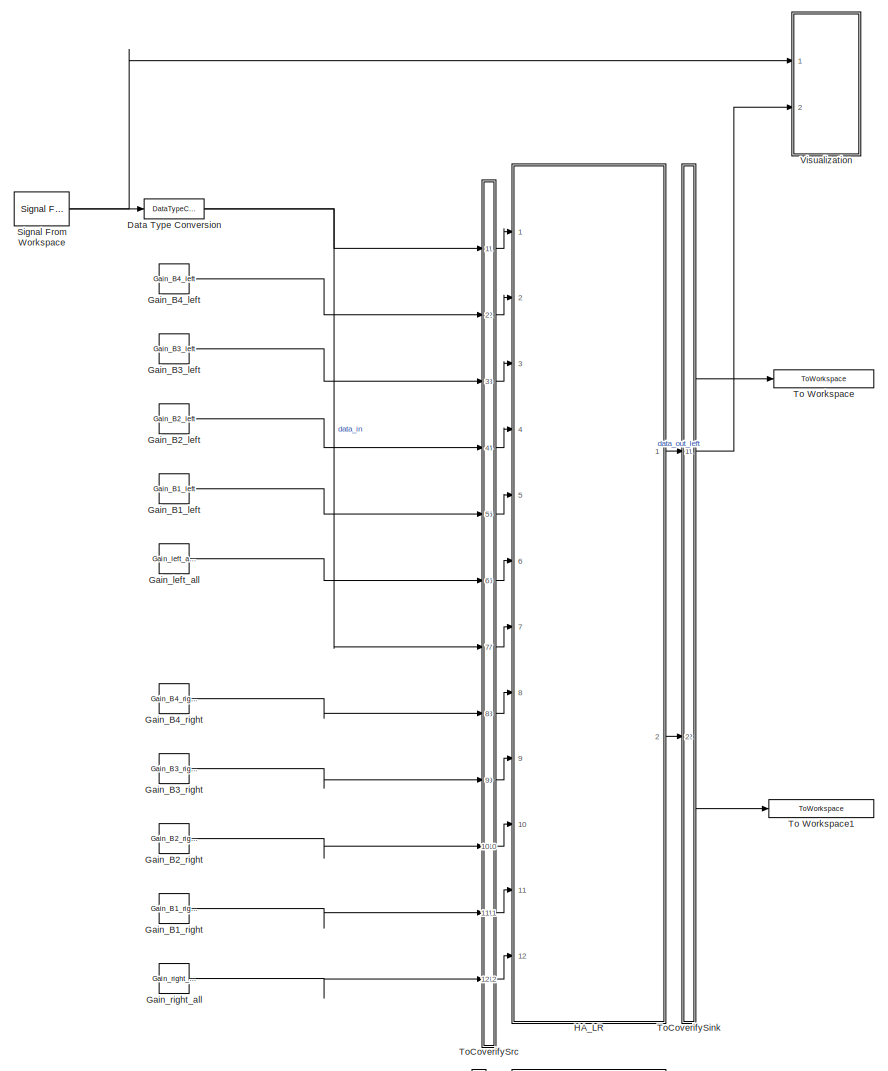
[diagram: root canvas - part 1/2, full width, top band]
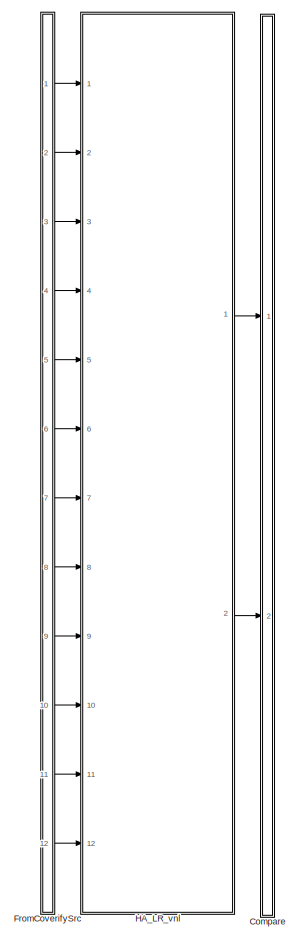
[diagram: root canvas - part 2/2, bottom center region]
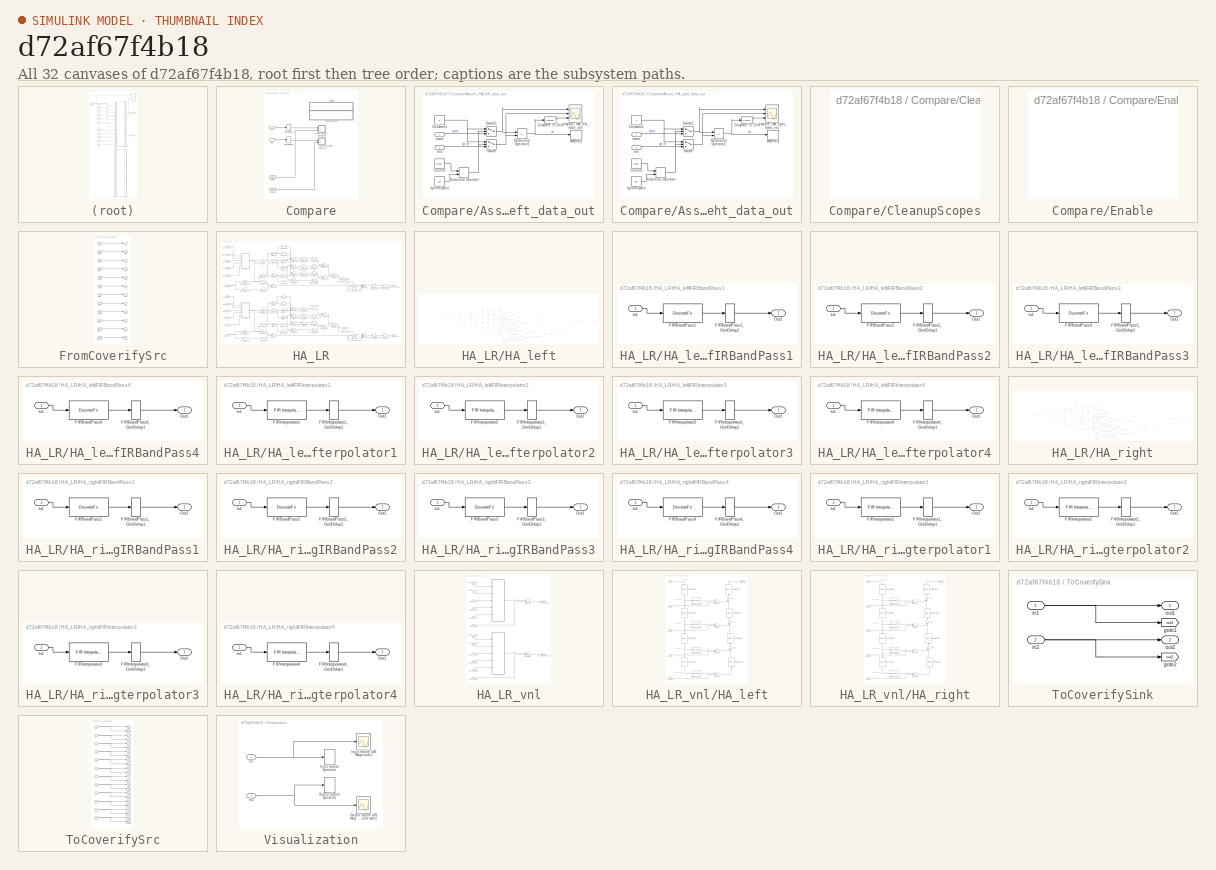
[diagram: thumbnail index - all 32 canvases of the model, root first then tree order]
MODEL slx_d72af67f4b18
KIND model
CONFIG AbsTol = auto
CONFIG EnableMultiTasking = off
CONFIG FixedStep = auto
CONFIG InitFcn = HA_sys8_init\n\n
CONFIG MaxStep = auto
CONFIG MinStep = auto
CONFIG RelTol = 1e-3
CONFIG SampleTimeConstraint = Unconstrained
CONFIG Solver = VariableStepAuto
CONFIG SolverName = VariableStepAuto
CONFIG StartTime = 0.0
CONFIG StopFcn = HA_sys8_freq_response\n
CONFIG StopTime = 10.0
BLOCK [SubSystem] Compare
  Ports = [2]
  RequestExecContextInheritance = off
BLOCK [SubSystem] Compare/Assert_HA_left_data_out
  Ports = [2]
  RequestExecContextInheritance = off
BLOCK [Assertion] Compare/Assert_HA_left_data_out/AssertEq
  StopWhenAssertionFail = off
BLOCK [Reference] Compare/Assert_HA_left_data_out/Compare To Zero  REF=simulink/Logic and Bit
Operations/Compare
To Zero
  Ports = [1, 1]
  SourceBlock = simulink/Logic and Bit\nOperations/Compare\nTo Zero
  SourceProductBaseCode = SL
  SourceProductName = Simulink
  SourceType = Compare To Zero
BLOCK [Constant] Compare/Assert_HA_left_data_out/Constant1
  OutDataTypeStr = Inherit: Inherit via back propagation
  SampleTime = -1
  Value = 0
BLOCK [Reference] Compare/Assert_HA_left_data_out/Counter  REF=simulink/Sources/Counter
Free-Running
  Ports = [0, 1]
  SourceBlock = simulink/Sources/Counter\nFree-Running
  SourceProductBaseCode = SL
  SourceProductName = Simulink
  SourceType = Counter Free-Running
BLOCK [Constant] Compare/Assert_HA_left_data_out/IgnoreCycles
  OutDataTypeStr = Inherit: Inherit via back propagation
  SampleTime = -1
  Value = 186
BLOCK [RelationalOperator] Compare/Assert_HA_left_data_out/Relational Operator
  InputSameDT = off
  Operator = <
  OutDataTypeStr = boolean
  Ports = [2, 1]
BLOCK [RelationalOperator] Compare/Assert_HA_left_data_out/Relational Operator1
  InputSameDT = off
  Operator = ==
  OutDataTypeStr = boolean
  Ports = [2, 1]
BLOCK [Switch] Compare/Assert_HA_left_data_out/Switch
  Criteria = u2 ~= 0
  InputSameDT = off
  SaturateOnIntegerOverflow = off
BLOCK [Switch] Compare/Assert_HA_left_data_out/Switch1
  Criteria = u2 ~= 0
  InputSameDT = off
  SaturateOnIntegerOverflow = off
BLOCK [Scope] Compare/Assert_HA_left_data_out/compare: HA_left_data_out
  Floating = off
  NumInputPorts = 3
  Ports = [3]
  ScopeSpecificationString = Simulink.scopes.TimeScopeBlockCfg('CurrentConfiguration', extmgr.ConfigurationSet(extmgr.Configuration('Core','General UI',true,'MessageLogAutoOpenMode','for warn/fail messages','ShowCloseAll',true,'ShowBringAllForward',true),extmgr.Configuration('Core','Source UI',true,'PlaybackToolbar',true),extmgr.Configuration('Sources','WiredSimulink',true,'PointsPerSignal',50000,'DataLoggingVariableName','Sc...<+3290ch>
BLOCK [Inport] Compare/Assert_HA_left_data_out/cosim
  IconDisplay = Port number
BLOCK [Inport] Compare/Assert_HA_left_data_out/dut
  IconDisplay = Port number
  Port = 2
BLOCK [SubSystem] Compare/Assert_HA_right_data_out
  Ports = [2]
  RequestExecContextInheritance = off
BLOCK [Assertion] Compare/Assert_HA_right_data_out/AssertEq
  StopWhenAssertionFail = off
BLOCK [Reference] Compare/Assert_HA_right_data_out/Compare To Zero  REF=simulink/Logic and Bit
Operations/Compare
To Zero
  Ports = [1, 1]
  SourceBlock = simulink/Logic and Bit\nOperations/Compare\nTo Zero
  SourceProductBaseCode = SL
  SourceProductName = Simulink
  SourceType = Compare To Zero
BLOCK [Constant] Compare/Assert_HA_right_data_out/Constant1
  OutDataTypeStr = Inherit: Inherit via back propagation
  SampleTime = -1
  Value = 0
BLOCK [Reference] Compare/Assert_HA_right_data_out/Counter  REF=simulink/Sources/Counter
Free-Running
  Ports = [0, 1]
  SourceBlock = simulink/Sources/Counter\nFree-Running
  SourceProductBaseCode = SL
  SourceProductName = Simulink
  SourceType = Counter Free-Running
BLOCK [Constant] Compare/Assert_HA_right_data_out/IgnoreCycles
  OutDataTypeStr = Inherit: Inherit via back propagation
  SampleTime = -1
  Value = 186
BLOCK [RelationalOperator] Compare/Assert_HA_right_data_out/Relational Operator
  InputSameDT = off
  Operator = <
  OutDataTypeStr = boolean
  Ports = [2, 1]
BLOCK [RelationalOperator] Compare/Assert_HA_right_data_out/Relational Operator1
  InputSameDT = off
  Operator = ==
  OutDataTypeStr = boolean
  Ports = [2, 1]
BLOCK [Switch] Compare/Assert_HA_right_data_out/Switch
  Criteria = u2 ~= 0
  InputSameDT = off
  SaturateOnIntegerOverflow = off
BLOCK [Switch] Compare/Assert_HA_right_data_out/Switch1
  Criteria = u2 ~= 0
  InputSameDT = off
  SaturateOnIntegerOverflow = off
BLOCK [Scope] Compare/Assert_HA_right_data_out/compare: HA_right_data_out
  Floating = off
  NumInputPorts = 3
  Ports = [3]
  ScopeSpecificationString = Simulink.scopes.TimeScopeBlockCfg('CurrentConfiguration', extmgr.ConfigurationSet(extmgr.Configuration('Core','General UI',true,'MessageLogAutoOpenMode','for warn/fail messages','ShowCloseAll',true,'ShowBringAllForward',true),extmgr.Configuration('Core','Source UI',true,'PlaybackToolbar',true),extmgr.Configuration('Sources','WiredSimulink',true,'PointsPerSignal',50000,'DataLoggingVariableName','Sc...<+3290ch>
BLOCK [Inport] Compare/Assert_HA_right_data_out/cosim
  IconDisplay = Port number
BLOCK [Inport] Compare/Assert_HA_right_data_out/dut
  IconDisplay = Port number
  Port = 2
BLOCK [SubSystem] Compare/CleanupScopes
  OpenFcn = blkName = gcb; %self block\nidx = regexp(blkName, '/CleanupScopes$', 'once');\nblkParent = blkName(1:idx-1);\nblks=find_system(blkParent, 'LookUnderMasks', 'all','blocktype', 'Scope');\nfor itr = 1:length(blks)\n	 hScopeCfg = get_param(blks{itr},'ScopeConfiguration');\n	 hScopeCfg.Visible = ~ hScopeCfg.Visible;\nend\ndrawnow;
  Ports = []
  RequestExecContextInheritance = off
BLOCK [SubSystem] Compare/Enable
  OpenFcn = blkName = gcb;\nidx = regexp(blkName, '/Enable$', 'once');\nblkParent = blkName(1:idx-1);\nblks=find_system(blkParent, 'LookUnderMasks', 'all','blocktype', 'Assertion');\ne = get_param(blks{1}, 'Enabled');\nif strcmp(e, 'on'), f= 'off';, else, f = 'on';, end\nfor ii=1:length(blks), set_param(blks{ii}, 'Enabled', f);, end\nset_param(gcb, 'MaskDisplay',['fprintf(message(''hdlcoder:cosim:vnl_dblclick_assert...<+47ch>
  Ports = []
  RequestExecContextInheritance = off
BLOCK [From] Compare/from1
  GotoTag = out1
  TagVisibility = global
BLOCK [From] Compare/from2
  GotoTag = out2
  TagVisibility = global
BLOCK [Inport] Compare/in1
  IconDisplay = Port number
BLOCK [Inport] Compare/in2
  IconDisplay = Port number
  Port = 2
BLOCK [Delay] Compare/pathdelay1
  DelayLength = 186
  InputPortMap = u0
  Ports = [1, 1]
BLOCK [Delay] Compare/pathdelay2
  DelayLength = 186
  InputPortMap = u0
  Ports = [1, 1]
BLOCK [DataTypeConversion] Data Type Conversion
  OutDataTypeStr = fixdt(1,32,28)
  RndMeth = Floor
  SaturateOnIntegerOverflow = off
BLOCK [SubSystem] FromCoverifySrc
  Ports = [0, 12]
  RequestExecContextInheritance = off
BLOCK [From] FromCoverifySrc/from1
  GotoTag = in1
  TagVisibility = global
BLOCK [From] FromCoverifySrc/from10
  GotoTag = in10
  TagVisibility = global
BLOCK [From] FromCoverifySrc/from11
  GotoTag = in11
  TagVisibility = global
BLOCK [From] FromCoverifySrc/from12
  GotoTag = in12
  TagVisibility = global
BLOCK [From] FromCoverifySrc/from2
  GotoTag = in2
  TagVisibility = global
BLOCK [From] FromCoverifySrc/from3
  GotoTag = in3
  TagVisibility = global
BLOCK [From] FromCoverifySrc/from4
  GotoTag = in4
  TagVisibility = global
BLOCK [From] FromCoverifySrc/from5
  GotoTag = in5
  TagVisibility = global
BLOCK [From] FromCoverifySrc/from6
  GotoTag = in6
  TagVisibility = global
BLOCK [From] FromCoverifySrc/from7
  GotoTag = in7
  TagVisibility = global
BLOCK [From] FromCoverifySrc/from8
  GotoTag = in8
  TagVisibility = global
BLOCK [From] FromCoverifySrc/from9
  GotoTag = in9
  TagVisibility = global
BLOCK [Outport] FromCoverifySrc/out1
  IconDisplay = Port number
BLOCK [Outport] FromCoverifySrc/out10
  IconDisplay = Port number
  Port = 10
BLOCK [Outport] FromCoverifySrc/out11
  IconDisplay = Port number
  Port = 11
BLOCK [Outport] FromCoverifySrc/out12
  IconDisplay = Port number
  Port = 12
BLOCK [Outport] FromCoverifySrc/out2
  IconDisplay = Port number
  Port = 2
BLOCK [Outport] FromCoverifySrc/out3
  IconDisplay = Port number
  Port = 3
BLOCK [Outport] FromCoverifySrc/out4
  IconDisplay = Port number
  Port = 4
BLOCK [Outport] FromCoverifySrc/out5
  IconDisplay = Port number
  Port = 5
BLOCK [Outport] FromCoverifySrc/out6
  IconDisplay = Port number
  Port = 6
BLOCK [Outport] FromCoverifySrc/out7
  IconDisplay = Port number
  Port = 7
BLOCK [Outport] FromCoverifySrc/out8
  IconDisplay = Port number
  Port = 8
BLOCK [Outport] FromCoverifySrc/out9
  IconDisplay = Port number
  Port = 9
BLOCK [Constant] Gain_B1_left
  LockScale = on
  OutDataTypeStr = fixdt(1,32,16)
  SampleTime = -1
  Value = Gain_B1_left
BLOCK [Constant] Gain_B1_right
  LockScale = on
  OutDataTypeStr = fixdt(1,32,16)
  SampleTime = -1
  Value = Gain_B1_right
BLOCK [Constant] Gain_B2_left
  LockScale = on
  OutDataTypeStr = fixdt(1,32,16)
  SampleTime = -1
  Value = Gain_B2_left
BLOCK [Constant] Gain_B2_right
  LockScale = on
  OutDataTypeStr = fixdt(1,32,16)
  SampleTime = -1
  Value = Gain_B2_right
BLOCK [Constant] Gain_B3_left
  LockScale = on
  OutDataTypeStr = fixdt(1,32,16)
  SampleTime = -1
  Value = Gain_B3_left
BLOCK [Constant] Gain_B3_right
  LockScale = on
  OutDataTypeStr = fixdt(1,32,16)
  SampleTime = -1
  Value = Gain_B3_right
BLOCK [Constant] Gain_B4_left
  LockScale = on
  OutDataTypeStr = fixdt(1,32,16)
  SampleTime = -1
  Value = Gain_B4_left
BLOCK [Constant] Gain_B4_right
  LockScale = on
  OutDataTypeStr = fixdt(1,32,16)
  SampleTime = -1
  Value = Gain_B4_right
BLOCK [Constant] Gain_left_all
  LockScale = on
  OutDataTypeStr = fixdt(1,32,16)
  SampleTime = -1
  Value = Gain_left_all
BLOCK [Constant] Gain_right_all
  LockScale = on
  OutDataTypeStr = fixdt(1,32,16)
  SampleTime = -1
  Value = Gain_right_all
BLOCK [SubSystem] HA_LR
  Ports = [12, 2]
  RequestExecContextInheritance = off
BLOCK [Inport] HA_LR/Gain_B1_left
  IconDisplay = Port number
  OutDataTypeStr = fixdt(1, 32, 16)
  Port = 5
  PortDimensions = 1
  SampleTime = 0.000666666666666667
BLOCK [Inport] HA_LR/Gain_B1_right
  IconDisplay = Port number
  OutDataTypeStr = fixdt(1, 32, 16)
  Port = 11
  PortDimensions = 1
  SampleTime = 0.000666666666666667
BLOCK [Inport] HA_LR/Gain_B2_left
  IconDisplay = Port number
  OutDataTypeStr = fixdt(1, 32, 16)
  Port = 4
  PortDimensions = 1
  SampleTime = 0.000333333333333333
BLOCK [Inport] HA_LR/Gain_B2_right
  IconDisplay = Port number
  OutDataTypeStr = fixdt(1, 32, 16)
  Port = 10
  PortDimensions = 1
  SampleTime = 0.000333333333333333
BLOCK [Inport] HA_LR/Gain_B3_left
  IconDisplay = Port number
  OutDataTypeStr = fixdt(1, 32, 16)
  Port = 3
  PortDimensions = 1
  SampleTime = 0.000166666666666667
BLOCK [Inport] HA_LR/Gain_B3_right
  IconDisplay = Port number
  OutDataTypeStr = fixdt(1, 32, 16)
  Port = 9
  PortDimensions = 1
  SampleTime = 0.000166666666666667
BLOCK [Inport] HA_LR/Gain_B4_left
  IconDisplay = Port number
  OutDataTypeStr = fixdt(1, 32, 16)
  Port = 2
  PortDimensions = 1
  SampleTime = 8.33333333333333e-05
BLOCK [Inport] HA_LR/Gain_B4_right
  IconDisplay = Port number
  OutDataTypeStr = fixdt(1, 32, 16)
  Port = 8
  PortDimensions = 1
  SampleTime = 8.33333333333333e-05
BLOCK [Inport] HA_LR/Gain_all_left
  IconDisplay = Port number
  OutDataTypeStr = fixdt(1, 32, 16)
  Port = 6
  PortDimensions = 1
  SampleTime = 2.08333333333333e-05
BLOCK [Inport] HA_LR/Gain_all_right
  IconDisplay = Port number
  OutDataTypeStr = fixdt(1, 32, 16)
  Port = 12
  PortDimensions = 1
  SampleTime = 2.08333333333333e-05
BLOCK [DataTypeConversion] HA_LR/Gain_left_in0_dtc
  ConvertRealWorld = Stored Integer (SI)
  OutDataTypeStr = fixdt(0, 36, 0)
  RndMeth = Floor
  SampleTime = 2.08333333333333e-05
  SaturateOnIntegerOverflow = off
BLOCK [Abs] HA_LR/Gain_left_in0_dtc_in_abs
  OutDataTypeStr = fixdt(0, 32, 28)
  SampleTime = 2.08333333333333e-05
  SaturateOnIntegerOverflow = off
BLOCK [DataTypeConversion] HA_LR/Gain_left_in1_dtc
  ConvertRealWorld = Stored Integer (SI)
  OutDataTypeStr = fixdt(0, 36, 0)
  RndMeth = Floor
  SampleTime = 2.08333333333333e-05
  SaturateOnIntegerOverflow = off
BLOCK [Abs] HA_LR/Gain_left_in1_dtc_in_abs
  OutDataTypeStr = fixdt(0, 32, 16)
  SampleTime = 2.08333333333333e-05
  SaturateOnIntegerOverflow = off
BLOCK [Sum] HA_LR/Gain_left_split_add
  InputSameDT = off
  OutDataTypeStr = fixdt(0, 65, 0)
  Ports = [2, 1]
  SampleTime = 2.08333333333333e-05
  SaturateOnIntegerOverflow = off
BLOCK [Sum] HA_LR/Gain_left_split_add1
  InputSameDT = off
  OutDataTypeStr = fixdt(0, 65, 0)
  Ports = [2, 1]
  SampleTime = 2.08333333333333e-05
  SaturateOnIntegerOverflow = off
BLOCK [Sum] HA_LR/Gain_left_split_add2
  InputSameDT = off
  OutDataTypeStr = fixdt(0, 66, 0)
  Ports = [2, 1]
  SampleTime = 2.08333333333333e-05
  SaturateOnIntegerOverflow = off
BLOCK [DataTypeConversion] HA_LR/Gain_left_split_add_out_dtc
  OutDataTypeStr = fixdt(1, 32, 28)
  RndMeth = Floor
  SampleTime = 2.08333333333333e-05
BLOCK [DataTypeConversion] HA_LR/Gain_left_split_add_out_dtc1
  ConvertRealWorld = Stored Integer (SI)
  OutDataTypeStr = fixdt(1, 64, 44)
  RndMeth = Floor
  SampleTime = 2.08333333333333e-05
  SaturateOnIntegerOverflow = off
BLOCK [DataTypeConversion] HA_LR/Gain_left_split_add_out_dtc2
  OutDataTypeStr = fixdt(1, 66, 0)
  RndMeth = Floor
  SampleTime = 2.08333333333333e-05
  SaturateOnIntegerOverflow = off
BLOCK [Product] HA_LR/Gain_left_split_mul
  InputSameDT = off
  Inputs = **
  OutDataTypeStr = fixdt(0, 28, 0)
  Ports = [2, 1]
  RndMeth = Floor
  SampleTime = 2.08333333333333e-05
  SaturateOnIntegerOverflow = off
BLOCK [Product] HA_LR/Gain_left_split_mul1
  InputSameDT = off
  Inputs = **
  OutDataTypeStr = uint32
  Ports = [2, 1]
  RndMeth = Floor
  SampleTime = 2.08333333333333e-05
  SaturateOnIntegerOverflow = off
BLOCK [Product] HA_LR/Gain_left_split_mul2
  InputSameDT = off
  Inputs = **
  OutDataTypeStr = uint32
  Ports = [2, 1]
  RndMeth = Floor
  SampleTime = 2.08333333333333e-05
  SaturateOnIntegerOverflow = off
BLOCK [Product] HA_LR/Gain_left_split_mul3
  InputSameDT = off
  Inputs = **
  OutDataTypeStr = fixdt(0, 36, 0)
  Ports = [2, 1]
  RndMeth = Floor
  SampleTime = 2.08333333333333e-05
  SaturateOnIntegerOverflow = off
BLOCK [DataTypeConversion] HA_LR/Gain_left_split_mul_out_dtc
  OutDataTypeStr = fixdt(0, 64, 0)
  RndMeth = Floor
  SampleTime = 2.08333333333333e-05
  SaturateOnIntegerOverflow = off
BLOCK [DataTypeConversion] HA_LR/Gain_left_split_mul_out_dtc1
  OutDataTypeStr = fixdt(0, 64, 0)
  RndMeth = Floor
  SampleTime = 2.08333333333333e-05
  SaturateOnIntegerOverflow = off
BLOCK [DataTypeConversion] HA_LR/Gain_left_split_mul_out_dtc2
  OutDataTypeStr = fixdt(0, 64, 0)
  RndMeth = Floor
  SampleTime = 2.08333333333333e-05
  SaturateOnIntegerOverflow = off
BLOCK [DataTypeConversion] HA_LR/Gain_left_split_mul_out_dtc3
  OutDataTypeStr = fixdt(0, 64, 0)
  RndMeth = Floor
  SampleTime = 2.08333333333333e-05
  SaturateOnIntegerOverflow = off
BLOCK [ArithShift] HA_LR/Gain_left_split_shift
  BitShiftNumber = -36
  InputPortMap = u0
  Ports = [1, 1]
BLOCK [ArithShift] HA_LR/Gain_left_split_shift1
  BitShiftNumber = -18
  InputPortMap = u0
  Ports = [1, 1]
BLOCK [ArithShift] HA_LR/Gain_left_split_shift2
  BitShiftNumber = -18
  InputPortMap = u0
  Ports = [1, 1]
BLOCK [DataTypeConversion] HA_LR/Gain_right_in0_dtc
  ConvertRealWorld = Stored Integer (SI)
  OutDataTypeStr = fixdt(0, 36, 0)
  RndMeth = Floor
  SampleTime = 2.08333333333333e-05
  SaturateOnIntegerOverflow = off
BLOCK [Abs] HA_LR/Gain_right_in0_dtc_in_abs
  OutDataTypeStr = fixdt(0, 32, 28)
  SampleTime = 2.08333333333333e-05
  SaturateOnIntegerOverflow = off
BLOCK [DataTypeConversion] HA_LR/Gain_right_in1_dtc
  ConvertRealWorld = Stored Integer (SI)
  OutDataTypeStr = fixdt(0, 36, 0)
  RndMeth = Floor
  SampleTime = 2.08333333333333e-05
  SaturateOnIntegerOverflow = off
BLOCK [Abs] HA_LR/Gain_right_in1_dtc_in_abs
  OutDataTypeStr = fixdt(0, 32, 16)
  SampleTime = 2.08333333333333e-05
  SaturateOnIntegerOverflow = off
BLOCK [Sum] HA_LR/Gain_right_split_add
  InputSameDT = off
  OutDataTypeStr = fixdt(0, 65, 0)
  Ports = [2, 1]
  SampleTime = 2.08333333333333e-05
  SaturateOnIntegerOverflow = off
BLOCK [Sum] HA_LR/Gain_right_split_add1
  InputSameDT = off
  OutDataTypeStr = fixdt(0, 65, 0)
  Ports = [2, 1]
  SampleTime = 2.08333333333333e-05
  SaturateOnIntegerOverflow = off
BLOCK [Sum] HA_LR/Gain_right_split_add2
  InputSameDT = off
  OutDataTypeStr = fixdt(0, 66, 0)
  Ports = [2, 1]
  SampleTime = 2.08333333333333e-05
  SaturateOnIntegerOverflow = off
BLOCK [DataTypeConversion] HA_LR/Gain_right_split_add_out_dtc
  OutDataTypeStr = fixdt(1, 32, 28)
  RndMeth = Floor
  SampleTime = 2.08333333333333e-05
BLOCK [DataTypeConversion] HA_LR/Gain_right_split_add_out_dtc1
  ConvertRealWorld = Stored Integer (SI)
  OutDataTypeStr = fixdt(1, 64, 44)
  RndMeth = Floor
  SampleTime = 2.08333333333333e-05
  SaturateOnIntegerOverflow = off
BLOCK [DataTypeConversion] HA_LR/Gain_right_split_add_out_dtc2
  OutDataTypeStr = fixdt(1, 66, 0)
  RndMeth = Floor
  SampleTime = 2.08333333333333e-05
  SaturateOnIntegerOverflow = off
BLOCK [Product] HA_LR/Gain_right_split_mul
  InputSameDT = off
  Inputs = **
  OutDataTypeStr = fixdt(0, 28, 0)
  Ports = [2, 1]
  RndMeth = Floor
  SampleTime = 2.08333333333333e-05
  SaturateOnIntegerOverflow = off
BLOCK [Product] HA_LR/Gain_right_split_mul1
  InputSameDT = off
  Inputs = **
  OutDataTypeStr = uint32
  Ports = [2, 1]
  RndMeth = Floor
  SampleTime = 2.08333333333333e-05
  SaturateOnIntegerOverflow = off
BLOCK [Product] HA_LR/Gain_right_split_mul2
  InputSameDT = off
  Inputs = **
  OutDataTypeStr = uint32
  Ports = [2, 1]
  RndMeth = Floor
  SampleTime = 2.08333333333333e-05
  SaturateOnIntegerOverflow = off
BLOCK [Product] HA_LR/Gain_right_split_mul3
  InputSameDT = off
  Inputs = **
  OutDataTypeStr = fixdt(0, 36, 0)
  Ports = [2, 1]
  RndMeth = Floor
  SampleTime = 2.08333333333333e-05
  SaturateOnIntegerOverflow = off
BLOCK [DataTypeConversion] HA_LR/Gain_right_split_mul_out_dtc
  OutDataTypeStr = fixdt(0, 64, 0)
  RndMeth = Floor
  SampleTime = 2.08333333333333e-05
  SaturateOnIntegerOverflow = off
BLOCK [DataTypeConversion] HA_LR/Gain_right_split_mul_out_dtc1
  OutDataTypeStr = fixdt(0, 64, 0)
  RndMeth = Floor
  SampleTime = 2.08333333333333e-05
  SaturateOnIntegerOverflow = off
BLOCK [DataTypeConversion] HA_LR/Gain_right_split_mul_out_dtc2
  OutDataTypeStr = fixdt(0, 64, 0)
  RndMeth = Floor
  SampleTime = 2.08333333333333e-05
  SaturateOnIntegerOverflow = off
BLOCK [DataTypeConversion] HA_LR/Gain_right_split_mul_out_dtc3
  OutDataTypeStr = fixdt(0, 64, 0)
  RndMeth = Floor
  SampleTime = 2.08333333333333e-05
  SaturateOnIntegerOverflow = off
BLOCK [ArithShift] HA_LR/Gain_right_split_shift
  BitShiftNumber = -36
  InputPortMap = u0
  Ports = [1, 1]
BLOCK [ArithShift] HA_LR/Gain_right_split_shift1
  BitShiftNumber = -18
  InputPortMap = u0
  Ports = [1, 1]
BLOCK [ArithShift] HA_LR/Gain_right_split_shift2
  BitShiftNumber = -18
  InputPortMap = u0
  Ports = [1, 1]
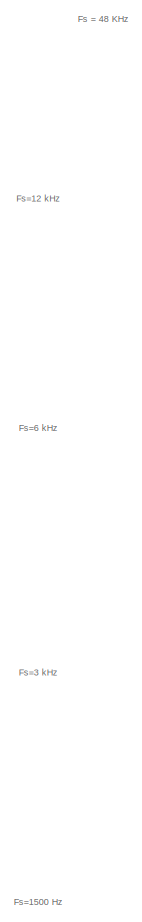
[diagram: HA_LR/HA_left - part 1/6, top left region]
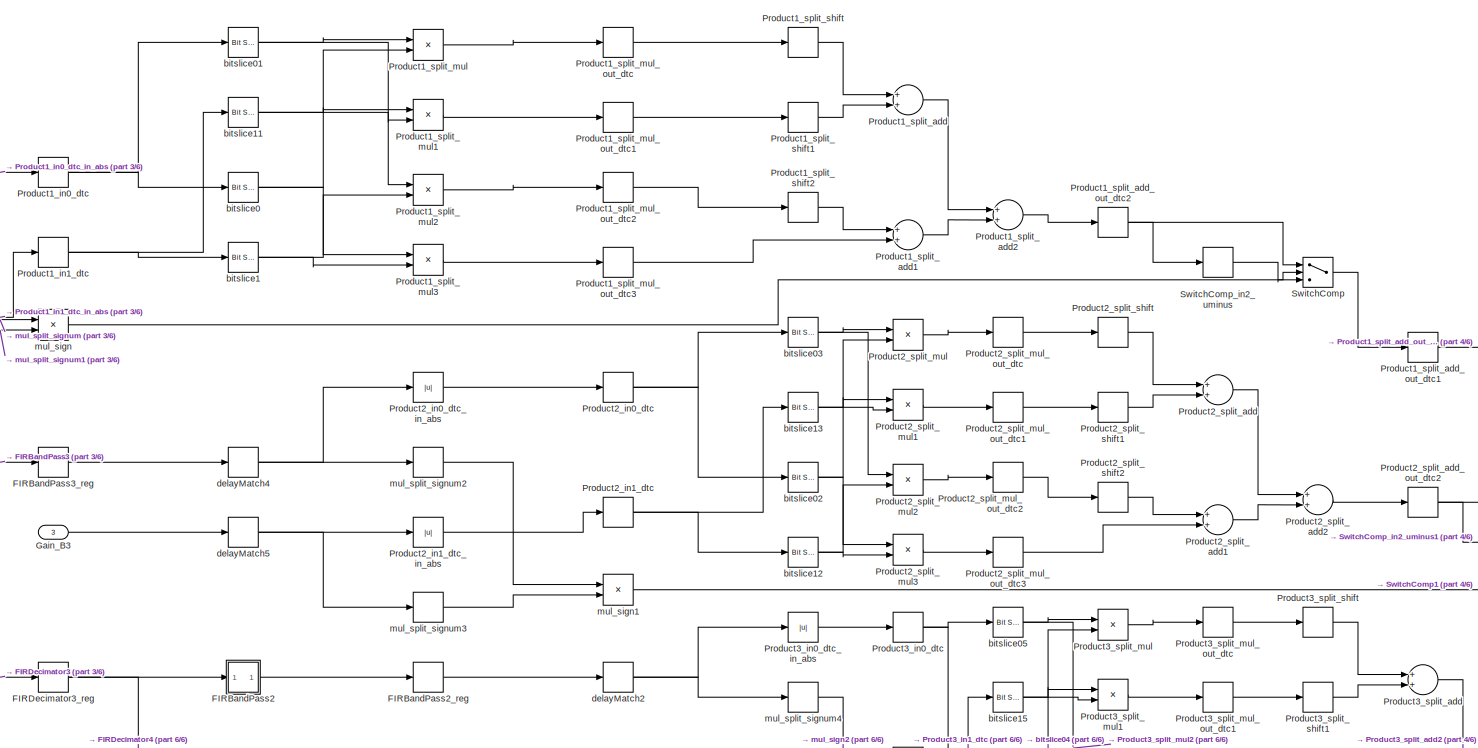
[diagram: HA_LR/HA_left - part 2/6, central region]
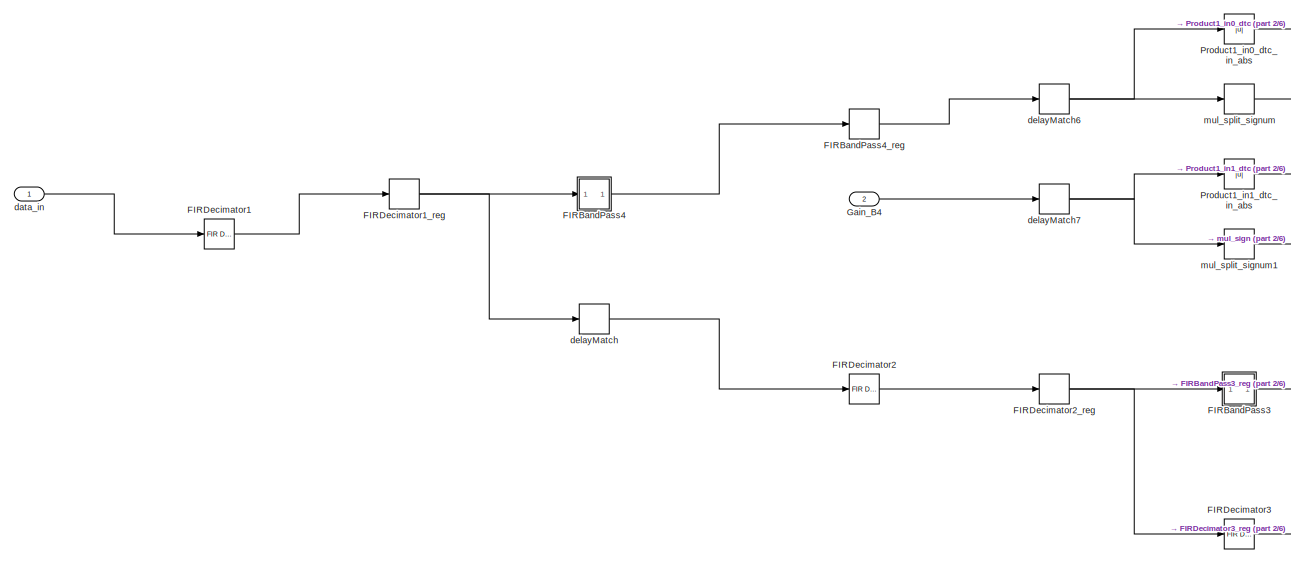
[diagram: HA_LR/HA_left - part 3/6, middle left region]
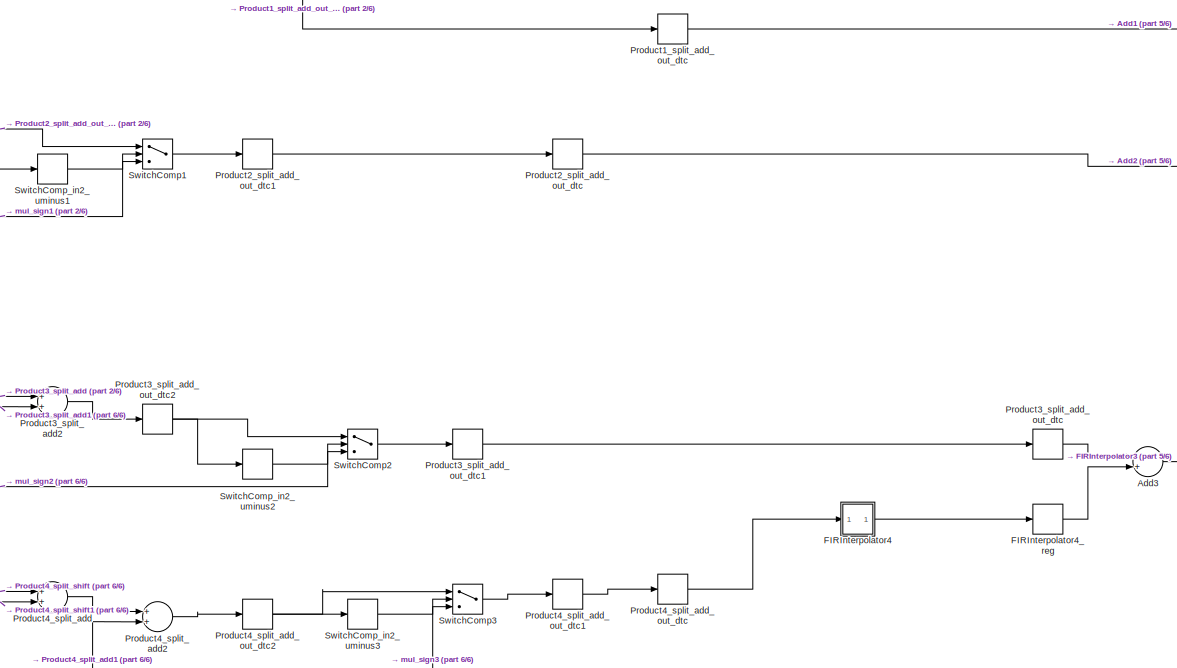
[diagram: HA_LR/HA_left - part 4/6, bottom center region]
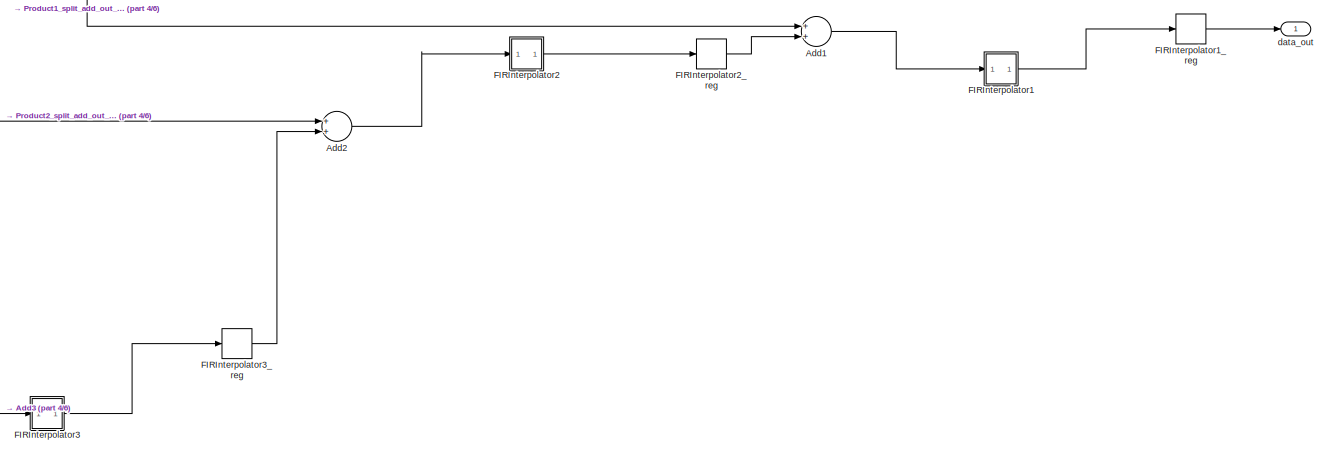
[diagram: HA_LR/HA_left - part 5/6, middle right region]
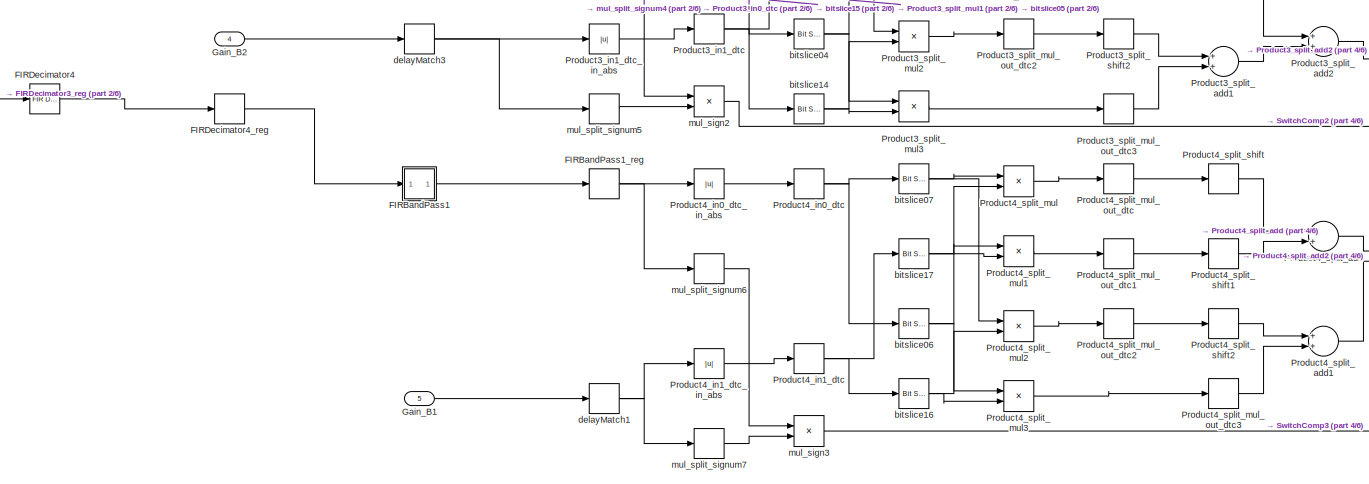
[diagram: HA_LR/HA_left - part 6/6, bottom center region]
BLOCK [SubSystem] HA_LR/HA_left
  Ports = [5, 1]
  RequestExecContextInheritance = off
BLOCK [Sum] HA_LR/HA_left/Add1
  AccumDataTypeStr = fixdt(1, 33, 28)
  InputSameDT = off
  OutDataTypeStr = fixdt(1, 33, 28)
  Ports = [2, 1]
  SampleTime = 8.33333333333333e-05
BLOCK [Sum] HA_LR/HA_left/Add2
  AccumDataTypeStr = fixdt(1, 33, 28)
  InputSameDT = off
  OutDataTypeStr = fixdt(1, 33, 28)
  Ports = [2, 1]
  SampleTime = 0.000166666666666667
BLOCK [Sum] HA_LR/HA_left/Add3
  AccumDataTypeStr = fixdt(1, 33, 28)
  InputSameDT = off
  OutDataTypeStr = fixdt(1, 33, 28)
  Ports = [2, 1]
  SampleTime = 0.000333333333333333
BLOCK [SubSystem] HA_LR/HA_left/FIRBandPass1
  Ports = [1, 1]
  RequestExecContextInheritance = off
BLOCK [DiscreteFir] HA_LR/HA_left/FIRBandPass1/FIRBandPass1
  AccumDataTypeStr = fixdt(1,65,60)
  CoefDataTypeStr = fixdt(1,32,32)
  Coefficients = FIRBandPass1.FIR_coefficients
  InputPortMap = u0
  OutDataTypeStr = fixdt(1,32,28)
  OutputPortMap = o0
  Ports = [1, 1]
  ProductDataTypeStr = fixdt(1,63,60)
  SaturateOnIntegerOverflow = on
BLOCK [Delay] HA_LR/HA_left/FIRBandPass1/FIRBandPass1_GenDelay1
  DelayLength = 1
  InputPortMap = u0
  InputProcessing = Inherited
  Ports = [1, 1]
BLOCK [Inport] HA_LR/HA_left/FIRBandPass1/In1
  IconDisplay = Port number
BLOCK [Outport] HA_LR/HA_left/FIRBandPass1/Out1
  IconDisplay = Port number
BLOCK [Delay] HA_LR/HA_left/FIRBandPass1_reg
  DelayLength = double(1)
  InitialCondition = 0
  InputPortMap = u0
  InputProcessing = Inherited
  Ports = [1, 1]
  SampleTime = 0.000666666666666667
BLOCK [SubSystem] HA_LR/HA_left/FIRBandPass2
  Ports = [1, 1]
  RequestExecContextInheritance = off
BLOCK [DiscreteFir] HA_LR/HA_left/FIRBandPass2/FIRBandPass2
  AccumDataTypeStr = fixdt(1,65,60)
  CoefDataTypeStr = fixdt(1,32,32)
  Coefficients = FIRBandPass2.FIR_coefficients
  InputPortMap = u0
  OutDataTypeStr = fixdt(1,32,28)
  OutputPortMap = o0
  Ports = [1, 1]
  ProductDataTypeStr = fixdt(1,63,60)
  SaturateOnIntegerOverflow = on
BLOCK [Delay] HA_LR/HA_left/FIRBandPass2/FIRBandPass2_GenDelay1
  DelayLength = 1
  InputPortMap = u0
  InputProcessing = Inherited
  Ports = [1, 1]
BLOCK [Inport] HA_LR/HA_left/FIRBandPass2/In1
  IconDisplay = Port number
BLOCK [Outport] HA_LR/HA_left/FIRBandPass2/Out1
  IconDisplay = Port number
BLOCK [Delay] HA_LR/HA_left/FIRBandPass2_reg
  DelayLength = double(1)
  InitialCondition = 0
  InputPortMap = u0
  InputProcessing = Inherited
  Ports = [1, 1]
  SampleTime = 0.000333333333333333
BLOCK [SubSystem] HA_LR/HA_left/FIRBandPass3
  Ports = [1, 1]
  RequestExecContextInheritance = off
BLOCK [DiscreteFir] HA_LR/HA_left/FIRBandPass3/FIRBandPass3
  AccumDataTypeStr = fixdt(1,65,60)
  CoefDataTypeStr = fixdt(1,32,32)
  Coefficients = FIRBandPass3.FIR_coefficients
  InputPortMap = u0
  OutDataTypeStr = fixdt(1,32,28)
  OutputPortMap = o0
  Ports = [1, 1]
  ProductDataTypeStr = fixdt(1,63,60)
  SaturateOnIntegerOverflow = on
BLOCK [Delay] HA_LR/HA_left/FIRBandPass3/FIRBandPass3_GenDelay1
  DelayLength = 1
  InputPortMap = u0
  InputProcessing = Inherited
  Ports = [1, 1]
BLOCK [Inport] HA_LR/HA_left/FIRBandPass3/In1
  IconDisplay = Port number
BLOCK [Outport] HA_LR/HA_left/FIRBandPass3/Out1
  IconDisplay = Port number
BLOCK [Delay] HA_LR/HA_left/FIRBandPass3_reg
  DelayLength = double(1)
  InitialCondition = 0
  InputPortMap = u0
  InputProcessing = Inherited
  Ports = [1, 1]
  SampleTime = 0.000166666666666667
BLOCK [SubSystem] HA_LR/HA_left/FIRBandPass4
  Ports = [1, 1]
  RequestExecContextInheritance = off
BLOCK [DiscreteFir] HA_LR/HA_left/FIRBandPass4/FIRBandPass4
  AccumDataTypeStr = fixdt(1,65,60)
  CoefDataTypeStr = fixdt(1,32,32)
  Coefficients = FIRBandPass4.FIR_coefficients
  InputPortMap = u0
  OutDataTypeStr = fixdt(1,32,28)
  OutputPortMap = o0
  Ports = [1, 1]
  ProductDataTypeStr = fixdt(1,63,60)
  SaturateOnIntegerOverflow = on
BLOCK [Delay] HA_LR/HA_left/FIRBandPass4/FIRBandPass4_GenDelay1
  DelayLength = 1
  InputPortMap = u0
  InputProcessing = Inherited
  Ports = [1, 1]
BLOCK [Inport] HA_LR/HA_left/FIRBandPass4/In1
  IconDisplay = Port number
BLOCK [Outport] HA_LR/HA_left/FIRBandPass4/Out1
  IconDisplay = Port number
BLOCK [Delay] HA_LR/HA_left/FIRBandPass4_reg
  DelayLength = double(1)
  InitialCondition = 0
  InputPortMap = u0
  InputProcessing = Inherited
  Ports = [1, 1]
  SampleTime = 8.33333333333333e-05
BLOCK [Reference] HA_LR/HA_left/FIRDecimator1  REF=dspmlti4/FIR
Decimation
  Ports = [1, 1]
  SourceBlock = dspmlti4/FIR\nDecimation
  SourceProductBaseCode = DS
  SourceProductName = DSP System Toolbox
  SourceType = FIR Decimation
  UserDataPersistent = on
BLOCK [Delay] HA_LR/HA_left/FIRDecimator1_reg
  DelayLength = double(1)
  InitialCondition = 0
  InputPortMap = u0
  InputProcessing = Inherited
  Ports = [1, 1]
  SampleTime = 8.33333333333333e-05
BLOCK [Reference] HA_LR/HA_left/FIRDecimator2  REF=dspmlti4/FIR
Decimation
  Ports = [1, 1]
  SourceBlock = dspmlti4/FIR\nDecimation
  SourceProductBaseCode = DS
  SourceProductName = DSP System Toolbox
  SourceType = FIR Decimation
  UserDataPersistent = on
BLOCK [Delay] HA_LR/HA_left/FIRDecimator2_reg
  DelayLength = double(1)
  InitialCondition = 0
  InputPortMap = u0
  InputProcessing = Inherited
  Ports = [1, 1]
  SampleTime = 0.000166666666666667
BLOCK [Reference] HA_LR/HA_left/FIRDecimator3  REF=dspmlti4/FIR
Decimation
  Ports = [1, 1]
  SourceBlock = dspmlti4/FIR\nDecimation
  SourceProductBaseCode = DS
  SourceProductName = DSP System Toolbox
  SourceType = FIR Decimation
  UserDataPersistent = on
BLOCK [Delay] HA_LR/HA_left/FIRDecimator3_reg
  DelayLength = double(1)
  InitialCondition = 0
  InputPortMap = u0
  InputProcessing = Inherited
  Ports = [1, 1]
  SampleTime = 0.000333333333333333
BLOCK [Reference] HA_LR/HA_left/FIRDecimator4  REF=dspmlti4/FIR
Decimation
  Ports = [1, 1]
  SourceBlock = dspmlti4/FIR\nDecimation
  SourceProductBaseCode = DS
  SourceProductName = DSP System Toolbox
  SourceType = FIR Decimation
  UserDataPersistent = on
BLOCK [Delay] HA_LR/HA_left/FIRDecimator4_reg
  DelayLength = double(1)
  InitialCondition = 0
  InputPortMap = u0
  InputProcessing = Inherited
  Ports = [1, 1]
  SampleTime = 0.000666666666666667
BLOCK [SubSystem] HA_LR/HA_left/FIRInterpolator1
  CopyFcn = ud = get_param(gcbh,'UserData');\nif isfield(ud,'fvtool')\n  ud = rmfield(ud,'fvtool');\n  set_param(gcbh,'UserData',ud);\nend\nclear ud;
  DeleteFcn = dspLinkFVTool2Mask(gcbh,'close')
  LoadFcn = dspDeleteFVToolLinkFromMask(gcbh);
  Ports = [1, 1]
  PostSaveFcn = dspRestoreLinkFVTool2Mask(gcbh);
  PreSaveFcn = dspUnlinkFVToolFromMask(gcbh);
  RequestExecContextInheritance = off
  UserDataPersistent = on
BLOCK [Reference] HA_LR/HA_left/FIRInterpolator1/FIRInterpolator1  REF=dspmlti4/FIR
Interpolation
  Ports = [1, 1]
  SourceBlock = dspmlti4/FIR\nInterpolation
  SourceProductBaseCode = DS
  SourceProductName = DSP System Toolbox
  SourceType = FIR Interpolation
  UserDataPersistent = on
BLOCK [Delay] HA_LR/HA_left/FIRInterpolator1/FIRInterpolator1_GenDelay1
  DelayLength = 1
  InputPortMap = u0
  InputProcessing = Inherited
  Ports = [1, 1]
BLOCK [Inport] HA_LR/HA_left/FIRInterpolator1/In1
  IconDisplay = Port number
BLOCK [Outport] HA_LR/HA_left/FIRInterpolator1/Out1
  IconDisplay = Port number
BLOCK [Delay] HA_LR/HA_left/FIRInterpolator1_reg
  DelayLength = double(1)
  InitialCondition = 0
  InputPortMap = u0
  InputProcessing = Inherited
  Ports = [1, 1]
  SampleTime = 2.08333333333333e-05
BLOCK [SubSystem] HA_LR/HA_left/FIRInterpolator2
  CopyFcn = ud = get_param(gcbh,'UserData');\nif isfield(ud,'fvtool')\n  ud = rmfield(ud,'fvtool');\n  set_param(gcbh,'UserData',ud);\nend\nclear ud;
  DeleteFcn = dspLinkFVTool2Mask(gcbh,'close')
  LoadFcn = dspDeleteFVToolLinkFromMask(gcbh);
  Ports = [1, 1]
  PostSaveFcn = dspRestoreLinkFVTool2Mask(gcbh);
  PreSaveFcn = dspUnlinkFVToolFromMask(gcbh);
  RequestExecContextInheritance = off
  UserDataPersistent = on
BLOCK [Reference] HA_LR/HA_left/FIRInterpolator2/FIRInterpolator2  REF=dspmlti4/FIR
Interpolation
  Ports = [1, 1]
  SourceBlock = dspmlti4/FIR\nInterpolation
  SourceProductBaseCode = DS
  SourceProductName = DSP System Toolbox
  SourceType = FIR Interpolation
  UserDataPersistent = on
BLOCK [Delay] HA_LR/HA_left/FIRInterpolator2/FIRInterpolator2_GenDelay1
  DelayLength = 1
  InputPortMap = u0
  InputProcessing = Inherited
  Ports = [1, 1]
BLOCK [Inport] HA_LR/HA_left/FIRInterpolator2/In1
  IconDisplay = Port number
BLOCK [Outport] HA_LR/HA_left/FIRInterpolator2/Out1
  IconDisplay = Port number
BLOCK [Delay] HA_LR/HA_left/FIRInterpolator2_reg
  DelayLength = double(1)
  InitialCondition = 0
  InputPortMap = u0
  InputProcessing = Inherited
  Ports = [1, 1]
  SampleTime = 8.33333333333333e-05
BLOCK [SubSystem] HA_LR/HA_left/FIRInterpolator3
  CopyFcn = ud = get_param(gcbh,'UserData');\nif isfield(ud,'fvtool')\n  ud = rmfield(ud,'fvtool');\n  set_param(gcbh,'UserData',ud);\nend\nclear ud;
  DeleteFcn = dspLinkFVTool2Mask(gcbh,'close')
  LoadFcn = dspDeleteFVToolLinkFromMask(gcbh);
  Ports = [1, 1]
  PostSaveFcn = dspRestoreLinkFVTool2Mask(gcbh);
  PreSaveFcn = dspUnlinkFVToolFromMask(gcbh);
  RequestExecContextInheritance = off
  UserDataPersistent = on
BLOCK [Reference] HA_LR/HA_left/FIRInterpolator3/FIRInterpolator3  REF=dspmlti4/FIR
Interpolation
  Ports = [1, 1]
  SourceBlock = dspmlti4/FIR\nInterpolation
  SourceProductBaseCode = DS
  SourceProductName = DSP System Toolbox
  SourceType = FIR Interpolation
  UserDataPersistent = on
BLOCK [Delay] HA_LR/HA_left/FIRInterpolator3/FIRInterpolator3_GenDelay1
  DelayLength = 1
  InputPortMap = u0
  InputProcessing = Inherited
  Ports = [1, 1]
BLOCK [Inport] HA_LR/HA_left/FIRInterpolator3/In1
  IconDisplay = Port number
BLOCK [Outport] HA_LR/HA_left/FIRInterpolator3/Out1
  IconDisplay = Port number
BLOCK [Delay] HA_LR/HA_left/FIRInterpolator3_reg
  DelayLength = double(1)
  InitialCondition = 0
  InputPortMap = u0
  InputProcessing = Inherited
  Ports = [1, 1]
  SampleTime = 0.000166666666666667
BLOCK [SubSystem] HA_LR/HA_left/FIRInterpolator4
  CopyFcn = ud = get_param(gcbh,'UserData');\nif isfield(ud,'fvtool')\n  ud = rmfield(ud,'fvtool');\n  set_param(gcbh,'UserData',ud);\nend\nclear ud;
  DeleteFcn = dspLinkFVTool2Mask(gcbh,'close')
  LoadFcn = dspDeleteFVToolLinkFromMask(gcbh);
  Ports = [1, 1]
  PostSaveFcn = dspRestoreLinkFVTool2Mask(gcbh);
  PreSaveFcn = dspUnlinkFVToolFromMask(gcbh);
  RequestExecContextInheritance = off
  UserDataPersistent = on
BLOCK [Reference] HA_LR/HA_left/FIRInterpolator4/FIRInterpolator4  REF=dspmlti4/FIR
Interpolation
  Ports = [1, 1]
  SourceBlock = dspmlti4/FIR\nInterpolation
  SourceProductBaseCode = DS
  SourceProductName = DSP System Toolbox
  SourceType = FIR Interpolation
  UserDataPersistent = on
BLOCK [Delay] HA_LR/HA_left/FIRInterpolator4/FIRInterpolator4_GenDelay1
  DelayLength = 1
  InputPortMap = u0
  InputProcessing = Inherited
  Ports = [1, 1]
BLOCK [Inport] HA_LR/HA_left/FIRInterpolator4/In1
  IconDisplay = Port number
BLOCK [Outport] HA_LR/HA_left/FIRInterpolator4/Out1
  IconDisplay = Port number
BLOCK [Delay] HA_LR/HA_left/FIRInterpolator4_reg
  DelayLength = double(1)
  InitialCondition = 0
  InputPortMap = u0
  InputProcessing = Inherited
  Ports = [1, 1]
  SampleTime = 0.000333333333333333
BLOCK [Inport] HA_LR/HA_left/Gain_B1
  IconDisplay = Port number
  LockScale = on
  OutDataTypeStr = fixdt(1,32,16)
  Port = 5
  PortDimensions = 1
  SampleTime = 0.000666666666666667
BLOCK [Inport] HA_LR/HA_left/Gain_B2
  IconDisplay = Port number
  LockScale = on
  OutDataTypeStr = fixdt(1,32,16)
  Port = 4
  PortDimensions = 1
  SampleTime = 0.000333333333333333
BLOCK [Inport] HA_LR/HA_left/Gain_B3
  IconDisplay = Port number
  LockScale = on
  OutDataTypeStr = fixdt(1,32,16)
  Port = 3
  PortDimensions = 1
  SampleTime = 0.000166666666666667
BLOCK [Inport] HA_LR/HA_left/Gain_B4
  IconDisplay = Port number
  LockScale = on
  OutDataTypeStr = fixdt(1,32,16)
  Port = 2
  PortDimensions = 1
  SampleTime = 8.33333333333333e-05
BLOCK [DataTypeConversion] HA_LR/HA_left/Product1_in0_dtc
  ConvertRealWorld = Stored Integer (SI)
  OutDataTypeStr = fixdt(0, 36, 0)
  RndMeth = Floor
  SampleTime = 8.33333333333333e-05
  SaturateOnIntegerOverflow = off
BLOCK [Abs] HA_LR/HA_left/Product1_in0_dtc_in_abs
  OutDataTypeStr = fixdt(0, 32, 28)
  SampleTime = 8.33333333333333e-05
  SaturateOnIntegerOverflow = off
BLOCK [DataTypeConversion] HA_LR/HA_left/Product1_in1_dtc
  ConvertRealWorld = Stored Integer (SI)
  OutDataTypeStr = fixdt(0, 36, 0)
  RndMeth = Floor
  SampleTime = 8.33333333333333e-05
  SaturateOnIntegerOverflow = off
BLOCK [Abs] HA_LR/HA_left/Product1_in1_dtc_in_abs
  OutDataTypeStr = fixdt(0, 32, 16)
  SampleTime = 8.33333333333333e-05
  SaturateOnIntegerOverflow = off
BLOCK [Sum] HA_LR/HA_left/Product1_split_add
  InputSameDT = off
  OutDataTypeStr = fixdt(0, 65, 0)
  Ports = [2, 1]
  SampleTime = 8.33333333333333e-05
  SaturateOnIntegerOverflow = off
BLOCK [Sum] HA_LR/HA_left/Product1_split_add1
  InputSameDT = off
  OutDataTypeStr = fixdt(0, 65, 0)
  Ports = [2, 1]
  SampleTime = 8.33333333333333e-05
  SaturateOnIntegerOverflow = off
BLOCK [Sum] HA_LR/HA_left/Product1_split_add2
  InputSameDT = off
  OutDataTypeStr = fixdt(0, 66, 0)
  Ports = [2, 1]
  SampleTime = 8.33333333333333e-05
  SaturateOnIntegerOverflow = off
BLOCK [DataTypeConversion] HA_LR/HA_left/Product1_split_add_out_dtc
  OutDataTypeStr = fixdt(1, 32, 28)
  RndMeth = Floor
  SampleTime = 8.33333333333333e-05
BLOCK [DataTypeConversion] HA_LR/HA_left/Product1_split_add_out_dtc1
  ConvertRealWorld = Stored Integer (SI)
  OutDataTypeStr = fixdt(1, 64, 44)
  RndMeth = Floor
  SampleTime = 8.33333333333333e-05
  SaturateOnIntegerOverflow = off
BLOCK [DataTypeConversion] HA_LR/HA_left/Product1_split_add_out_dtc2
  OutDataTypeStr = fixdt(1, 66, 0)
  RndMeth = Floor
  SampleTime = 8.33333333333333e-05
  SaturateOnIntegerOverflow = off
BLOCK [Product] HA_LR/HA_left/Product1_split_mul
  InputSameDT = off
  Inputs = **
  OutDataTypeStr = fixdt(0, 28, 0)
  Ports = [2, 1]
  RndMeth = Floor
  SampleTime = 8.33333333333333e-05
  SaturateOnIntegerOverflow = off
BLOCK [Product] HA_LR/HA_left/Product1_split_mul1
  InputSameDT = off
  Inputs = **
  OutDataTypeStr = uint32
  Ports = [2, 1]
  RndMeth = Floor
  SampleTime = 8.33333333333333e-05
  SaturateOnIntegerOverflow = off
BLOCK [Product] HA_LR/HA_left/Product1_split_mul2
  InputSameDT = off
  Inputs = **
  OutDataTypeStr = uint32
  Ports = [2, 1]
  RndMeth = Floor
  SampleTime = 8.33333333333333e-05
  SaturateOnIntegerOverflow = off
BLOCK [Product] HA_LR/HA_left/Product1_split_mul3
  InputSameDT = off
  Inputs = **
  OutDataTypeStr = fixdt(0, 36, 0)
  Ports = [2, 1]
  RndMeth = Floor
  SampleTime = 8.33333333333333e-05
  SaturateOnIntegerOverflow = off
BLOCK [DataTypeConversion] HA_LR/HA_left/Product1_split_mul_out_dtc
  OutDataTypeStr = fixdt(0, 64, 0)
  RndMeth = Floor
  SampleTime = 8.33333333333333e-05
  SaturateOnIntegerOverflow = off
BLOCK [DataTypeConversion] HA_LR/HA_left/Product1_split_mul_out_dtc1
  OutDataTypeStr = fixdt(0, 64, 0)
  RndMeth = Floor
  SampleTime = 8.33333333333333e-05
  SaturateOnIntegerOverflow = off
BLOCK [DataTypeConversion] HA_LR/HA_left/Product1_split_mul_out_dtc2
  OutDataTypeStr = fixdt(0, 64, 0)
  RndMeth = Floor
  SampleTime = 8.33333333333333e-05
  SaturateOnIntegerOverflow = off
BLOCK [DataTypeConversion] HA_LR/HA_left/Product1_split_mul_out_dtc3
  OutDataTypeStr = fixdt(0, 64, 0)
  RndMeth = Floor
  SampleTime = 8.33333333333333e-05
  SaturateOnIntegerOverflow = off
BLOCK [ArithShift] HA_LR/HA_left/Product1_split_shift
  BitShiftNumber = -36
  InputPortMap = u0
  Ports = [1, 1]
BLOCK [ArithShift] HA_LR/HA_left/Product1_split_shift1
  BitShiftNumber = -18
  InputPortMap = u0
  Ports = [1, 1]
BLOCK [ArithShift] HA_LR/HA_left/Product1_split_shift2
  BitShiftNumber = -18
  InputPortMap = u0
  Ports = [1, 1]
BLOCK [DataTypeConversion] HA_LR/HA_left/Product2_in0_dtc
  ConvertRealWorld = Stored Integer (SI)
  OutDataTypeStr = fixdt(0, 36, 0)
  RndMeth = Floor
  SampleTime = 0.000166666666666667
  SaturateOnIntegerOverflow = off
BLOCK [Abs] HA_LR/HA_left/Product2_in0_dtc_in_abs
  OutDataTypeStr = fixdt(0, 32, 28)
  SampleTime = 0.000166666666666667
  SaturateOnIntegerOverflow = off
BLOCK [DataTypeConversion] HA_LR/HA_left/Product2_in1_dtc
  ConvertRealWorld = Stored Integer (SI)
  OutDataTypeStr = fixdt(0, 36, 0)
  RndMeth = Floor
  SampleTime = 0.000166666666666667
  SaturateOnIntegerOverflow = off
BLOCK [Abs] HA_LR/HA_left/Product2_in1_dtc_in_abs
  OutDataTypeStr = fixdt(0, 32, 16)
  SampleTime = 0.000166666666666667
  SaturateOnIntegerOverflow = off
BLOCK [Sum] HA_LR/HA_left/Product2_split_add
  InputSameDT = off
  OutDataTypeStr = fixdt(0, 65, 0)
  Ports = [2, 1]
  SampleTime = 0.000166666666666667
  SaturateOnIntegerOverflow = off
BLOCK [Sum] HA_LR/HA_left/Product2_split_add1
  InputSameDT = off
  OutDataTypeStr = fixdt(0, 65, 0)
  Ports = [2, 1]
  SampleTime = 0.000166666666666667
  SaturateOnIntegerOverflow = off
BLOCK [Sum] HA_LR/HA_left/Product2_split_add2
  InputSameDT = off
  OutDataTypeStr = fixdt(0, 66, 0)
  Ports = [2, 1]
  SampleTime = 0.000166666666666667
  SaturateOnIntegerOverflow = off
BLOCK [DataTypeConversion] HA_LR/HA_left/Product2_split_add_out_dtc
  OutDataTypeStr = fixdt(1, 32, 28)
  RndMeth = Floor
  SampleTime = 0.000166666666666667
BLOCK [DataTypeConversion] HA_LR/HA_left/Product2_split_add_out_dtc1
  ConvertRealWorld = Stored Integer (SI)
  OutDataTypeStr = fixdt(1, 64, 44)
  RndMeth = Floor
  SampleTime = 0.000166666666666667
  SaturateOnIntegerOverflow = off
BLOCK [DataTypeConversion] HA_LR/HA_left/Product2_split_add_out_dtc2
  OutDataTypeStr = fixdt(1, 66, 0)
  RndMeth = Floor
  SampleTime = 0.000166666666666667
  SaturateOnIntegerOverflow = off
BLOCK [Product] HA_LR/HA_left/Product2_split_mul
  InputSameDT = off
  Inputs = **
  OutDataTypeStr = fixdt(0, 28, 0)
  Ports = [2, 1]
  RndMeth = Floor
  SampleTime = 0.000166666666666667
  SaturateOnIntegerOverflow = off
BLOCK [Product] HA_LR/HA_left/Product2_split_mul1
  InputSameDT = off
  Inputs = **
  OutDataTypeStr = uint32
  Ports = [2, 1]
  RndMeth = Floor
  SampleTime = 0.000166666666666667
  SaturateOnIntegerOverflow = off
BLOCK [Product] HA_LR/HA_left/Product2_split_mul2
  InputSameDT = off
  Inputs = **
  OutDataTypeStr = uint32
  Ports = [2, 1]
  RndMeth = Floor
  SampleTime = 0.000166666666666667
  SaturateOnIntegerOverflow = off
BLOCK [Product] HA_LR/HA_left/Product2_split_mul3
  InputSameDT = off
  Inputs = **
  OutDataTypeStr = fixdt(0, 36, 0)
  Ports = [2, 1]
  RndMeth = Floor
  SampleTime = 0.000166666666666667
  SaturateOnIntegerOverflow = off
BLOCK [DataTypeConversion] HA_LR/HA_left/Product2_split_mul_out_dtc
  OutDataTypeStr = fixdt(0, 64, 0)
  RndMeth = Floor
  SampleTime = 0.000166666666666667
  SaturateOnIntegerOverflow = off
BLOCK [DataTypeConversion] HA_LR/HA_left/Product2_split_mul_out_dtc1
  OutDataTypeStr = fixdt(0, 64, 0)
  RndMeth = Floor
  SampleTime = 0.000166666666666667
  SaturateOnIntegerOverflow = off
BLOCK [DataTypeConversion] HA_LR/HA_left/Product2_split_mul_out_dtc2
  OutDataTypeStr = fixdt(0, 64, 0)
  RndMeth = Floor
  SampleTime = 0.000166666666666667
  SaturateOnIntegerOverflow = off
BLOCK [DataTypeConversion] HA_LR/HA_left/Product2_split_mul_out_dtc3
  OutDataTypeStr = fixdt(0, 64, 0)
  RndMeth = Floor
  SampleTime = 0.000166666666666667
  SaturateOnIntegerOverflow = off
BLOCK [ArithShift] HA_LR/HA_left/Product2_split_shift
  BitShiftNumber = -36
  InputPortMap = u0
  Ports = [1, 1]
BLOCK [ArithShift] HA_LR/HA_left/Product2_split_shift1
  BitShiftNumber = -18
  InputPortMap = u0
  Ports = [1, 1]
BLOCK [ArithShift] HA_LR/HA_left/Product2_split_shift2
  BitShiftNumber = -18
  InputPortMap = u0
  Ports = [1, 1]
BLOCK [DataTypeConversion] HA_LR/HA_left/Product3_in0_dtc
  ConvertRealWorld = Stored Integer (SI)
  OutDataTypeStr = fixdt(0, 36, 0)
  RndMeth = Floor
  SampleTime = 0.000333333333333333
  SaturateOnIntegerOverflow = off
BLOCK [Abs] HA_LR/HA_left/Product3_in0_dtc_in_abs
  OutDataTypeStr = fixdt(0, 32, 28)
  SampleTime = 0.000333333333333333
  SaturateOnIntegerOverflow = off
BLOCK [DataTypeConversion] HA_LR/HA_left/Product3_in1_dtc
  ConvertRealWorld = Stored Integer (SI)
  OutDataTypeStr = fixdt(0, 36, 0)
  RndMeth = Floor
  SampleTime = 0.000333333333333333
  SaturateOnIntegerOverflow = off
BLOCK [Abs] HA_LR/HA_left/Product3_in1_dtc_in_abs
  OutDataTypeStr = fixdt(0, 32, 16)
  SampleTime = 0.000333333333333333
  SaturateOnIntegerOverflow = off
BLOCK [Sum] HA_LR/HA_left/Product3_split_add
  InputSameDT = off
  OutDataTypeStr = fixdt(0, 65, 0)
  Ports = [2, 1]
  SampleTime = 0.000333333333333333
  SaturateOnIntegerOverflow = off
BLOCK [Sum] HA_LR/HA_left/Product3_split_add1
  InputSameDT = off
  OutDataTypeStr = fixdt(0, 65, 0)
  Ports = [2, 1]
  SampleTime = 0.000333333333333333
  SaturateOnIntegerOverflow = off
BLOCK [Sum] HA_LR/HA_left/Product3_split_add2
  InputSameDT = off
  OutDataTypeStr = fixdt(0, 66, 0)
  Ports = [2, 1]
  SampleTime = 0.000333333333333333
  SaturateOnIntegerOverflow = off
BLOCK [DataTypeConversion] HA_LR/HA_left/Product3_split_add_out_dtc
  OutDataTypeStr = fixdt(1, 32, 28)
  RndMeth = Floor
  SampleTime = 0.000333333333333333
BLOCK [DataTypeConversion] HA_LR/HA_left/Product3_split_add_out_dtc1
  ConvertRealWorld = Stored Integer (SI)
  OutDataTypeStr = fixdt(1, 64, 44)
  RndMeth = Floor
  SampleTime = 0.000333333333333333
  SaturateOnIntegerOverflow = off
BLOCK [DataTypeConversion] HA_LR/HA_left/Product3_split_add_out_dtc2
  OutDataTypeStr = fixdt(1, 66, 0)
  RndMeth = Floor
  SampleTime = 0.000333333333333333
  SaturateOnIntegerOverflow = off
BLOCK [Product] HA_LR/HA_left/Product3_split_mul
  InputSameDT = off
  Inputs = **
  OutDataTypeStr = fixdt(0, 28, 0)
  Ports = [2, 1]
  RndMeth = Floor
  SampleTime = 0.000333333333333333
  SaturateOnIntegerOverflow = off
BLOCK [Product] HA_LR/HA_left/Product3_split_mul1
  InputSameDT = off
  Inputs = **
  OutDataTypeStr = uint32
  Ports = [2, 1]
  RndMeth = Floor
  SampleTime = 0.000333333333333333
  SaturateOnIntegerOverflow = off
BLOCK [Product] HA_LR/HA_left/Product3_split_mul2
  InputSameDT = off
  Inputs = **
  OutDataTypeStr = uint32
  Ports = [2, 1]
  RndMeth = Floor
  SampleTime = 0.000333333333333333
  SaturateOnIntegerOverflow = off
BLOCK [Product] HA_LR/HA_left/Product3_split_mul3
  InputSameDT = off
  Inputs = **
  OutDataTypeStr = fixdt(0, 36, 0)
  Ports = [2, 1]
  RndMeth = Floor
  SampleTime = 0.000333333333333333
  SaturateOnIntegerOverflow = off
BLOCK [DataTypeConversion] HA_LR/HA_left/Product3_split_mul_out_dtc
  OutDataTypeStr = fixdt(0, 64, 0)
  RndMeth = Floor
  SampleTime = 0.000333333333333333
  SaturateOnIntegerOverflow = off
BLOCK [DataTypeConversion] HA_LR/HA_left/Product3_split_mul_out_dtc1
  OutDataTypeStr = fixdt(0, 64, 0)
  RndMeth = Floor
  SampleTime = 0.000333333333333333
  SaturateOnIntegerOverflow = off
BLOCK [DataTypeConversion] HA_LR/HA_left/Product3_split_mul_out_dtc2
  OutDataTypeStr = fixdt(0, 64, 0)
  RndMeth = Floor
  SampleTime = 0.000333333333333333
  SaturateOnIntegerOverflow = off
BLOCK [DataTypeConversion] HA_LR/HA_left/Product3_split_mul_out_dtc3
  OutDataTypeStr = fixdt(0, 64, 0)
  RndMeth = Floor
  SampleTime = 0.000333333333333333
  SaturateOnIntegerOverflow = off
BLOCK [ArithShift] HA_LR/HA_left/Product3_split_shift
  BitShiftNumber = -36
  InputPortMap = u0
  Ports = [1, 1]
BLOCK [ArithShift] HA_LR/HA_left/Product3_split_shift1
  BitShiftNumber = -18
  InputPortMap = u0
  Ports = [1, 1]
BLOCK [ArithShift] HA_LR/HA_left/Product3_split_shift2
  BitShiftNumber = -18
  InputPortMap = u0
  Ports = [1, 1]
BLOCK [DataTypeConversion] HA_LR/HA_left/Product4_in0_dtc
  ConvertRealWorld = Stored Integer (SI)
  OutDataTypeStr = fixdt(0, 36, 0)
  RndMeth = Floor
  SampleTime = 0.000666666666666667
  SaturateOnIntegerOverflow = off
BLOCK [Abs] HA_LR/HA_left/Product4_in0_dtc_in_abs
  OutDataTypeStr = fixdt(0, 32, 28)
  SampleTime = 0.000666666666666667
  SaturateOnIntegerOverflow = off
BLOCK [DataTypeConversion] HA_LR/HA_left/Product4_in1_dtc
  ConvertRealWorld = Stored Integer (SI)
  OutDataTypeStr = fixdt(0, 36, 0)
  RndMeth = Floor
  SampleTime = 0.000666666666666667
  SaturateOnIntegerOverflow = off
BLOCK [Abs] HA_LR/HA_left/Product4_in1_dtc_in_abs
  OutDataTypeStr = fixdt(0, 32, 16)
  SampleTime = 0.000666666666666667
  SaturateOnIntegerOverflow = off
BLOCK [Sum] HA_LR/HA_left/Product4_split_add
  InputSameDT = off
  OutDataTypeStr = fixdt(0, 65, 0)
  Ports = [2, 1]
  SampleTime = 0.000666666666666667
  SaturateOnIntegerOverflow = off
BLOCK [Sum] HA_LR/HA_left/Product4_split_add1
  InputSameDT = off
  OutDataTypeStr = fixdt(0, 65, 0)
  Ports = [2, 1]
  SampleTime = 0.000666666666666667
  SaturateOnIntegerOverflow = off
BLOCK [Sum] HA_LR/HA_left/Product4_split_add2
  InputSameDT = off
  OutDataTypeStr = fixdt(0, 66, 0)
  Ports = [2, 1]
  SampleTime = 0.000666666666666667
  SaturateOnIntegerOverflow = off
BLOCK [DataTypeConversion] HA_LR/HA_left/Product4_split_add_out_dtc
  OutDataTypeStr = fixdt(1, 32, 28)
  RndMeth = Floor
  SampleTime = 0.000666666666666667
BLOCK [DataTypeConversion] HA_LR/HA_left/Product4_split_add_out_dtc1
  ConvertRealWorld = Stored Integer (SI)
  OutDataTypeStr = fixdt(1, 64, 44)
  RndMeth = Floor
  SampleTime = 0.000666666666666667
  SaturateOnIntegerOverflow = off
BLOCK [DataTypeConversion] HA_LR/HA_left/Product4_split_add_out_dtc2
  OutDataTypeStr = fixdt(1, 66, 0)
  RndMeth = Floor
  SampleTime = 0.000666666666666667
  SaturateOnIntegerOverflow = off
BLOCK [Product] HA_LR/HA_left/Product4_split_mul
  InputSameDT = off
  Inputs = **
  OutDataTypeStr = fixdt(0, 28, 0)
  Ports = [2, 1]
  RndMeth = Floor
  SampleTime = 0.000666666666666667
  SaturateOnIntegerOverflow = off
BLOCK [Product] HA_LR/HA_left/Product4_split_mul1
  InputSameDT = off
  Inputs = **
  OutDataTypeStr = uint32
  Ports = [2, 1]
  RndMeth = Floor
  SampleTime = 0.000666666666666667
  SaturateOnIntegerOverflow = off
BLOCK [Product] HA_LR/HA_left/Product4_split_mul2
  InputSameDT = off
  Inputs = **
  OutDataTypeStr = uint32
  Ports = [2, 1]
  RndMeth = Floor
  SampleTime = 0.000666666666666667
  SaturateOnIntegerOverflow = off
BLOCK [Product] HA_LR/HA_left/Product4_split_mul3
  InputSameDT = off
  Inputs = **
  OutDataTypeStr = fixdt(0, 36, 0)
  Ports = [2, 1]
  RndMeth = Floor
  SampleTime = 0.000666666666666667
  SaturateOnIntegerOverflow = off
BLOCK [DataTypeConversion] HA_LR/HA_left/Product4_split_mul_out_dtc
  OutDataTypeStr = fixdt(0, 64, 0)
  RndMeth = Floor
  SampleTime = 0.000666666666666667
  SaturateOnIntegerOverflow = off
BLOCK [DataTypeConversion] HA_LR/HA_left/Product4_split_mul_out_dtc1
  OutDataTypeStr = fixdt(0, 64, 0)
  RndMeth = Floor
  SampleTime = 0.000666666666666667
  SaturateOnIntegerOverflow = off
BLOCK [DataTypeConversion] HA_LR/HA_left/Product4_split_mul_out_dtc2
  OutDataTypeStr = fixdt(0, 64, 0)
  RndMeth = Floor
  SampleTime = 0.000666666666666667
  SaturateOnIntegerOverflow = off
BLOCK [DataTypeConversion] HA_LR/HA_left/Product4_split_mul_out_dtc3
  OutDataTypeStr = fixdt(0, 64, 0)
  RndMeth = Floor
  SampleTime = 0.000666666666666667
  SaturateOnIntegerOverflow = off
BLOCK [ArithShift] HA_LR/HA_left/Product4_split_shift
  BitShiftNumber = -36
  InputPortMap = u0
  Ports = [1, 1]
BLOCK [ArithShift] HA_LR/HA_left/Product4_split_shift1
  BitShiftNumber = -18
  InputPortMap = u0
  Ports = [1, 1]
BLOCK [ArithShift] HA_LR/HA_left/Product4_split_shift2
  BitShiftNumber = -18
  InputPortMap = u0
  Ports = [1, 1]
BLOCK [Switch] HA_LR/HA_left/SwitchComp
  Criteria = u2 > Threshold
  InputSameDT = off
  OutDataTypeStr = fixdt(1, 66, 0)
  SampleTime = 8.33333333333333e-05
  SaturateOnIntegerOverflow = off
  Threshold = double(0)
BLOCK [Switch] HA_LR/HA_left/SwitchComp1
  Criteria = u2 > Threshold
  InputSameDT = off
  OutDataTypeStr = fixdt(1, 66, 0)
  SampleTime = 0.000166666666666667
  SaturateOnIntegerOverflow = off
  Threshold = double(0)
BLOCK [Switch] HA_LR/HA_left/SwitchComp2
  Criteria = u2 > Threshold
  InputSameDT = off
  OutDataTypeStr = fixdt(1, 66, 0)
  SampleTime = 0.000333333333333333
  SaturateOnIntegerOverflow = off
  Threshold = double(0)
BLOCK [Switch] HA_LR/HA_left/SwitchComp3
  Criteria = u2 > Threshold
  InputSameDT = off
  OutDataTypeStr = fixdt(1, 66, 0)
  SampleTime = 0.000666666666666667
  SaturateOnIntegerOverflow = off
  Threshold = double(0)
BLOCK [UnaryMinus] HA_LR/HA_left/SwitchComp_in2_uminus
  SampleTime = 8.33333333333333e-05
BLOCK [UnaryMinus] HA_LR/HA_left/SwitchComp_in2_uminus1
  SampleTime = 0.000166666666666667
BLOCK [UnaryMinus] HA_LR/HA_left/SwitchComp_in2_uminus2
  SampleTime = 0.000333333333333333
BLOCK [UnaryMinus] HA_LR/HA_left/SwitchComp_in2_uminus3
  SampleTime = 0.000666666666666667
BLOCK [Reference] HA_LR/HA_left/bitslice0  REF=hdlsllib/Logic and Bit
Operations/Bit Slice
  Ports = [1, 1]
  SourceBlock = hdlsllib/Logic and Bit\nOperations/Bit Slice
  SourceProductBaseCode = HD
  SourceProductName = HDL Coder
  SourceType = Bit Slice
BLOCK [Reference] HA_LR/HA_left/bitslice01  REF=hdlsllib/Logic and Bit
Operations/Bit Slice
  Ports = [1, 1]
  SourceBlock = hdlsllib/Logic and Bit\nOperations/Bit Slice
  SourceProductBaseCode = HD
  SourceProductName = HDL Coder
  SourceType = Bit Slice
BLOCK [Reference] HA_LR/HA_left/bitslice02  REF=hdlsllib/Logic and Bit
Operations/Bit Slice
  Ports = [1, 1]
  SourceBlock = hdlsllib/Logic and Bit\nOperations/Bit Slice
  SourceProductBaseCode = HD
  SourceProductName = HDL Coder
  SourceType = Bit Slice
BLOCK [Reference] HA_LR/HA_left/bitslice03  REF=hdlsllib/Logic and Bit
Operations/Bit Slice
  Ports = [1, 1]
  SourceBlock = hdlsllib/Logic and Bit\nOperations/Bit Slice
  SourceProductBaseCode = HD
  SourceProductName = HDL Coder
  SourceType = Bit Slice
BLOCK [Reference] HA_LR/HA_left/bitslice04  REF=hdlsllib/Logic and Bit
Operations/Bit Slice
  Ports = [1, 1]
  SourceBlock = hdlsllib/Logic and Bit\nOperations/Bit Slice
  SourceProductBaseCode = HD
  SourceProductName = HDL Coder
  SourceType = Bit Slice
BLOCK [Reference] HA_LR/HA_left/bitslice05  REF=hdlsllib/Logic and Bit
Operations/Bit Slice
  Ports = [1, 1]
  SourceBlock = hdlsllib/Logic and Bit\nOperations/Bit Slice
  SourceProductBaseCode = HD
  SourceProductName = HDL Coder
  SourceType = Bit Slice
BLOCK [Reference] HA_LR/HA_left/bitslice06  REF=hdlsllib/Logic and Bit
Operations/Bit Slice
  Ports = [1, 1]
  SourceBlock = hdlsllib/Logic and Bit\nOperations/Bit Slice
  SourceProductBaseCode = HD
  SourceProductName = HDL Coder
  SourceType = Bit Slice
BLOCK [Reference] HA_LR/HA_left/bitslice07  REF=hdlsllib/Logic and Bit
Operations/Bit Slice
  Ports = [1, 1]
  SourceBlock = hdlsllib/Logic and Bit\nOperations/Bit Slice
  SourceProductBaseCode = HD
  SourceProductName = HDL Coder
  SourceType = Bit Slice
BLOCK [Reference] HA_LR/HA_left/bitslice1  REF=hdlsllib/Logic and Bit
Operations/Bit Slice
  Ports = [1, 1]
  SourceBlock = hdlsllib/Logic and Bit\nOperations/Bit Slice
  SourceProductBaseCode = HD
  SourceProductName = HDL Coder
  SourceType = Bit Slice
BLOCK [Reference] HA_LR/HA_left/bitslice11  REF=hdlsllib/Logic and Bit
Operations/Bit Slice
  Ports = [1, 1]
  SourceBlock = hdlsllib/Logic and Bit\nOperations/Bit Slice
  SourceProductBaseCode = HD
  SourceProductName = HDL Coder
  SourceType = Bit Slice
BLOCK [Reference] HA_LR/HA_left/bitslice12  REF=hdlsllib/Logic and Bit
Operations/Bit Slice
  Ports = [1, 1]
  SourceBlock = hdlsllib/Logic and Bit\nOperations/Bit Slice
  SourceProductBaseCode = HD
  SourceProductName = HDL Coder
  SourceType = Bit Slice
BLOCK [Reference] HA_LR/HA_left/bitslice13  REF=hdlsllib/Logic and Bit
Operations/Bit Slice
  Ports = [1, 1]
  SourceBlock = hdlsllib/Logic and Bit\nOperations/Bit Slice
  SourceProductBaseCode = HD
  SourceProductName = HDL Coder
  SourceType = Bit Slice
BLOCK [Reference] HA_LR/HA_left/bitslice14  REF=hdlsllib/Logic and Bit
Operations/Bit Slice
  Ports = [1, 1]
  SourceBlock = hdlsllib/Logic and Bit\nOperations/Bit Slice
  SourceProductBaseCode = HD
  SourceProductName = HDL Coder
  SourceType = Bit Slice
BLOCK [Reference] HA_LR/HA_left/bitslice15  REF=hdlsllib/Logic and Bit
Operations/Bit Slice
  Ports = [1, 1]
  SourceBlock = hdlsllib/Logic and Bit\nOperations/Bit Slice
  SourceProductBaseCode = HD
  SourceProductName = HDL Coder
  SourceType = Bit Slice
BLOCK [Reference] HA_LR/HA_left/bitslice16  REF=hdlsllib/Logic and Bit
Operations/Bit Slice
  Ports = [1, 1]
  SourceBlock = hdlsllib/Logic and Bit\nOperations/Bit Slice
  SourceProductBaseCode = HD
  SourceProductName = HDL Coder
  SourceType = Bit Slice
BLOCK [Reference] HA_LR/HA_left/bitslice17  REF=hdlsllib/Logic and Bit
Operations/Bit Slice
  Ports = [1, 1]
  SourceBlock = hdlsllib/Logic and Bit\nOperations/Bit Slice
  SourceProductBaseCode = HD
  SourceProductName = HDL Coder
  SourceType = Bit Slice
BLOCK [Inport] HA_LR/HA_left/data_in
  IconDisplay = Port number
  PortDimensions = 1
  SampleTime = 2.08333333333333e-05
BLOCK [Outport] HA_LR/HA_left/data_out
  IconDisplay = Port number
BLOCK [Delay] HA_LR/HA_left/delayMatch
  DelayLength = double(1)
  InitialCondition = 0
  InputPortMap = u0
  InputProcessing = Inherited
  Ports = [1, 1]
  SampleTime = 8.33333333333333e-05
BLOCK [Delay] HA_LR/HA_left/delayMatch1
  DelayLength = double(4)
  InitialCondition = 0
  InputPortMap = u0
  InputProcessing = Inherited
  Ports = [1, 1]
  SampleTime = 0.000666666666666667
BLOCK [Delay] HA_LR/HA_left/delayMatch2
  DelayLength = double(6)
  InitialCondition = 0
  InputPortMap = u0
  InputProcessing = Inherited
  Ports = [1, 1]
  SampleTime = 0.000333333333333333
BLOCK [Delay] HA_LR/HA_left/delayMatch3
  DelayLength = double(10)
  InitialCondition = 0
  InputPortMap = u0
  InputProcessing = Inherited
  Ports = [1, 1]
  SampleTime = 0.000333333333333333
BLOCK [Delay] HA_LR/HA_left/delayMatch4
  DelayLength = double(18)
  InitialCondition = 0
  InputPortMap = u0
  InputProcessing = Inherited
  Ports = [1, 1]
  SampleTime = 0.000166666666666667
BLOCK [Delay] HA_LR/HA_left/delayMatch5
  DelayLength = double(22)
  InitialCondition = 0
  InputPortMap = u0
  InputProcessing = Inherited
  Ports = [1, 1]
  SampleTime = 0.000166666666666667
BLOCK [Delay] HA_LR/HA_left/delayMatch6
  DelayLength = double(43)
  InitialCondition = 0
  InputPortMap = u0
  InputProcessing = Inherited
  Ports = [1, 1]
  SampleTime = 8.33333333333333e-05
BLOCK [Delay] HA_LR/HA_left/delayMatch7
  DelayLength = double(46)
  InitialCondition = 0
  InputPortMap = u0
  InputProcessing = Inherited
  Ports = [1, 1]
  SampleTime = 8.33333333333333e-05
BLOCK [Product] HA_LR/HA_left/mul_sign
  InputSameDT = off
  Inputs = **
  OutDataTypeStr = fixdt(1, 2, 0)
  Ports = [2, 1]
  RndMeth = Floor
  SampleTime = 8.33333333333333e-05
  SaturateOnIntegerOverflow = off
BLOCK [Product] HA_LR/HA_left/mul_sign1
  InputSameDT = off
  Inputs = **
  OutDataTypeStr = fixdt(1, 2, 0)
  Ports = [2, 1]
  RndMeth = Floor
  SampleTime = 0.000166666666666667
  SaturateOnIntegerOverflow = off
BLOCK [Product] HA_LR/HA_left/mul_sign2
  InputSameDT = off
  Inputs = **
  OutDataTypeStr = fixdt(1, 2, 0)
  Ports = [2, 1]
  RndMeth = Floor
  SampleTime = 0.000333333333333333
  SaturateOnIntegerOverflow = off
BLOCK [Product] HA_LR/HA_left/mul_sign3
  InputSameDT = off
  Inputs = **
  OutDataTypeStr = fixdt(1, 2, 0)
  Ports = [2, 1]
  RndMeth = Floor
  SampleTime = 0.000666666666666667
  SaturateOnIntegerOverflow = off
BLOCK [Signum] HA_LR/HA_left/mul_split_signum
  SampleTime = 8.33333333333333e-05
BLOCK [Signum] HA_LR/HA_left/mul_split_signum1
  SampleTime = 8.33333333333333e-05
BLOCK [Signum] HA_LR/HA_left/mul_split_signum2
  SampleTime = 0.000166666666666667
BLOCK [Signum] HA_LR/HA_left/mul_split_signum3
  SampleTime = 0.000166666666666667
BLOCK [Signum] HA_LR/HA_left/mul_split_signum4
  SampleTime = 0.000333333333333333
BLOCK [Signum] HA_LR/HA_left/mul_split_signum5
  SampleTime = 0.000333333333333333
BLOCK [Signum] HA_LR/HA_left/mul_split_signum6
  SampleTime = 0.000666666666666667
BLOCK [Signum] HA_LR/HA_left/mul_split_signum7
  SampleTime = 0.000666666666666667
BLOCK [Inport] HA_LR/HA_left_data_in
  IconDisplay = Port number
  OutDataTypeStr = fixdt(1, 32, 28)
  PortDimensions = 1
  SampleTime = 2.08333333333333e-05
BLOCK [Outport] HA_LR/HA_left_data_out
  IconDisplay = Port number
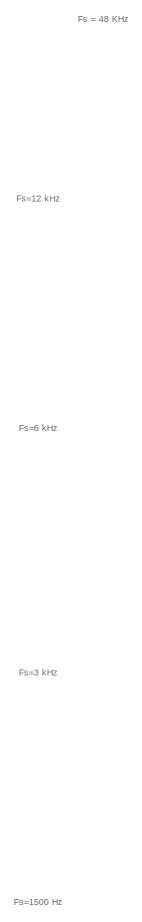
[diagram: HA_LR/HA_right - part 1/6, top left region]
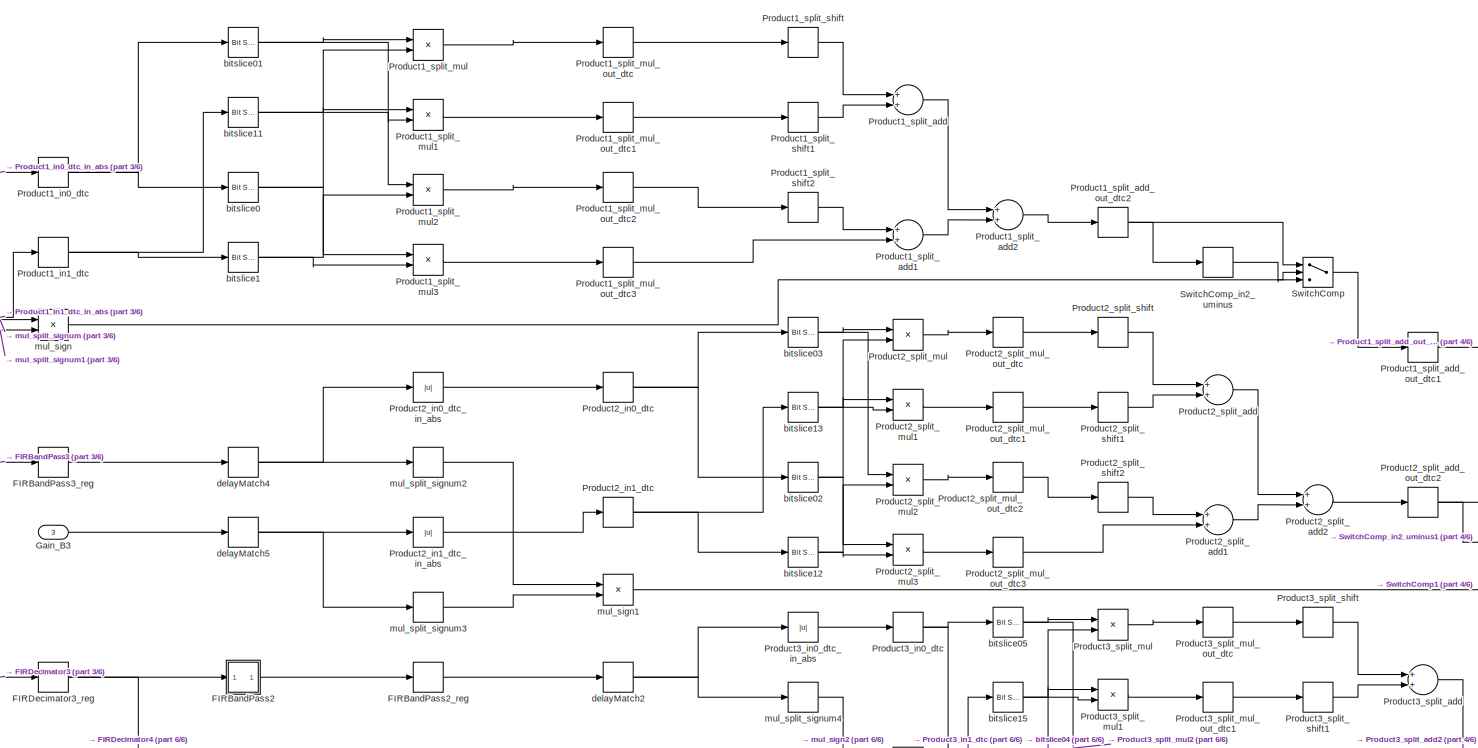
[diagram: HA_LR/HA_right - part 2/6, central region]
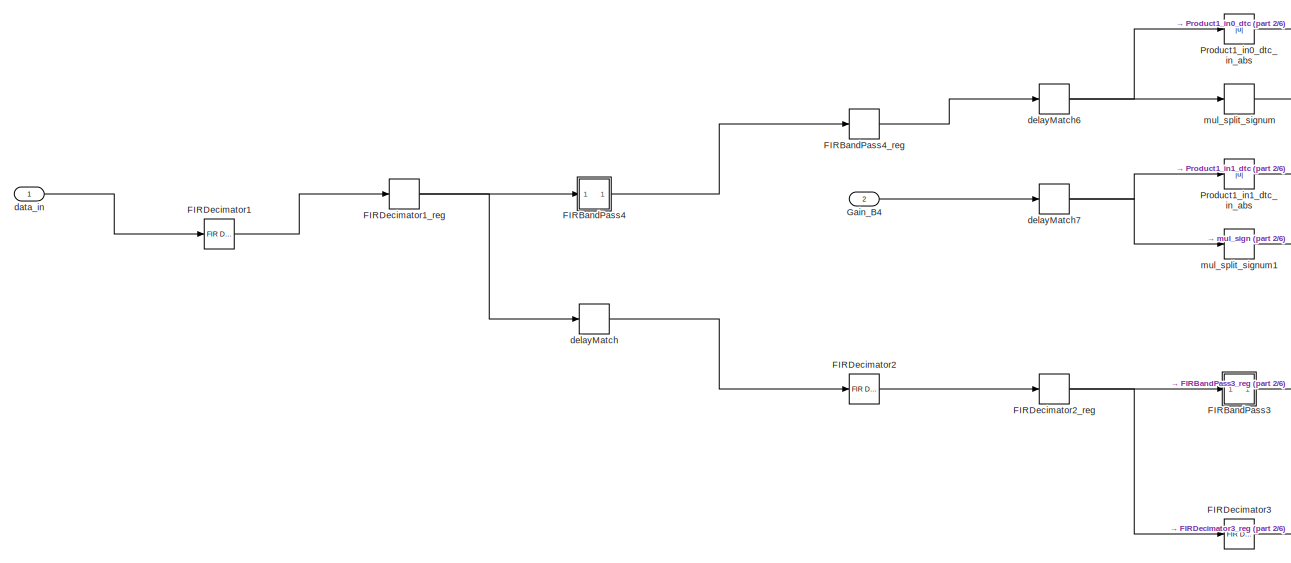
[diagram: HA_LR/HA_right - part 3/6, middle left region]
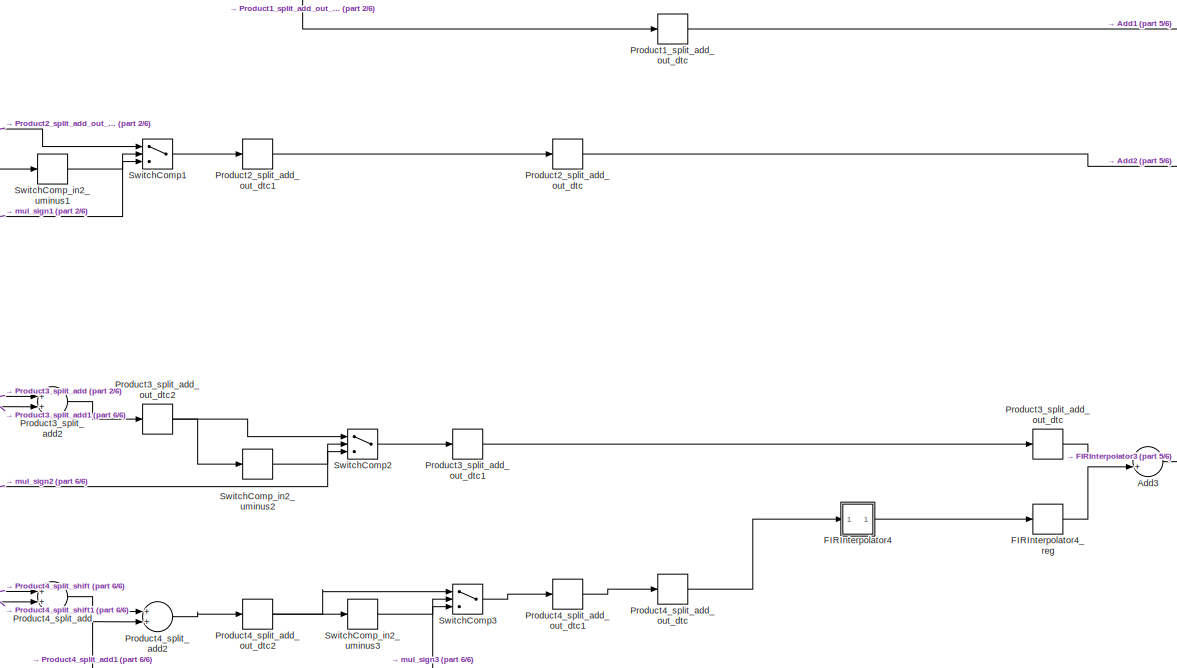
[diagram: HA_LR/HA_right - part 4/6, bottom center region]
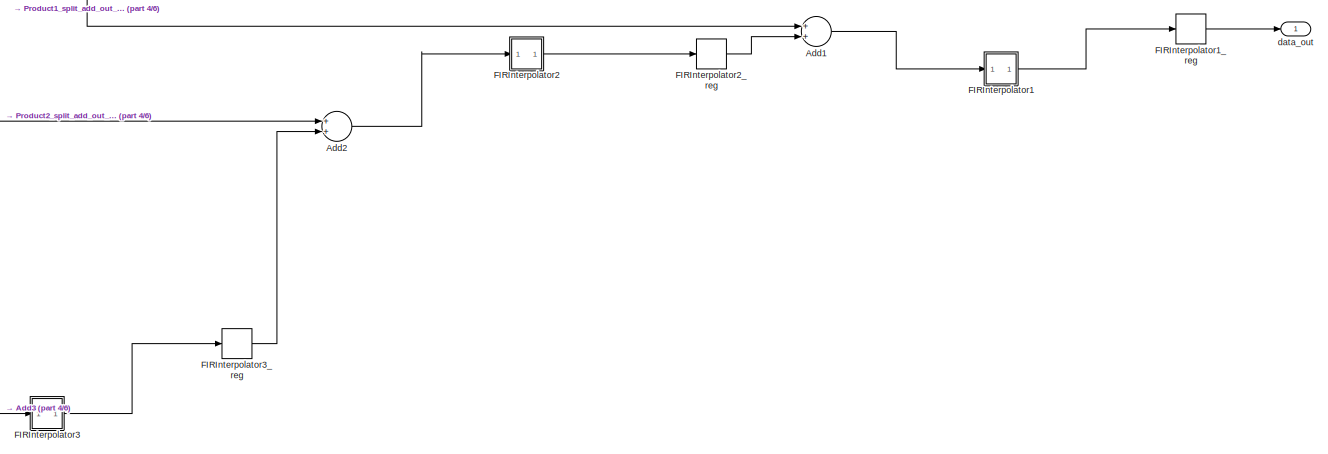
[diagram: HA_LR/HA_right - part 5/6, middle right region]
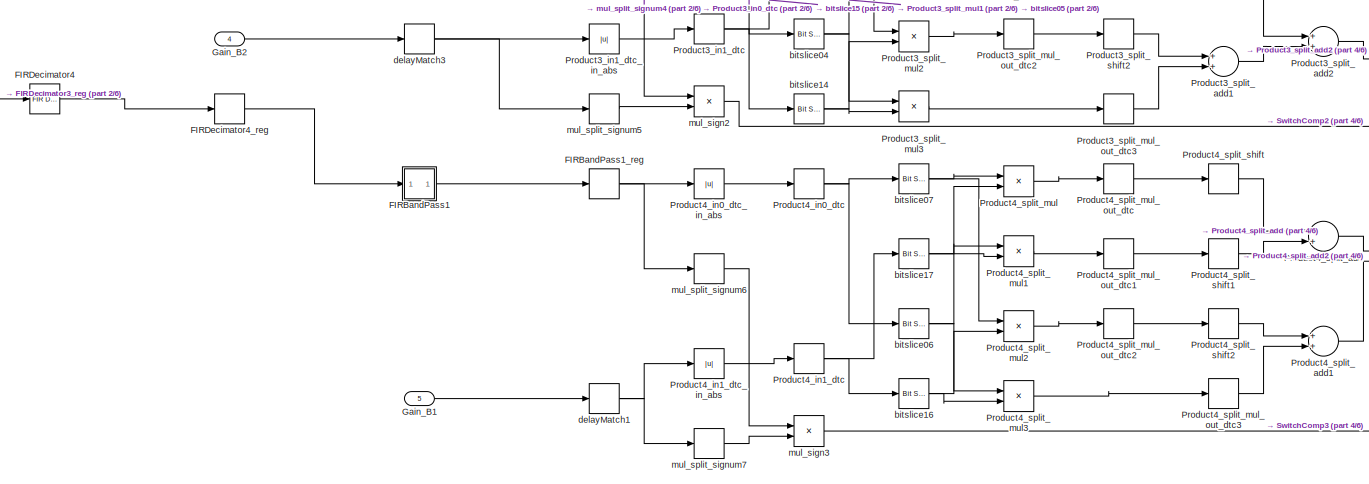
[diagram: HA_LR/HA_right - part 6/6, bottom center region]
BLOCK [SubSystem] HA_LR/HA_right
  Ports = [5, 1]
  RequestExecContextInheritance = off
BLOCK [Sum] HA_LR/HA_right/Add1
  AccumDataTypeStr = fixdt(1, 33, 28)
  InputSameDT = off
  OutDataTypeStr = fixdt(1, 33, 28)
  Ports = [2, 1]
  SampleTime = 8.33333333333333e-05
BLOCK [Sum] HA_LR/HA_right/Add2
  AccumDataTypeStr = fixdt(1, 33, 28)
  InputSameDT = off
  OutDataTypeStr = fixdt(1, 33, 28)
  Ports = [2, 1]
  SampleTime = 0.000166666666666667
BLOCK [Sum] HA_LR/HA_right/Add3
  AccumDataTypeStr = fixdt(1, 33, 28)
  InputSameDT = off
  OutDataTypeStr = fixdt(1, 33, 28)
  Ports = [2, 1]
  SampleTime = 0.000333333333333333
BLOCK [SubSystem] HA_LR/HA_right/FIRBandPass1
  Ports = [1, 1]
  RequestExecContextInheritance = off
BLOCK [DiscreteFir] HA_LR/HA_right/FIRBandPass1/FIRBandPass1
  AccumDataTypeStr = fixdt(1,65,60)
  CoefDataTypeStr = fixdt(1,32,32)
  Coefficients = FIRBandPass1.FIR_coefficients
  InputPortMap = u0
  OutDataTypeStr = fixdt(1,32,28)
  OutputPortMap = o0
  Ports = [1, 1]
  ProductDataTypeStr = fixdt(1,63,60)
  SaturateOnIntegerOverflow = on
BLOCK [Delay] HA_LR/HA_right/FIRBandPass1/FIRBandPass1_GenDelay1
  DelayLength = 1
  InputPortMap = u0
  InputProcessing = Inherited
  Ports = [1, 1]
BLOCK [Inport] HA_LR/HA_right/FIRBandPass1/In1
  IconDisplay = Port number
BLOCK [Outport] HA_LR/HA_right/FIRBandPass1/Out1
  IconDisplay = Port number
BLOCK [Delay] HA_LR/HA_right/FIRBandPass1_reg
  DelayLength = double(1)
  InitialCondition = 0
  InputPortMap = u0
  InputProcessing = Inherited
  Ports = [1, 1]
  SampleTime = 0.000666666666666667
BLOCK [SubSystem] HA_LR/HA_right/FIRBandPass2
  Ports = [1, 1]
  RequestExecContextInheritance = off
BLOCK [DiscreteFir] HA_LR/HA_right/FIRBandPass2/FIRBandPass2
  AccumDataTypeStr = fixdt(1,65,60)
  CoefDataTypeStr = fixdt(1,32,32)
  Coefficients = FIRBandPass2.FIR_coefficients
  InputPortMap = u0
  OutDataTypeStr = fixdt(1,32,28)
  OutputPortMap = o0
  Ports = [1, 1]
  ProductDataTypeStr = fixdt(1,63,60)
  SaturateOnIntegerOverflow = on
BLOCK [Delay] HA_LR/HA_right/FIRBandPass2/FIRBandPass2_GenDelay1
  DelayLength = 1
  InputPortMap = u0
  InputProcessing = Inherited
  Ports = [1, 1]
BLOCK [Inport] HA_LR/HA_right/FIRBandPass2/In1
  IconDisplay = Port number
BLOCK [Outport] HA_LR/HA_right/FIRBandPass2/Out1
  IconDisplay = Port number
BLOCK [Delay] HA_LR/HA_right/FIRBandPass2_reg
  DelayLength = double(1)
  InitialCondition = 0
  InputPortMap = u0
  InputProcessing = Inherited
  Ports = [1, 1]
  SampleTime = 0.000333333333333333
BLOCK [SubSystem] HA_LR/HA_right/FIRBandPass3
  Ports = [1, 1]
  RequestExecContextInheritance = off
BLOCK [DiscreteFir] HA_LR/HA_right/FIRBandPass3/FIRBandPass3
  AccumDataTypeStr = fixdt(1,65,60)
  CoefDataTypeStr = fixdt(1,32,32)
  Coefficients = FIRBandPass3.FIR_coefficients
  InputPortMap = u0
  OutDataTypeStr = fixdt(1,32,28)
  OutputPortMap = o0
  Ports = [1, 1]
  ProductDataTypeStr = fixdt(1,63,60)
  SaturateOnIntegerOverflow = on
BLOCK [Delay] HA_LR/HA_right/FIRBandPass3/FIRBandPass3_GenDelay1
  DelayLength = 1
  InputPortMap = u0
  InputProcessing = Inherited
  Ports = [1, 1]
BLOCK [Inport] HA_LR/HA_right/FIRBandPass3/In1
  IconDisplay = Port number
BLOCK [Outport] HA_LR/HA_right/FIRBandPass3/Out1
  IconDisplay = Port number
BLOCK [Delay] HA_LR/HA_right/FIRBandPass3_reg
  DelayLength = double(1)
  InitialCondition = 0
  InputPortMap = u0
  InputProcessing = Inherited
  Ports = [1, 1]
  SampleTime = 0.000166666666666667
BLOCK [SubSystem] HA_LR/HA_right/FIRBandPass4
  Ports = [1, 1]
  RequestExecContextInheritance = off
BLOCK [DiscreteFir] HA_LR/HA_right/FIRBandPass4/FIRBandPass4
  AccumDataTypeStr = fixdt(1,65,60)
  CoefDataTypeStr = fixdt(1,32,32)
  Coefficients = FIRBandPass4.FIR_coefficients
  InputPortMap = u0
  OutDataTypeStr = fixdt(1,32,28)
  OutputPortMap = o0
  Ports = [1, 1]
  ProductDataTypeStr = fixdt(1,63,60)
  SaturateOnIntegerOverflow = on
BLOCK [Delay] HA_LR/HA_right/FIRBandPass4/FIRBandPass4_GenDelay1
  DelayLength = 1
  InputPortMap = u0
  InputProcessing = Inherited
  Ports = [1, 1]
BLOCK [Inport] HA_LR/HA_right/FIRBandPass4/In1
  IconDisplay = Port number
BLOCK [Outport] HA_LR/HA_right/FIRBandPass4/Out1
  IconDisplay = Port number
BLOCK [Delay] HA_LR/HA_right/FIRBandPass4_reg
  DelayLength = double(1)
  InitialCondition = 0
  InputPortMap = u0
  InputProcessing = Inherited
  Ports = [1, 1]
  SampleTime = 8.33333333333333e-05
BLOCK [Reference] HA_LR/HA_right/FIRDecimator1  REF=dspmlti4/FIR
Decimation
  Ports = [1, 1]
  SourceBlock = dspmlti4/FIR\nDecimation
  SourceProductBaseCode = DS
  SourceProductName = DSP System Toolbox
  SourceType = FIR Decimation
  UserDataPersistent = on
BLOCK [Delay] HA_LR/HA_right/FIRDecimator1_reg
  DelayLength = double(1)
  InitialCondition = 0
  InputPortMap = u0
  InputProcessing = Inherited
  Ports = [1, 1]
  SampleTime = 8.33333333333333e-05
BLOCK [Reference] HA_LR/HA_right/FIRDecimator2  REF=dspmlti4/FIR
Decimation
  Ports = [1, 1]
  SourceBlock = dspmlti4/FIR\nDecimation
  SourceProductBaseCode = DS
  SourceProductName = DSP System Toolbox
  SourceType = FIR Decimation
  UserDataPersistent = on
BLOCK [Delay] HA_LR/HA_right/FIRDecimator2_reg
  DelayLength = double(1)
  InitialCondition = 0
  InputPortMap = u0
  InputProcessing = Inherited
  Ports = [1, 1]
  SampleTime = 0.000166666666666667
BLOCK [Reference] HA_LR/HA_right/FIRDecimator3  REF=dspmlti4/FIR
Decimation
  Ports = [1, 1]
  SourceBlock = dspmlti4/FIR\nDecimation
  SourceProductBaseCode = DS
  SourceProductName = DSP System Toolbox
  SourceType = FIR Decimation
  UserDataPersistent = on
BLOCK [Delay] HA_LR/HA_right/FIRDecimator3_reg
  DelayLength = double(1)
  InitialCondition = 0
  InputPortMap = u0
  InputProcessing = Inherited
  Ports = [1, 1]
  SampleTime = 0.000333333333333333
BLOCK [Reference] HA_LR/HA_right/FIRDecimator4  REF=dspmlti4/FIR
Decimation
  Ports = [1, 1]
  SourceBlock = dspmlti4/FIR\nDecimation
  SourceProductBaseCode = DS
  SourceProductName = DSP System Toolbox
  SourceType = FIR Decimation
  UserDataPersistent = on
BLOCK [Delay] HA_LR/HA_right/FIRDecimator4_reg
  DelayLength = double(1)
  InitialCondition = 0
  InputPortMap = u0
  InputProcessing = Inherited
  Ports = [1, 1]
  SampleTime = 0.000666666666666667
BLOCK [SubSystem] HA_LR/HA_right/FIRInterpolator1
  CopyFcn = ud = get_param(gcbh,'UserData');\nif isfield(ud,'fvtool')\n  ud = rmfield(ud,'fvtool');\n  set_param(gcbh,'UserData',ud);\nend\nclear ud;
  DeleteFcn = dspLinkFVTool2Mask(gcbh,'close')
  LoadFcn = dspDeleteFVToolLinkFromMask(gcbh);
  Ports = [1, 1]
  PostSaveFcn = dspRestoreLinkFVTool2Mask(gcbh);
  PreSaveFcn = dspUnlinkFVToolFromMask(gcbh);
  RequestExecContextInheritance = off
  UserDataPersistent = on
BLOCK [Reference] HA_LR/HA_right/FIRInterpolator1/FIRInterpolator1  REF=dspmlti4/FIR
Interpolation
  Ports = [1, 1]
  SourceBlock = dspmlti4/FIR\nInterpolation
  SourceProductBaseCode = DS
  SourceProductName = DSP System Toolbox
  SourceType = FIR Interpolation
  UserDataPersistent = on
BLOCK [Delay] HA_LR/HA_right/FIRInterpolator1/FIRInterpolator1_GenDelay1
  DelayLength = 1
  InputPortMap = u0
  InputProcessing = Inherited
  Ports = [1, 1]
BLOCK [Inport] HA_LR/HA_right/FIRInterpolator1/In1
  IconDisplay = Port number
BLOCK [Outport] HA_LR/HA_right/FIRInterpolator1/Out1
  IconDisplay = Port number
BLOCK [Delay] HA_LR/HA_right/FIRInterpolator1_reg
  DelayLength = double(1)
  InitialCondition = 0
  InputPortMap = u0
  InputProcessing = Inherited
  Ports = [1, 1]
  SampleTime = 2.08333333333333e-05
BLOCK [SubSystem] HA_LR/HA_right/FIRInterpolator2
  CopyFcn = ud = get_param(gcbh,'UserData');\nif isfield(ud,'fvtool')\n  ud = rmfield(ud,'fvtool');\n  set_param(gcbh,'UserData',ud);\nend\nclear ud;
  DeleteFcn = dspLinkFVTool2Mask(gcbh,'close')
  LoadFcn = dspDeleteFVToolLinkFromMask(gcbh);
  Ports = [1, 1]
  PostSaveFcn = dspRestoreLinkFVTool2Mask(gcbh);
  PreSaveFcn = dspUnlinkFVToolFromMask(gcbh);
  RequestExecContextInheritance = off
  UserDataPersistent = on
BLOCK [Reference] HA_LR/HA_right/FIRInterpolator2/FIRInterpolator2  REF=dspmlti4/FIR
Interpolation
  Ports = [1, 1]
  SourceBlock = dspmlti4/FIR\nInterpolation
  SourceProductBaseCode = DS
  SourceProductName = DSP System Toolbox
  SourceType = FIR Interpolation
  UserDataPersistent = on
BLOCK [Delay] HA_LR/HA_right/FIRInterpolator2/FIRInterpolator2_GenDelay1
  DelayLength = 1
  InputPortMap = u0
  InputProcessing = Inherited
  Ports = [1, 1]
BLOCK [Inport] HA_LR/HA_right/FIRInterpolator2/In1
  IconDisplay = Port number
BLOCK [Outport] HA_LR/HA_right/FIRInterpolator2/Out1
  IconDisplay = Port number
BLOCK [Delay] HA_LR/HA_right/FIRInterpolator2_reg
  DelayLength = double(1)
  InitialCondition = 0
  InputPortMap = u0
  InputProcessing = Inherited
  Ports = [1, 1]
  SampleTime = 8.33333333333333e-05
BLOCK [SubSystem] HA_LR/HA_right/FIRInterpolator3
  CopyFcn = ud = get_param(gcbh,'UserData');\nif isfield(ud,'fvtool')\n  ud = rmfield(ud,'fvtool');\n  set_param(gcbh,'UserData',ud);\nend\nclear ud;
  DeleteFcn = dspLinkFVTool2Mask(gcbh,'close')
  LoadFcn = dspDeleteFVToolLinkFromMask(gcbh);
  Ports = [1, 1]
  PostSaveFcn = dspRestoreLinkFVTool2Mask(gcbh);
  PreSaveFcn = dspUnlinkFVToolFromMask(gcbh);
  RequestExecContextInheritance = off
  UserDataPersistent = on
BLOCK [Reference] HA_LR/HA_right/FIRInterpolator3/FIRInterpolator3  REF=dspmlti4/FIR
Interpolation
  Ports = [1, 1]
  SourceBlock = dspmlti4/FIR\nInterpolation
  SourceProductBaseCode = DS
  SourceProductName = DSP System Toolbox
  SourceType = FIR Interpolation
  UserDataPersistent = on
BLOCK [Delay] HA_LR/HA_right/FIRInterpolator3/FIRInterpolator3_GenDelay1
  DelayLength = 1
  InputPortMap = u0
  InputProcessing = Inherited
  Ports = [1, 1]
BLOCK [Inport] HA_LR/HA_right/FIRInterpolator3/In1
  IconDisplay = Port number
BLOCK [Outport] HA_LR/HA_right/FIRInterpolator3/Out1
  IconDisplay = Port number
BLOCK [Delay] HA_LR/HA_right/FIRInterpolator3_reg
  DelayLength = double(1)
  InitialCondition = 0
  InputPortMap = u0
  InputProcessing = Inherited
  Ports = [1, 1]
  SampleTime = 0.000166666666666667
BLOCK [SubSystem] HA_LR/HA_right/FIRInterpolator4
  CopyFcn = ud = get_param(gcbh,'UserData');\nif isfield(ud,'fvtool')\n  ud = rmfield(ud,'fvtool');\n  set_param(gcbh,'UserData',ud);\nend\nclear ud;
  DeleteFcn = dspLinkFVTool2Mask(gcbh,'close')
  LoadFcn = dspDeleteFVToolLinkFromMask(gcbh);
  Ports = [1, 1]
  PostSaveFcn = dspRestoreLinkFVTool2Mask(gcbh);
  PreSaveFcn = dspUnlinkFVToolFromMask(gcbh);
  RequestExecContextInheritance = off
  UserDataPersistent = on
BLOCK [Reference] HA_LR/HA_right/FIRInterpolator4/FIRInterpolator4  REF=dspmlti4/FIR
Interpolation
  Ports = [1, 1]
  SourceBlock = dspmlti4/FIR\nInterpolation
  SourceProductBaseCode = DS
  SourceProductName = DSP System Toolbox
  SourceType = FIR Interpolation
  UserDataPersistent = on
BLOCK [Delay] HA_LR/HA_right/FIRInterpolator4/FIRInterpolator4_GenDelay1
  DelayLength = 1
  InputPortMap = u0
  InputProcessing = Inherited
  Ports = [1, 1]
BLOCK [Inport] HA_LR/HA_right/FIRInterpolator4/In1
  IconDisplay = Port number
BLOCK [Outport] HA_LR/HA_right/FIRInterpolator4/Out1
  IconDisplay = Port number
BLOCK [Delay] HA_LR/HA_right/FIRInterpolator4_reg
  DelayLength = double(1)
  InitialCondition = 0
  InputPortMap = u0
  InputProcessing = Inherited
  Ports = [1, 1]
  SampleTime = 0.000333333333333333
BLOCK [Inport] HA_LR/HA_right/Gain_B1
  IconDisplay = Port number
  LockScale = on
  OutDataTypeStr = fixdt(1,32,16)
  Port = 5
  PortDimensions = 1
  SampleTime = 0.000666666666666667
BLOCK [Inport] HA_LR/HA_right/Gain_B2
  IconDisplay = Port number
  LockScale = on
  OutDataTypeStr = fixdt(1,32,16)
  Port = 4
  PortDimensions = 1
  SampleTime = 0.000333333333333333
BLOCK [Inport] HA_LR/HA_right/Gain_B3
  IconDisplay = Port number
  LockScale = on
  OutDataTypeStr = fixdt(1,32,16)
  Port = 3
  PortDimensions = 1
  SampleTime = 0.000166666666666667
BLOCK [Inport] HA_LR/HA_right/Gain_B4
  IconDisplay = Port number
  LockScale = on
  OutDataTypeStr = fixdt(1,32,16)
  Port = 2
  PortDimensions = 1
  SampleTime = 8.33333333333333e-05
BLOCK [DataTypeConversion] HA_LR/HA_right/Product1_in0_dtc
  ConvertRealWorld = Stored Integer (SI)
  OutDataTypeStr = fixdt(0, 36, 0)
  RndMeth = Floor
  SampleTime = 8.33333333333333e-05
  SaturateOnIntegerOverflow = off
BLOCK [Abs] HA_LR/HA_right/Product1_in0_dtc_in_abs
  OutDataTypeStr = fixdt(0, 32, 28)
  SampleTime = 8.33333333333333e-05
  SaturateOnIntegerOverflow = off
BLOCK [DataTypeConversion] HA_LR/HA_right/Product1_in1_dtc
  ConvertRealWorld = Stored Integer (SI)
  OutDataTypeStr = fixdt(0, 36, 0)
  RndMeth = Floor
  SampleTime = 8.33333333333333e-05
  SaturateOnIntegerOverflow = off
BLOCK [Abs] HA_LR/HA_right/Product1_in1_dtc_in_abs
  OutDataTypeStr = fixdt(0, 32, 16)
  SampleTime = 8.33333333333333e-05
  SaturateOnIntegerOverflow = off
BLOCK [Sum] HA_LR/HA_right/Product1_split_add
  InputSameDT = off
  OutDataTypeStr = fixdt(0, 65, 0)
  Ports = [2, 1]
  SampleTime = 8.33333333333333e-05
  SaturateOnIntegerOverflow = off
BLOCK [Sum] HA_LR/HA_right/Product1_split_add1
  InputSameDT = off
  OutDataTypeStr = fixdt(0, 65, 0)
  Ports = [2, 1]
  SampleTime = 8.33333333333333e-05
  SaturateOnIntegerOverflow = off
BLOCK [Sum] HA_LR/HA_right/Product1_split_add2
  InputSameDT = off
  OutDataTypeStr = fixdt(0, 66, 0)
  Ports = [2, 1]
  SampleTime = 8.33333333333333e-05
  SaturateOnIntegerOverflow = off
BLOCK [DataTypeConversion] HA_LR/HA_right/Product1_split_add_out_dtc
  OutDataTypeStr = fixdt(1, 32, 28)
  RndMeth = Floor
  SampleTime = 8.33333333333333e-05
BLOCK [DataTypeConversion] HA_LR/HA_right/Product1_split_add_out_dtc1
  ConvertRealWorld = Stored Integer (SI)
  OutDataTypeStr = fixdt(1, 64, 44)
  RndMeth = Floor
  SampleTime = 8.33333333333333e-05
  SaturateOnIntegerOverflow = off
BLOCK [DataTypeConversion] HA_LR/HA_right/Product1_split_add_out_dtc2
  OutDataTypeStr = fixdt(1, 66, 0)
  RndMeth = Floor
  SampleTime = 8.33333333333333e-05
  SaturateOnIntegerOverflow = off
BLOCK [Product] HA_LR/HA_right/Product1_split_mul
  InputSameDT = off
  Inputs = **
  OutDataTypeStr = fixdt(0, 28, 0)
  Ports = [2, 1]
  RndMeth = Floor
  SampleTime = 8.33333333333333e-05
  SaturateOnIntegerOverflow = off
BLOCK [Product] HA_LR/HA_right/Product1_split_mul1
  InputSameDT = off
  Inputs = **
  OutDataTypeStr = uint32
  Ports = [2, 1]
  RndMeth = Floor
  SampleTime = 8.33333333333333e-05
  SaturateOnIntegerOverflow = off
BLOCK [Product] HA_LR/HA_right/Product1_split_mul2
  InputSameDT = off
  Inputs = **
  OutDataTypeStr = uint32
  Ports = [2, 1]
  RndMeth = Floor
  SampleTime = 8.33333333333333e-05
  SaturateOnIntegerOverflow = off
BLOCK [Product] HA_LR/HA_right/Product1_split_mul3
  InputSameDT = off
  Inputs = **
  OutDataTypeStr = fixdt(0, 36, 0)
  Ports = [2, 1]
  RndMeth = Floor
  SampleTime = 8.33333333333333e-05
  SaturateOnIntegerOverflow = off
BLOCK [DataTypeConversion] HA_LR/HA_right/Product1_split_mul_out_dtc
  OutDataTypeStr = fixdt(0, 64, 0)
  RndMeth = Floor
  SampleTime = 8.33333333333333e-05
  SaturateOnIntegerOverflow = off
BLOCK [DataTypeConversion] HA_LR/HA_right/Product1_split_mul_out_dtc1
  OutDataTypeStr = fixdt(0, 64, 0)
  RndMeth = Floor
  SampleTime = 8.33333333333333e-05
  SaturateOnIntegerOverflow = off
BLOCK [DataTypeConversion] HA_LR/HA_right/Product1_split_mul_out_dtc2
  OutDataTypeStr = fixdt(0, 64, 0)
  RndMeth = Floor
  SampleTime = 8.33333333333333e-05
  SaturateOnIntegerOverflow = off
BLOCK [DataTypeConversion] HA_LR/HA_right/Product1_split_mul_out_dtc3
  OutDataTypeStr = fixdt(0, 64, 0)
  RndMeth = Floor
  SampleTime = 8.33333333333333e-05
  SaturateOnIntegerOverflow = off
BLOCK [ArithShift] HA_LR/HA_right/Product1_split_shift
  BitShiftNumber = -36
  InputPortMap = u0
  Ports = [1, 1]
BLOCK [ArithShift] HA_LR/HA_right/Product1_split_shift1
  BitShiftNumber = -18
  InputPortMap = u0
  Ports = [1, 1]
BLOCK [ArithShift] HA_LR/HA_right/Product1_split_shift2
  BitShiftNumber = -18
  InputPortMap = u0
  Ports = [1, 1]
BLOCK [DataTypeConversion] HA_LR/HA_right/Product2_in0_dtc
  ConvertRealWorld = Stored Integer (SI)
  OutDataTypeStr = fixdt(0, 36, 0)
  RndMeth = Floor
  SampleTime = 0.000166666666666667
  SaturateOnIntegerOverflow = off
BLOCK [Abs] HA_LR/HA_right/Product2_in0_dtc_in_abs
  OutDataTypeStr = fixdt(0, 32, 28)
  SampleTime = 0.000166666666666667
  SaturateOnIntegerOverflow = off
BLOCK [DataTypeConversion] HA_LR/HA_right/Product2_in1_dtc
  ConvertRealWorld = Stored Integer (SI)
  OutDataTypeStr = fixdt(0, 36, 0)
  RndMeth = Floor
  SampleTime = 0.000166666666666667
  SaturateOnIntegerOverflow = off
BLOCK [Abs] HA_LR/HA_right/Product2_in1_dtc_in_abs
  OutDataTypeStr = fixdt(0, 32, 16)
  SampleTime = 0.000166666666666667
  SaturateOnIntegerOverflow = off
BLOCK [Sum] HA_LR/HA_right/Product2_split_add
  InputSameDT = off
  OutDataTypeStr = fixdt(0, 65, 0)
  Ports = [2, 1]
  SampleTime = 0.000166666666666667
  SaturateOnIntegerOverflow = off
BLOCK [Sum] HA_LR/HA_right/Product2_split_add1
  InputSameDT = off
  OutDataTypeStr = fixdt(0, 65, 0)
  Ports = [2, 1]
  SampleTime = 0.000166666666666667
  SaturateOnIntegerOverflow = off
BLOCK [Sum] HA_LR/HA_right/Product2_split_add2
  InputSameDT = off
  OutDataTypeStr = fixdt(0, 66, 0)
  Ports = [2, 1]
  SampleTime = 0.000166666666666667
  SaturateOnIntegerOverflow = off
BLOCK [DataTypeConversion] HA_LR/HA_right/Product2_split_add_out_dtc
  OutDataTypeStr = fixdt(1, 32, 28)
  RndMeth = Floor
  SampleTime = 0.000166666666666667
BLOCK [DataTypeConversion] HA_LR/HA_right/Product2_split_add_out_dtc1
  ConvertRealWorld = Stored Integer (SI)
  OutDataTypeStr = fixdt(1, 64, 44)
  RndMeth = Floor
  SampleTime = 0.000166666666666667
  SaturateOnIntegerOverflow = off
BLOCK [DataTypeConversion] HA_LR/HA_right/Product2_split_add_out_dtc2
  OutDataTypeStr = fixdt(1, 66, 0)
  RndMeth = Floor
  SampleTime = 0.000166666666666667
  SaturateOnIntegerOverflow = off
BLOCK [Product] HA_LR/HA_right/Product2_split_mul
  InputSameDT = off
  Inputs = **
  OutDataTypeStr = fixdt(0, 28, 0)
  Ports = [2, 1]
  RndMeth = Floor
  SampleTime = 0.000166666666666667
  SaturateOnIntegerOverflow = off
BLOCK [Product] HA_LR/HA_right/Product2_split_mul1
  InputSameDT = off
  Inputs = **
  OutDataTypeStr = uint32
  Ports = [2, 1]
  RndMeth = Floor
  SampleTime = 0.000166666666666667
  SaturateOnIntegerOverflow = off
BLOCK [Product] HA_LR/HA_right/Product2_split_mul2
  InputSameDT = off
  Inputs = **
  OutDataTypeStr = uint32
  Ports = [2, 1]
  RndMeth = Floor
  SampleTime = 0.000166666666666667
  SaturateOnIntegerOverflow = off
BLOCK [Product] HA_LR/HA_right/Product2_split_mul3
  InputSameDT = off
  Inputs = **
  OutDataTypeStr = fixdt(0, 36, 0)
  Ports = [2, 1]
  RndMeth = Floor
  SampleTime = 0.000166666666666667
  SaturateOnIntegerOverflow = off
BLOCK [DataTypeConversion] HA_LR/HA_right/Product2_split_mul_out_dtc
  OutDataTypeStr = fixdt(0, 64, 0)
  RndMeth = Floor
  SampleTime = 0.000166666666666667
  SaturateOnIntegerOverflow = off
BLOCK [DataTypeConversion] HA_LR/HA_right/Product2_split_mul_out_dtc1
  OutDataTypeStr = fixdt(0, 64, 0)
  RndMeth = Floor
  SampleTime = 0.000166666666666667
  SaturateOnIntegerOverflow = off
BLOCK [DataTypeConversion] HA_LR/HA_right/Product2_split_mul_out_dtc2
  OutDataTypeStr = fixdt(0, 64, 0)
  RndMeth = Floor
  SampleTime = 0.000166666666666667
  SaturateOnIntegerOverflow = off
BLOCK [DataTypeConversion] HA_LR/HA_right/Product2_split_mul_out_dtc3
  OutDataTypeStr = fixdt(0, 64, 0)
  RndMeth = Floor
  SampleTime = 0.000166666666666667
  SaturateOnIntegerOverflow = off
BLOCK [ArithShift] HA_LR/HA_right/Product2_split_shift
  BitShiftNumber = -36
  InputPortMap = u0
  Ports = [1, 1]
BLOCK [ArithShift] HA_LR/HA_right/Product2_split_shift1
  BitShiftNumber = -18
  InputPortMap = u0
  Ports = [1, 1]
BLOCK [ArithShift] HA_LR/HA_right/Product2_split_shift2
  BitShiftNumber = -18
  InputPortMap = u0
  Ports = [1, 1]
BLOCK [DataTypeConversion] HA_LR/HA_right/Product3_in0_dtc
  ConvertRealWorld = Stored Integer (SI)
  OutDataTypeStr = fixdt(0, 36, 0)
  RndMeth = Floor
  SampleTime = 0.000333333333333333
  SaturateOnIntegerOverflow = off
BLOCK [Abs] HA_LR/HA_right/Product3_in0_dtc_in_abs
  OutDataTypeStr = fixdt(0, 32, 28)
  SampleTime = 0.000333333333333333
  SaturateOnIntegerOverflow = off
BLOCK [DataTypeConversion] HA_LR/HA_right/Product3_in1_dtc
  ConvertRealWorld = Stored Integer (SI)
  OutDataTypeStr = fixdt(0, 36, 0)
  RndMeth = Floor
  SampleTime = 0.000333333333333333
  SaturateOnIntegerOverflow = off
BLOCK [Abs] HA_LR/HA_right/Product3_in1_dtc_in_abs
  OutDataTypeStr = fixdt(0, 32, 16)
  SampleTime = 0.000333333333333333
  SaturateOnIntegerOverflow = off
BLOCK [Sum] HA_LR/HA_right/Product3_split_add
  InputSameDT = off
  OutDataTypeStr = fixdt(0, 65, 0)
  Ports = [2, 1]
  SampleTime = 0.000333333333333333
  SaturateOnIntegerOverflow = off
BLOCK [Sum] HA_LR/HA_right/Product3_split_add1
  InputSameDT = off
  OutDataTypeStr = fixdt(0, 65, 0)
  Ports = [2, 1]
  SampleTime = 0.000333333333333333
  SaturateOnIntegerOverflow = off
BLOCK [Sum] HA_LR/HA_right/Product3_split_add2
  InputSameDT = off
  OutDataTypeStr = fixdt(0, 66, 0)
  Ports = [2, 1]
  SampleTime = 0.000333333333333333
  SaturateOnIntegerOverflow = off
BLOCK [DataTypeConversion] HA_LR/HA_right/Product3_split_add_out_dtc
  OutDataTypeStr = fixdt(1, 32, 28)
  RndMeth = Floor
  SampleTime = 0.000333333333333333
BLOCK [DataTypeConversion] HA_LR/HA_right/Product3_split_add_out_dtc1
  ConvertRealWorld = Stored Integer (SI)
  OutDataTypeStr = fixdt(1, 64, 44)
  RndMeth = Floor
  SampleTime = 0.000333333333333333
  SaturateOnIntegerOverflow = off
BLOCK [DataTypeConversion] HA_LR/HA_right/Product3_split_add_out_dtc2
  OutDataTypeStr = fixdt(1, 66, 0)
  RndMeth = Floor
  SampleTime = 0.000333333333333333
  SaturateOnIntegerOverflow = off
BLOCK [Product] HA_LR/HA_right/Product3_split_mul
  InputSameDT = off
  Inputs = **
  OutDataTypeStr = fixdt(0, 28, 0)
  Ports = [2, 1]
  RndMeth = Floor
  SampleTime = 0.000333333333333333
  SaturateOnIntegerOverflow = off
BLOCK [Product] HA_LR/HA_right/Product3_split_mul1
  InputSameDT = off
  Inputs = **
  OutDataTypeStr = uint32
  Ports = [2, 1]
  RndMeth = Floor
  SampleTime = 0.000333333333333333
  SaturateOnIntegerOverflow = off
BLOCK [Product] HA_LR/HA_right/Product3_split_mul2
  InputSameDT = off
  Inputs = **
  OutDataTypeStr = uint32
  Ports = [2, 1]
  RndMeth = Floor
  SampleTime = 0.000333333333333333
  SaturateOnIntegerOverflow = off
BLOCK [Product] HA_LR/HA_right/Product3_split_mul3
  InputSameDT = off
  Inputs = **
  OutDataTypeStr = fixdt(0, 36, 0)
  Ports = [2, 1]
  RndMeth = Floor
  SampleTime = 0.000333333333333333
  SaturateOnIntegerOverflow = off
BLOCK [DataTypeConversion] HA_LR/HA_right/Product3_split_mul_out_dtc
  OutDataTypeStr = fixdt(0, 64, 0)
  RndMeth = Floor
  SampleTime = 0.000333333333333333
  SaturateOnIntegerOverflow = off
BLOCK [DataTypeConversion] HA_LR/HA_right/Product3_split_mul_out_dtc1
  OutDataTypeStr = fixdt(0, 64, 0)
  RndMeth = Floor
  SampleTime = 0.000333333333333333
  SaturateOnIntegerOverflow = off
BLOCK [DataTypeConversion] HA_LR/HA_right/Product3_split_mul_out_dtc2
  OutDataTypeStr = fixdt(0, 64, 0)
  RndMeth = Floor
  SampleTime = 0.000333333333333333
  SaturateOnIntegerOverflow = off
BLOCK [DataTypeConversion] HA_LR/HA_right/Product3_split_mul_out_dtc3
  OutDataTypeStr = fixdt(0, 64, 0)
  RndMeth = Floor
  SampleTime = 0.000333333333333333
  SaturateOnIntegerOverflow = off
BLOCK [ArithShift] HA_LR/HA_right/Product3_split_shift
  BitShiftNumber = -36
  InputPortMap = u0
  Ports = [1, 1]
BLOCK [ArithShift] HA_LR/HA_right/Product3_split_shift1
  BitShiftNumber = -18
  InputPortMap = u0
  Ports = [1, 1]
BLOCK [ArithShift] HA_LR/HA_right/Product3_split_shift2
  BitShiftNumber = -18
  InputPortMap = u0
  Ports = [1, 1]
BLOCK [DataTypeConversion] HA_LR/HA_right/Product4_in0_dtc
  ConvertRealWorld = Stored Integer (SI)
  OutDataTypeStr = fixdt(0, 36, 0)
  RndMeth = Floor
  SampleTime = 0.000666666666666667
  SaturateOnIntegerOverflow = off
BLOCK [Abs] HA_LR/HA_right/Product4_in0_dtc_in_abs
  OutDataTypeStr = fixdt(0, 32, 28)
  SampleTime = 0.000666666666666667
  SaturateOnIntegerOverflow = off
BLOCK [DataTypeConversion] HA_LR/HA_right/Product4_in1_dtc
  ConvertRealWorld = Stored Integer (SI)
  OutDataTypeStr = fixdt(0, 36, 0)
  RndMeth = Floor
  SampleTime = 0.000666666666666667
  SaturateOnIntegerOverflow = off
BLOCK [Abs] HA_LR/HA_right/Product4_in1_dtc_in_abs
  OutDataTypeStr = fixdt(0, 32, 16)
  SampleTime = 0.000666666666666667
  SaturateOnIntegerOverflow = off
BLOCK [Sum] HA_LR/HA_right/Product4_split_add
  InputSameDT = off
  OutDataTypeStr = fixdt(0, 65, 0)
  Ports = [2, 1]
  SampleTime = 0.000666666666666667
  SaturateOnIntegerOverflow = off
BLOCK [Sum] HA_LR/HA_right/Product4_split_add1
  InputSameDT = off
  OutDataTypeStr = fixdt(0, 65, 0)
  Ports = [2, 1]
  SampleTime = 0.000666666666666667
  SaturateOnIntegerOverflow = off
BLOCK [Sum] HA_LR/HA_right/Product4_split_add2
  InputSameDT = off
  OutDataTypeStr = fixdt(0, 66, 0)
  Ports = [2, 1]
  SampleTime = 0.000666666666666667
  SaturateOnIntegerOverflow = off
BLOCK [DataTypeConversion] HA_LR/HA_right/Product4_split_add_out_dtc
  OutDataTypeStr = fixdt(1, 32, 28)
  RndMeth = Floor
  SampleTime = 0.000666666666666667
BLOCK [DataTypeConversion] HA_LR/HA_right/Product4_split_add_out_dtc1
  ConvertRealWorld = Stored Integer (SI)
  OutDataTypeStr = fixdt(1, 64, 44)
  RndMeth = Floor
  SampleTime = 0.000666666666666667
  SaturateOnIntegerOverflow = off
BLOCK [DataTypeConversion] HA_LR/HA_right/Product4_split_add_out_dtc2
  OutDataTypeStr = fixdt(1, 66, 0)
  RndMeth = Floor
  SampleTime = 0.000666666666666667
  SaturateOnIntegerOverflow = off
BLOCK [Product] HA_LR/HA_right/Product4_split_mul
  InputSameDT = off
  Inputs = **
  OutDataTypeStr = fixdt(0, 28, 0)
  Ports = [2, 1]
  RndMeth = Floor
  SampleTime = 0.000666666666666667
  SaturateOnIntegerOverflow = off
BLOCK [Product] HA_LR/HA_right/Product4_split_mul1
  InputSameDT = off
  Inputs = **
  OutDataTypeStr = uint32
  Ports = [2, 1]
  RndMeth = Floor
  SampleTime = 0.000666666666666667
  SaturateOnIntegerOverflow = off
BLOCK [Product] HA_LR/HA_right/Product4_split_mul2
  InputSameDT = off
  Inputs = **
  OutDataTypeStr = uint32
  Ports = [2, 1]
  RndMeth = Floor
  SampleTime = 0.000666666666666667
  SaturateOnIntegerOverflow = off
BLOCK [Product] HA_LR/HA_right/Product4_split_mul3
  InputSameDT = off
  Inputs = **
  OutDataTypeStr = fixdt(0, 36, 0)
  Ports = [2, 1]
  RndMeth = Floor
  SampleTime = 0.000666666666666667
  SaturateOnIntegerOverflow = off
BLOCK [DataTypeConversion] HA_LR/HA_right/Product4_split_mul_out_dtc
  OutDataTypeStr = fixdt(0, 64, 0)
  RndMeth = Floor
  SampleTime = 0.000666666666666667
  SaturateOnIntegerOverflow = off
BLOCK [DataTypeConversion] HA_LR/HA_right/Product4_split_mul_out_dtc1
  OutDataTypeStr = fixdt(0, 64, 0)
  RndMeth = Floor
  SampleTime = 0.000666666666666667
  SaturateOnIntegerOverflow = off
BLOCK [DataTypeConversion] HA_LR/HA_right/Product4_split_mul_out_dtc2
  OutDataTypeStr = fixdt(0, 64, 0)
  RndMeth = Floor
  SampleTime = 0.000666666666666667
  SaturateOnIntegerOverflow = off
BLOCK [DataTypeConversion] HA_LR/HA_right/Product4_split_mul_out_dtc3
  OutDataTypeStr = fixdt(0, 64, 0)
  RndMeth = Floor
  SampleTime = 0.000666666666666667
  SaturateOnIntegerOverflow = off
BLOCK [ArithShift] HA_LR/HA_right/Product4_split_shift
  BitShiftNumber = -36
  InputPortMap = u0
  Ports = [1, 1]
BLOCK [ArithShift] HA_LR/HA_right/Product4_split_shift1
  BitShiftNumber = -18
  InputPortMap = u0
  Ports = [1, 1]
BLOCK [ArithShift] HA_LR/HA_right/Product4_split_shift2
  BitShiftNumber = -18
  InputPortMap = u0
  Ports = [1, 1]
BLOCK [Switch] HA_LR/HA_right/SwitchComp
  Criteria = u2 > Threshold
  InputSameDT = off
  OutDataTypeStr = fixdt(1, 66, 0)
  SampleTime = 8.33333333333333e-05
  SaturateOnIntegerOverflow = off
  Threshold = double(0)
BLOCK [Switch] HA_LR/HA_right/SwitchComp1
  Criteria = u2 > Threshold
  InputSameDT = off
  OutDataTypeStr = fixdt(1, 66, 0)
  SampleTime = 0.000166666666666667
  SaturateOnIntegerOverflow = off
  Threshold = double(0)
BLOCK [Switch] HA_LR/HA_right/SwitchComp2
  Criteria = u2 > Threshold
  InputSameDT = off
  OutDataTypeStr = fixdt(1, 66, 0)
  SampleTime = 0.000333333333333333
  SaturateOnIntegerOverflow = off
  Threshold = double(0)
BLOCK [Switch] HA_LR/HA_right/SwitchComp3
  Criteria = u2 > Threshold
  InputSameDT = off
  OutDataTypeStr = fixdt(1, 66, 0)
  SampleTime = 0.000666666666666667
  SaturateOnIntegerOverflow = off
  Threshold = double(0)
BLOCK [UnaryMinus] HA_LR/HA_right/SwitchComp_in2_uminus
  SampleTime = 8.33333333333333e-05
BLOCK [UnaryMinus] HA_LR/HA_right/SwitchComp_in2_uminus1
  SampleTime = 0.000166666666666667
BLOCK [UnaryMinus] HA_LR/HA_right/SwitchComp_in2_uminus2
  SampleTime = 0.000333333333333333
BLOCK [UnaryMinus] HA_LR/HA_right/SwitchComp_in2_uminus3
  SampleTime = 0.000666666666666667
BLOCK [Reference] HA_LR/HA_right/bitslice0  REF=hdlsllib/Logic and Bit
Operations/Bit Slice
  Ports = [1, 1]
  SourceBlock = hdlsllib/Logic and Bit\nOperations/Bit Slice
  SourceProductBaseCode = HD
  SourceProductName = HDL Coder
  SourceType = Bit Slice
BLOCK [Reference] HA_LR/HA_right/bitslice01  REF=hdlsllib/Logic and Bit
Operations/Bit Slice
  Ports = [1, 1]
  SourceBlock = hdlsllib/Logic and Bit\nOperations/Bit Slice
  SourceProductBaseCode = HD
  SourceProductName = HDL Coder
  SourceType = Bit Slice
BLOCK [Reference] HA_LR/HA_right/bitslice02  REF=hdlsllib/Logic and Bit
Operations/Bit Slice
  Ports = [1, 1]
  SourceBlock = hdlsllib/Logic and Bit\nOperations/Bit Slice
  SourceProductBaseCode = HD
  SourceProductName = HDL Coder
  SourceType = Bit Slice
BLOCK [Reference] HA_LR/HA_right/bitslice03  REF=hdlsllib/Logic and Bit
Operations/Bit Slice
  Ports = [1, 1]
  SourceBlock = hdlsllib/Logic and Bit\nOperations/Bit Slice
  SourceProductBaseCode = HD
  SourceProductName = HDL Coder
  SourceType = Bit Slice
BLOCK [Reference] HA_LR/HA_right/bitslice04  REF=hdlsllib/Logic and Bit
Operations/Bit Slice
  Ports = [1, 1]
  SourceBlock = hdlsllib/Logic and Bit\nOperations/Bit Slice
  SourceProductBaseCode = HD
  SourceProductName = HDL Coder
  SourceType = Bit Slice
BLOCK [Reference] HA_LR/HA_right/bitslice05  REF=hdlsllib/Logic and Bit
Operations/Bit Slice
  Ports = [1, 1]
  SourceBlock = hdlsllib/Logic and Bit\nOperations/Bit Slice
  SourceProductBaseCode = HD
  SourceProductName = HDL Coder
  SourceType = Bit Slice
BLOCK [Reference] HA_LR/HA_right/bitslice06  REF=hdlsllib/Logic and Bit
Operations/Bit Slice
  Ports = [1, 1]
  SourceBlock = hdlsllib/Logic and Bit\nOperations/Bit Slice
  SourceProductBaseCode = HD
  SourceProductName = HDL Coder
  SourceType = Bit Slice
BLOCK [Reference] HA_LR/HA_right/bitslice07  REF=hdlsllib/Logic and Bit
Operations/Bit Slice
  Ports = [1, 1]
  SourceBlock = hdlsllib/Logic and Bit\nOperations/Bit Slice
  SourceProductBaseCode = HD
  SourceProductName = HDL Coder
  SourceType = Bit Slice
BLOCK [Reference] HA_LR/HA_right/bitslice1  REF=hdlsllib/Logic and Bit
Operations/Bit Slice
  Ports = [1, 1]
  SourceBlock = hdlsllib/Logic and Bit\nOperations/Bit Slice
  SourceProductBaseCode = HD
  SourceProductName = HDL Coder
  SourceType = Bit Slice
BLOCK [Reference] HA_LR/HA_right/bitslice11  REF=hdlsllib/Logic and Bit
Operations/Bit Slice
  Ports = [1, 1]
  SourceBlock = hdlsllib/Logic and Bit\nOperations/Bit Slice
  SourceProductBaseCode = HD
  SourceProductName = HDL Coder
  SourceType = Bit Slice
BLOCK [Reference] HA_LR/HA_right/bitslice12  REF=hdlsllib/Logic and Bit
Operations/Bit Slice
  Ports = [1, 1]
  SourceBlock = hdlsllib/Logic and Bit\nOperations/Bit Slice
  SourceProductBaseCode = HD
  SourceProductName = HDL Coder
  SourceType = Bit Slice
BLOCK [Reference] HA_LR/HA_right/bitslice13  REF=hdlsllib/Logic and Bit
Operations/Bit Slice
  Ports = [1, 1]
  SourceBlock = hdlsllib/Logic and Bit\nOperations/Bit Slice
  SourceProductBaseCode = HD
  SourceProductName = HDL Coder
  SourceType = Bit Slice
BLOCK [Reference] HA_LR/HA_right/bitslice14  REF=hdlsllib/Logic and Bit
Operations/Bit Slice
  Ports = [1, 1]
  SourceBlock = hdlsllib/Logic and Bit\nOperations/Bit Slice
  SourceProductBaseCode = HD
  SourceProductName = HDL Coder
  SourceType = Bit Slice
BLOCK [Reference] HA_LR/HA_right/bitslice15  REF=hdlsllib/Logic and Bit
Operations/Bit Slice
  Ports = [1, 1]
  SourceBlock = hdlsllib/Logic and Bit\nOperations/Bit Slice
  SourceProductBaseCode = HD
  SourceProductName = HDL Coder
  SourceType = Bit Slice
BLOCK [Reference] HA_LR/HA_right/bitslice16  REF=hdlsllib/Logic and Bit
Operations/Bit Slice
  Ports = [1, 1]
  SourceBlock = hdlsllib/Logic and Bit\nOperations/Bit Slice
  SourceProductBaseCode = HD
  SourceProductName = HDL Coder
  SourceType = Bit Slice
BLOCK [Reference] HA_LR/HA_right/bitslice17  REF=hdlsllib/Logic and Bit
Operations/Bit Slice
  Ports = [1, 1]
  SourceBlock = hdlsllib/Logic and Bit\nOperations/Bit Slice
  SourceProductBaseCode = HD
  SourceProductName = HDL Coder
  SourceType = Bit Slice
BLOCK [Inport] HA_LR/HA_right/data_in
  IconDisplay = Port number
  PortDimensions = 1
  SampleTime = 2.08333333333333e-05
BLOCK [Outport] HA_LR/HA_right/data_out
  IconDisplay = Port number
BLOCK [Delay] HA_LR/HA_right/delayMatch
  DelayLength = double(1)
  InitialCondition = 0
  InputPortMap = u0
  InputProcessing = Inherited
  Ports = [1, 1]
  SampleTime = 8.33333333333333e-05
BLOCK [Delay] HA_LR/HA_right/delayMatch1
  DelayLength = double(4)
  InitialCondition = 0
  InputPortMap = u0
  InputProcessing = Inherited
  Ports = [1, 1]
  SampleTime = 0.000666666666666667
BLOCK [Delay] HA_LR/HA_right/delayMatch2
  DelayLength = double(6)
  InitialCondition = 0
  InputPortMap = u0
  InputProcessing = Inherited
  Ports = [1, 1]
  SampleTime = 0.000333333333333333
BLOCK [Delay] HA_LR/HA_right/delayMatch3
  DelayLength = double(10)
  InitialCondition = 0
  InputPortMap = u0
  InputProcessing = Inherited
  Ports = [1, 1]
  SampleTime = 0.000333333333333333
BLOCK [Delay] HA_LR/HA_right/delayMatch4
  DelayLength = double(18)
  InitialCondition = 0
  InputPortMap = u0
  InputProcessing = Inherited
  Ports = [1, 1]
  SampleTime = 0.000166666666666667
BLOCK [Delay] HA_LR/HA_right/delayMatch5
  DelayLength = double(22)
  InitialCondition = 0
  InputPortMap = u0
  InputProcessing = Inherited
  Ports = [1, 1]
  SampleTime = 0.000166666666666667
BLOCK [Delay] HA_LR/HA_right/delayMatch6
  DelayLength = double(43)
  InitialCondition = 0
  InputPortMap = u0
  InputProcessing = Inherited
  Ports = [1, 1]
  SampleTime = 8.33333333333333e-05
BLOCK [Delay] HA_LR/HA_right/delayMatch7
  DelayLength = double(46)
  InitialCondition = 0
  InputPortMap = u0
  InputProcessing = Inherited
  Ports = [1, 1]
  SampleTime = 8.33333333333333e-05
BLOCK [Product] HA_LR/HA_right/mul_sign
  InputSameDT = off
  Inputs = **
  OutDataTypeStr = fixdt(1, 2, 0)
  Ports = [2, 1]
  RndMeth = Floor
  SampleTime = 8.33333333333333e-05
  SaturateOnIntegerOverflow = off
BLOCK [Product] HA_LR/HA_right/mul_sign1
  InputSameDT = off
  Inputs = **
  OutDataTypeStr = fixdt(1, 2, 0)
  Ports = [2, 1]
  RndMeth = Floor
  SampleTime = 0.000166666666666667
  SaturateOnIntegerOverflow = off
BLOCK [Product] HA_LR/HA_right/mul_sign2
  InputSameDT = off
  Inputs = **
  OutDataTypeStr = fixdt(1, 2, 0)
  Ports = [2, 1]
  RndMeth = Floor
  SampleTime = 0.000333333333333333
  SaturateOnIntegerOverflow = off
BLOCK [Product] HA_LR/HA_right/mul_sign3
  InputSameDT = off
  Inputs = **
  OutDataTypeStr = fixdt(1, 2, 0)
  Ports = [2, 1]
  RndMeth = Floor
  SampleTime = 0.000666666666666667
  SaturateOnIntegerOverflow = off
BLOCK [Signum] HA_LR/HA_right/mul_split_signum
  SampleTime = 8.33333333333333e-05
BLOCK [Signum] HA_LR/HA_right/mul_split_signum1
  SampleTime = 8.33333333333333e-05
BLOCK [Signum] HA_LR/HA_right/mul_split_signum2
  SampleTime = 0.000166666666666667
BLOCK [Signum] HA_LR/HA_right/mul_split_signum3
  SampleTime = 0.000166666666666667
BLOCK [Signum] HA_LR/HA_right/mul_split_signum4
  SampleTime = 0.000333333333333333
BLOCK [Signum] HA_LR/HA_right/mul_split_signum5
  SampleTime = 0.000333333333333333
BLOCK [Signum] HA_LR/HA_right/mul_split_signum6
  SampleTime = 0.000666666666666667
BLOCK [Signum] HA_LR/HA_right/mul_split_signum7
  SampleTime = 0.000666666666666667
BLOCK [Inport] HA_LR/HA_right_data_in
  IconDisplay = Port number
  OutDataTypeStr = fixdt(1, 32, 28)
  Port = 7
  PortDimensions = 1
  SampleTime = 2.08333333333333e-05
BLOCK [Outport] HA_LR/HA_right_data_out
  IconDisplay = Port number
  Port = 2
BLOCK [Switch] HA_LR/SwitchComp
  Criteria = u2 > Threshold
  InputSameDT = off
  OutDataTypeStr = fixdt(1, 66, 0)
  SampleTime = 2.08333333333333e-05
  SaturateOnIntegerOverflow = off
  Threshold = double(0)
BLOCK [Switch] HA_LR/SwitchComp1
  Criteria = u2 > Threshold
  InputSameDT = off
  OutDataTypeStr = fixdt(1, 66, 0)
  SampleTime = 2.08333333333333e-05
  SaturateOnIntegerOverflow = off
  Threshold = double(0)
BLOCK [UnaryMinus] HA_LR/SwitchComp_in2_uminus
  SampleTime = 2.08333333333333e-05
BLOCK [UnaryMinus] HA_LR/SwitchComp_in2_uminus1
  SampleTime = 2.08333333333333e-05
BLOCK [Reference] HA_LR/bitslice0  REF=hdlsllib/Logic and Bit
Operations/Bit Slice
  Ports = [1, 1]
  SourceBlock = hdlsllib/Logic and Bit\nOperations/Bit Slice
  SourceProductBaseCode = HD
  SourceProductName = HDL Coder
  SourceType = Bit Slice
BLOCK [Reference] HA_LR/bitslice01  REF=hdlsllib/Logic and Bit
Operations/Bit Slice
  Ports = [1, 1]
  SourceBlock = hdlsllib/Logic and Bit\nOperations/Bit Slice
  SourceProductBaseCode = HD
  SourceProductName = HDL Coder
  SourceType = Bit Slice
BLOCK [Reference] HA_LR/bitslice02  REF=hdlsllib/Logic and Bit
Operations/Bit Slice
  Ports = [1, 1]
  SourceBlock = hdlsllib/Logic and Bit\nOperations/Bit Slice
  SourceProductBaseCode = HD
  SourceProductName = HDL Coder
  SourceType = Bit Slice
BLOCK [Reference] HA_LR/bitslice03  REF=hdlsllib/Logic and Bit
Operations/Bit Slice
  Ports = [1, 1]
  SourceBlock = hdlsllib/Logic and Bit\nOperations/Bit Slice
  SourceProductBaseCode = HD
  SourceProductName = HDL Coder
  SourceType = Bit Slice
BLOCK [Reference] HA_LR/bitslice1  REF=hdlsllib/Logic and Bit
Operations/Bit Slice
  Ports = [1, 1]
  SourceBlock = hdlsllib/Logic and Bit\nOperations/Bit Slice
  SourceProductBaseCode = HD
  SourceProductName = HDL Coder
  SourceType = Bit Slice
BLOCK [Reference] HA_LR/bitslice11  REF=hdlsllib/Logic and Bit
Operations/Bit Slice
  Ports = [1, 1]
  SourceBlock = hdlsllib/Logic and Bit\nOperations/Bit Slice
  SourceProductBaseCode = HD
  SourceProductName = HDL Coder
  SourceType = Bit Slice
BLOCK [Reference] HA_LR/bitslice12  REF=hdlsllib/Logic and Bit
Operations/Bit Slice
  Ports = [1, 1]
  SourceBlock = hdlsllib/Logic and Bit\nOperations/Bit Slice
  SourceProductBaseCode = HD
  SourceProductName = HDL Coder
  SourceType = Bit Slice
BLOCK [Reference] HA_LR/bitslice13  REF=hdlsllib/Logic and Bit
Operations/Bit Slice
  Ports = [1, 1]
  SourceBlock = hdlsllib/Logic and Bit\nOperations/Bit Slice
  SourceProductBaseCode = HD
  SourceProductName = HDL Coder
  SourceType = Bit Slice
BLOCK [Delay] HA_LR/delayMatch
  DelayLength = double(186)
  InitialCondition = 0
  InputPortMap = u0
  InputProcessing = Inherited
  Ports = [1, 1]
  SampleTime = 2.08333333333333e-05
BLOCK [Delay] HA_LR/delayMatch1
  DelayLength = double(186)
  InitialCondition = 0
  InputPortMap = u0
  InputProcessing = Inherited
  Ports = [1, 1]
  SampleTime = 2.08333333333333e-05
BLOCK [Delay] HA_LR/delayMatch2
  DelayLength = double(186)
  InitialCondition = 0
  InputPortMap = u0
  InputProcessing = Inherited
  Ports = [1, 1]
  SampleTime = 2.08333333333333e-05
BLOCK [Delay] HA_LR/delayMatch3
  DelayLength = double(186)
  InitialCondition = 0
  InputPortMap = u0
  InputProcessing = Inherited
  Ports = [1, 1]
  SampleTime = 2.08333333333333e-05
BLOCK [Delay] HA_LR/delayMatch4
  DelayLength = double(186)
  InitialCondition = 0
  InputPortMap = u0
  InputProcessing = Inherited
  Ports = [1, 1]
  SampleTime = 2.08333333333333e-05
BLOCK [Delay] HA_LR/delayMatch5
  DelayLength = double(186)
  InitialCondition = 0
  InputPortMap = u0
  InputProcessing = Inherited
  Ports = [1, 1]
  SampleTime = 2.08333333333333e-05
BLOCK [Delay] HA_LR/delayMatch6
  DelayLength = double(186)
  InitialCondition = 0
  InputPortMap = u0
  InputProcessing = Inherited
  Ports = [1, 1]
  SampleTime = 2.08333333333333e-05
BLOCK [Delay] HA_LR/delayMatch7
  DelayLength = double(186)
  InitialCondition = 0
  InputPortMap = u0
  InputProcessing = Inherited
  Ports = [1, 1]
  SampleTime = 2.08333333333333e-05
BLOCK [Delay] HA_LR/delayMatch8
  DelayLength = double(186)
  InitialCondition = 0
  InputPortMap = u0
  InputProcessing = Inherited
  Ports = [1, 1]
  SampleTime = 2.08333333333333e-05
BLOCK [Delay] HA_LR/delayMatch9
  DelayLength = double(186)
  InitialCondition = 0
  InputPortMap = u0
  InputProcessing = Inherited
  Ports = [1, 1]
  SampleTime = 2.08333333333333e-05
BLOCK [Product] HA_LR/mul_sign
  InputSameDT = off
  Inputs = **
  OutDataTypeStr = fixdt(1, 2, 0)
  Ports = [2, 1]
  RndMeth = Floor
  SampleTime = 2.08333333333333e-05
  SaturateOnIntegerOverflow = off
BLOCK [Product] HA_LR/mul_sign1
  InputSameDT = off
  Inputs = **
  OutDataTypeStr = fixdt(1, 2, 0)
  Ports = [2, 1]
  RndMeth = Floor
  SampleTime = 2.08333333333333e-05
  SaturateOnIntegerOverflow = off
BLOCK [Signum] HA_LR/mul_split_signum
  SampleTime = 2.08333333333333e-05
BLOCK [Signum] HA_LR/mul_split_signum1
  SampleTime = 2.08333333333333e-05
BLOCK [Signum] HA_LR/mul_split_signum2
  SampleTime = 2.08333333333333e-05
BLOCK [Signum] HA_LR/mul_split_signum3
  SampleTime = 2.08333333333333e-05
BLOCK [SubSystem] HA_LR_vnl
  Ports = [12, 2]
  RequestExecContextInheritance = off
BLOCK [Inport] HA_LR_vnl/Gain_B1_left
  IconDisplay = Port number
  Port = 5
BLOCK [Inport] HA_LR_vnl/Gain_B1_right
  IconDisplay = Port number
  Port = 11
BLOCK [Inport] HA_LR_vnl/Gain_B2_left
  IconDisplay = Port number
  Port = 4
BLOCK [Inport] HA_LR_vnl/Gain_B2_right
  IconDisplay = Port number
  Port = 10
BLOCK [Inport] HA_LR_vnl/Gain_B3_left
  IconDisplay = Port number
  Port = 3
BLOCK [Inport] HA_LR_vnl/Gain_B3_right
  IconDisplay = Port number
  Port = 9
BLOCK [Inport] HA_LR_vnl/Gain_B4_left
  IconDisplay = Port number
  Port = 2
BLOCK [Inport] HA_LR_vnl/Gain_B4_right
  IconDisplay = Port number
  Port = 8
BLOCK [Inport] HA_LR_vnl/Gain_all_left
  IconDisplay = Port number
  Port = 6
BLOCK [Inport] HA_LR_vnl/Gain_all_right
  IconDisplay = Port number
  Port = 12
BLOCK [Product] HA_LR_vnl/Gain_left
  InputSameDT = off
  OutDataTypeStr = fixdt(1,32,28)
  Ports = [2, 1]
  RndMeth = Floor
BLOCK [Product] HA_LR_vnl/Gain_right
  InputSameDT = off
  OutDataTypeStr = fixdt(1,32,28)
  Ports = [2, 1]
  RndMeth = Floor
BLOCK [SubSystem] HA_LR_vnl/HA_left
  Ports = [5, 1]
  RequestExecContextInheritance = off
BLOCK [Sum] HA_LR_vnl/HA_left/Add1
  InputSameDT = off
  OutDataTypeStr = Inherit: Inherit via internal rule
  Ports = [2, 1]
BLOCK [Sum] HA_LR_vnl/HA_left/Add2
  InputSameDT = off
  OutDataTypeStr = Inherit: Inherit via internal rule
  Ports = [2, 1]
BLOCK [Sum] HA_LR_vnl/HA_left/Add3
  InputSameDT = off
  OutDataTypeStr = Inherit: Inherit via internal rule
  Ports = [2, 1]
BLOCK [DiscreteFir] HA_LR_vnl/HA_left/FIRBandPass1
  AccumDataTypeStr = Inherit: Same as product output
  Coefficients = FIRBandPass1.FIR_coefficients
  InputPortMap = u0
  OutDataTypeStr = FIRBandPass2.numeric_type
  OutputPortMap = o0
  Ports = [1, 1]
  ProductDataTypeStr = Inherit: Same as input
  SaturateOnIntegerOverflow = on
BLOCK [DiscreteFir] HA_LR_vnl/HA_left/FIRBandPass2
  AccumDataTypeStr = Inherit: Same as product output
  Coefficients = FIRBandPass2.FIR_coefficients
  InputPortMap = u0
  OutDataTypeStr = FIRBandPass2.numeric_type
  OutputPortMap = o0
  Ports = [1, 1]
  ProductDataTypeStr = Inherit: Same as input
  SaturateOnIntegerOverflow = on
BLOCK [DiscreteFir] HA_LR_vnl/HA_left/FIRBandPass3
  AccumDataTypeStr = Inherit: Same as product output
  Coefficients = FIRBandPass3.FIR_coefficients
  InputPortMap = u0
  OutDataTypeStr = FIRBandPass2.numeric_type
  OutputPortMap = o0
  Ports = [1, 1]
  ProductDataTypeStr = Inherit: Same as input
  SaturateOnIntegerOverflow = on
BLOCK [DiscreteFir] HA_LR_vnl/HA_left/FIRBandPass4
  AccumDataTypeStr = Inherit: Same as product output
  Coefficients = FIRBandPass4.FIR_coefficients
  InputPortMap = u0
  OutputPortMap = o0
  Ports = [1, 1]
  ProductDataTypeStr = Inherit: Same as input
  SaturateOnIntegerOverflow = on
BLOCK [Reference] HA_LR_vnl/HA_left/FIRDecimator1  REF=dspmlti4/FIR
Decimation
  Ports = [1, 1]
  SourceBlock = dspmlti4/FIR\nDecimation
  SourceProductBaseCode = DS
  SourceProductName = DSP System Toolbox
  SourceType = FIR Decimation
  UserDataPersistent = on
BLOCK [Reference] HA_LR_vnl/HA_left/FIRDecimator2  REF=dspmlti4/FIR
Decimation
  Ports = [1, 1]
  SourceBlock = dspmlti4/FIR\nDecimation
  SourceProductBaseCode = DS
  SourceProductName = DSP System Toolbox
  SourceType = FIR Decimation
  UserDataPersistent = on
BLOCK [Reference] HA_LR_vnl/HA_left/FIRDecimator3  REF=dspmlti4/FIR
Decimation
  Ports = [1, 1]
  SourceBlock = dspmlti4/FIR\nDecimation
  SourceProductBaseCode = DS
  SourceProductName = DSP System Toolbox
  SourceType = FIR Decimation
  UserDataPersistent = on
BLOCK [Reference] HA_LR_vnl/HA_left/FIRDecimator4  REF=dspmlti4/FIR
Decimation
  Ports = [1, 1]
  SourceBlock = dspmlti4/FIR\nDecimation
  SourceProductBaseCode = DS
  SourceProductName = DSP System Toolbox
  SourceType = FIR Decimation
  UserDataPersistent = on
BLOCK [Reference] HA_LR_vnl/HA_left/FIRInterpolator1  REF=dspmlti4/FIR
Interpolation
  Ports = [1, 1]
  SourceBlock = dspmlti4/FIR\nInterpolation
  SourceProductBaseCode = DS
  SourceProductName = DSP System Toolbox
  SourceType = FIR Interpolation
  UserDataPersistent = on
BLOCK [Reference] HA_LR_vnl/HA_left/FIRInterpolator2  REF=dspmlti4/FIR
Interpolation
  Ports = [1, 1]
  SourceBlock = dspmlti4/FIR\nInterpolation
  SourceProductBaseCode = DS
  SourceProductName = DSP System Toolbox
  SourceType = FIR Interpolation
  UserDataPersistent = on
BLOCK [Reference] HA_LR_vnl/HA_left/FIRInterpolator3  REF=dspmlti4/FIR
Interpolation
  Ports = [1, 1]
  SourceBlock = dspmlti4/FIR\nInterpolation
  SourceProductBaseCode = DS
  SourceProductName = DSP System Toolbox
  SourceType = FIR Interpolation
  UserDataPersistent = on
BLOCK [Reference] HA_LR_vnl/HA_left/FIRInterpolator4  REF=dspmlti4/FIR
Interpolation
  Ports = [1, 1]
  SourceBlock = dspmlti4/FIR\nInterpolation
  SourceProductBaseCode = DS
  SourceProductName = DSP System Toolbox
  SourceType = FIR Interpolation
  UserDataPersistent = on
BLOCK [Inport] HA_LR_vnl/HA_left/Gain_B1
  IconDisplay = Port number
  LockScale = on
  OutDataTypeStr = fixdt(1,32,16)
  Port = 5
BLOCK [Inport] HA_LR_vnl/HA_left/Gain_B2
  IconDisplay = Port number
  LockScale = on
  OutDataTypeStr = fixdt(1,32,16)
  Port = 4
BLOCK [Inport] HA_LR_vnl/HA_left/Gain_B3
  IconDisplay = Port number
  LockScale = on
  OutDataTypeStr = fixdt(1,32,16)
  Port = 3
BLOCK [Inport] HA_LR_vnl/HA_left/Gain_B4
  IconDisplay = Port number
  LockScale = on
  OutDataTypeStr = fixdt(1,32,16)
  Port = 2
BLOCK [Product] HA_LR_vnl/HA_left/Product1
  InputSameDT = off
  OutDataTypeStr = fixdt(1,32,28)
  Ports = [2, 1]
  RndMeth = Floor
BLOCK [Product] HA_LR_vnl/HA_left/Product2
  InputSameDT = off
  OutDataTypeStr = fixdt(1,32,28)
  Ports = [2, 1]
  RndMeth = Floor
BLOCK [Product] HA_LR_vnl/HA_left/Product3
  InputSameDT = off
  OutDataTypeStr = fixdt(1,32,28)
  Ports = [2, 1]
  RndMeth = Floor
BLOCK [Product] HA_LR_vnl/HA_left/Product4
  InputSameDT = off
  OutDataTypeStr = fixdt(1,32,28)
  Ports = [2, 1]
  RndMeth = Floor
BLOCK [Inport] HA_LR_vnl/HA_left/data_in
  IconDisplay = Port number
BLOCK [Outport] HA_LR_vnl/HA_left/data_out
  IconDisplay = Port number
BLOCK [Inport] HA_LR_vnl/HA_left_data_in
  IconDisplay = Port number
BLOCK [Outport] HA_LR_vnl/HA_left_data_out
  IconDisplay = Port number
BLOCK [SubSystem] HA_LR_vnl/HA_right
  Ports = [5, 1]
  RequestExecContextInheritance = off
BLOCK [Sum] HA_LR_vnl/HA_right/Add1
  InputSameDT = off
  OutDataTypeStr = Inherit: Inherit via internal rule
  Ports = [2, 1]
BLOCK [Sum] HA_LR_vnl/HA_right/Add2
  InputSameDT = off
  OutDataTypeStr = Inherit: Inherit via internal rule
  Ports = [2, 1]
BLOCK [Sum] HA_LR_vnl/HA_right/Add3
  InputSameDT = off
  OutDataTypeStr = Inherit: Inherit via internal rule
  Ports = [2, 1]
BLOCK [DiscreteFir] HA_LR_vnl/HA_right/FIRBandPass1
  AccumDataTypeStr = Inherit: Same as product output
  Coefficients = FIRBandPass1.FIR_coefficients
  InputPortMap = u0
  OutDataTypeStr = FIRBandPass2.numeric_type
  OutputPortMap = o0
  Ports = [1, 1]
  ProductDataTypeStr = Inherit: Same as input
  SaturateOnIntegerOverflow = on
BLOCK [DiscreteFir] HA_LR_vnl/HA_right/FIRBandPass2
  AccumDataTypeStr = Inherit: Same as product output
  Coefficients = FIRBandPass2.FIR_coefficients
  InputPortMap = u0
  OutDataTypeStr = FIRBandPass2.numeric_type
  OutputPortMap = o0
  Ports = [1, 1]
  ProductDataTypeStr = Inherit: Same as input
  SaturateOnIntegerOverflow = on
BLOCK [DiscreteFir] HA_LR_vnl/HA_right/FIRBandPass3
  AccumDataTypeStr = Inherit: Same as product output
  Coefficients = FIRBandPass3.FIR_coefficients
  InputPortMap = u0
  OutDataTypeStr = FIRBandPass2.numeric_type
  OutputPortMap = o0
  Ports = [1, 1]
  ProductDataTypeStr = Inherit: Same as input
  SaturateOnIntegerOverflow = on
BLOCK [DiscreteFir] HA_LR_vnl/HA_right/FIRBandPass4
  AccumDataTypeStr = Inherit: Same as product output
  Coefficients = FIRBandPass4.FIR_coefficients
  InputPortMap = u0
  OutputPortMap = o0
  Ports = [1, 1]
  ProductDataTypeStr = Inherit: Same as input
  SaturateOnIntegerOverflow = on
BLOCK [Reference] HA_LR_vnl/HA_right/FIRDecimator1  REF=dspmlti4/FIR
Decimation
  Ports = [1, 1]
  SourceBlock = dspmlti4/FIR\nDecimation
  SourceProductBaseCode = DS
  SourceProductName = DSP System Toolbox
  SourceType = FIR Decimation
  UserDataPersistent = on
BLOCK [Reference] HA_LR_vnl/HA_right/FIRDecimator2  REF=dspmlti4/FIR
Decimation
  Ports = [1, 1]
  SourceBlock = dspmlti4/FIR\nDecimation
  SourceProductBaseCode = DS
  SourceProductName = DSP System Toolbox
  SourceType = FIR Decimation
  UserDataPersistent = on
BLOCK [Reference] HA_LR_vnl/HA_right/FIRDecimator3  REF=dspmlti4/FIR
Decimation
  Ports = [1, 1]
  SourceBlock = dspmlti4/FIR\nDecimation
  SourceProductBaseCode = DS
  SourceProductName = DSP System Toolbox
  SourceType = FIR Decimation
  UserDataPersistent = on
BLOCK [Reference] HA_LR_vnl/HA_right/FIRDecimator4  REF=dspmlti4/FIR
Decimation
  Ports = [1, 1]
  SourceBlock = dspmlti4/FIR\nDecimation
  SourceProductBaseCode = DS
  SourceProductName = DSP System Toolbox
  SourceType = FIR Decimation
  UserDataPersistent = on
BLOCK [Reference] HA_LR_vnl/HA_right/FIRInterpolator1  REF=dspmlti4/FIR
Interpolation
  Ports = [1, 1]
  SourceBlock = dspmlti4/FIR\nInterpolation
  SourceProductBaseCode = DS
  SourceProductName = DSP System Toolbox
  SourceType = FIR Interpolation
  UserDataPersistent = on
BLOCK [Reference] HA_LR_vnl/HA_right/FIRInterpolator2  REF=dspmlti4/FIR
Interpolation
  Ports = [1, 1]
  SourceBlock = dspmlti4/FIR\nInterpolation
  SourceProductBaseCode = DS
  SourceProductName = DSP System Toolbox
  SourceType = FIR Interpolation
  UserDataPersistent = on
BLOCK [Reference] HA_LR_vnl/HA_right/FIRInterpolator3  REF=dspmlti4/FIR
Interpolation
  Ports = [1, 1]
  SourceBlock = dspmlti4/FIR\nInterpolation
  SourceProductBaseCode = DS
  SourceProductName = DSP System Toolbox
  SourceType = FIR Interpolation
  UserDataPersistent = on
BLOCK [Reference] HA_LR_vnl/HA_right/FIRInterpolator4  REF=dspmlti4/FIR
Interpolation
  Ports = [1, 1]
  SourceBlock = dspmlti4/FIR\nInterpolation
  SourceProductBaseCode = DS
  SourceProductName = DSP System Toolbox
  SourceType = FIR Interpolation
  UserDataPersistent = on
BLOCK [Inport] HA_LR_vnl/HA_right/Gain_B1
  IconDisplay = Port number
  LockScale = on
  OutDataTypeStr = fixdt(1,32,16)
  Port = 5
BLOCK [Inport] HA_LR_vnl/HA_right/Gain_B2
  IconDisplay = Port number
  LockScale = on
  OutDataTypeStr = fixdt(1,32,16)
  Port = 4
BLOCK [Inport] HA_LR_vnl/HA_right/Gain_B3
  IconDisplay = Port number
  LockScale = on
  OutDataTypeStr = fixdt(1,32,16)
  Port = 3
BLOCK [Inport] HA_LR_vnl/HA_right/Gain_B4
  IconDisplay = Port number
  LockScale = on
  OutDataTypeStr = fixdt(1,32,16)
  Port = 2
BLOCK [Product] HA_LR_vnl/HA_right/Product1
  InputSameDT = off
  OutDataTypeStr = fixdt(1,32,28)
  Ports = [2, 1]
  RndMeth = Floor
BLOCK [Product] HA_LR_vnl/HA_right/Product2
  InputSameDT = off
  OutDataTypeStr = fixdt(1,32,28)
  Ports = [2, 1]
  RndMeth = Floor
BLOCK [Product] HA_LR_vnl/HA_right/Product3
  InputSameDT = off
  OutDataTypeStr = fixdt(1,32,28)
  Ports = [2, 1]
  RndMeth = Floor
BLOCK [Product] HA_LR_vnl/HA_right/Product4
  InputSameDT = off
  OutDataTypeStr = fixdt(1,32,28)
  Ports = [2, 1]
  RndMeth = Floor
BLOCK [Inport] HA_LR_vnl/HA_right/data_in
  IconDisplay = Port number
BLOCK [Outport] HA_LR_vnl/HA_right/data_out
  IconDisplay = Port number
BLOCK [Inport] HA_LR_vnl/HA_right_data_in
  IconDisplay = Port number
  Port = 7
BLOCK [Outport] HA_LR_vnl/HA_right_data_out
  IconDisplay = Port number
  Port = 2
BLOCK [Reference] Signal From Workspace  REF=dspsrcs4/Signal From
Workspace
  Ports = [0, 1]
  SourceBlock = dspsrcs4/Signal From\nWorkspace
  SourceProductBaseCode = DS
  SourceProductName = DSP System Toolbox
  SourceType = Signal From Workspace
BLOCK [ToWorkspace] To Workspace
  FixptAsFi = on
  MaxDataPoints = inf
  Ports = [1]
  SampleTime = -1
  Save2DSignal = 2-D array (concatenate along first dimension)
  VariableName = HA_left_data_out
BLOCK [ToWorkspace] To Workspace1
  FixptAsFi = on
  MaxDataPoints = inf
  Ports = [1]
  SampleTime = -1
  Save2DSignal = 2-D array (concatenate along first dimension)
  VariableName = HA_right_data_out
BLOCK [SubSystem] ToCoverifySink
  Ports = [2, 2]
  RequestExecContextInheritance = off
BLOCK [Goto] ToCoverifySink/goto1
  GotoTag = out1
  TagVisibility = global
BLOCK [Goto] ToCoverifySink/goto2
  GotoTag = out2
  TagVisibility = global
BLOCK [Inport] ToCoverifySink/in1
  IconDisplay = Port number
BLOCK [Inport] ToCoverifySink/in2
  IconDisplay = Port number
  Port = 2
BLOCK [Outport] ToCoverifySink/out1
  IconDisplay = Port number
BLOCK [Outport] ToCoverifySink/out2
  IconDisplay = Port number
  Port = 2
BLOCK [SubSystem] ToCoverifySrc
  Ports = [12, 12]
  RequestExecContextInheritance = off
BLOCK [Goto] ToCoverifySrc/goto1
  GotoTag = in1
  TagVisibility = global
BLOCK [Goto] ToCoverifySrc/goto10
  GotoTag = in10
  TagVisibility = global
BLOCK [Goto] ToCoverifySrc/goto11
  GotoTag = in11
  TagVisibility = global
BLOCK [Goto] ToCoverifySrc/goto12
  GotoTag = in12
  TagVisibility = global
BLOCK [Goto] ToCoverifySrc/goto2
  GotoTag = in2
  TagVisibility = global
BLOCK [Goto] ToCoverifySrc/goto3
  GotoTag = in3
  TagVisibility = global
BLOCK [Goto] ToCoverifySrc/goto4
  GotoTag = in4
  TagVisibility = global
BLOCK [Goto] ToCoverifySrc/goto5
  GotoTag = in5
  TagVisibility = global
BLOCK [Goto] ToCoverifySrc/goto6
  GotoTag = in6
  TagVisibility = global
BLOCK [Goto] ToCoverifySrc/goto7
  GotoTag = in7
  TagVisibility = global
BLOCK [Goto] ToCoverifySrc/goto8
  GotoTag = in8
  TagVisibility = global
BLOCK [Goto] ToCoverifySrc/goto9
  GotoTag = in9
  TagVisibility = global
BLOCK [Inport] ToCoverifySrc/in1
  IconDisplay = Port number
BLOCK [Inport] ToCoverifySrc/in10
  IconDisplay = Port number
  Port = 10
BLOCK [Inport] ToCoverifySrc/in11
  IconDisplay = Port number
  Port = 11
BLOCK [Inport] ToCoverifySrc/in12
  IconDisplay = Port number
  Port = 12
BLOCK [Inport] ToCoverifySrc/in2
  IconDisplay = Port number
  Port = 2
BLOCK [Inport] ToCoverifySrc/in3
  IconDisplay = Port number
  Port = 3
BLOCK [Inport] ToCoverifySrc/in4
  IconDisplay = Port number
  Port = 4
BLOCK [Inport] ToCoverifySrc/in5
  IconDisplay = Port number
  Port = 5
BLOCK [Inport] ToCoverifySrc/in6
  IconDisplay = Port number
  Port = 6
BLOCK [Inport] ToCoverifySrc/in7
  IconDisplay = Port number
  Port = 7
BLOCK [Inport] ToCoverifySrc/in8
  IconDisplay = Port number
  Port = 8
BLOCK [Inport] ToCoverifySrc/in9
  IconDisplay = Port number
  Port = 9
BLOCK [Outport] ToCoverifySrc/out1
  IconDisplay = Port number
BLOCK [Outport] ToCoverifySrc/out10
  IconDisplay = Port number
  Port = 10
BLOCK [Outport] ToCoverifySrc/out11
  IconDisplay = Port number
  Port = 11
BLOCK [Outport] ToCoverifySrc/out12
  IconDisplay = Port number
  Port = 12
BLOCK [Outport] ToCoverifySrc/out2
  IconDisplay = Port number
  Port = 2
BLOCK [Outport] ToCoverifySrc/out3
  IconDisplay = Port number
  Port = 3
BLOCK [Outport] ToCoverifySrc/out4
  IconDisplay = Port number
  Port = 4
BLOCK [Outport] ToCoverifySrc/out5
  IconDisplay = Port number
  Port = 5
BLOCK [Outport] ToCoverifySrc/out6
  IconDisplay = Port number
  Port = 6
BLOCK [Outport] ToCoverifySrc/out7
  IconDisplay = Port number
  Port = 7
BLOCK [Outport] ToCoverifySrc/out8
  IconDisplay = Port number
  Port = 8
BLOCK [Outport] ToCoverifySrc/out9
  IconDisplay = Port number
  Port = 9
BLOCK [SubSystem] Visualization
  Ports = [2]
  RequestExecContextInheritance = off
BLOCK [Inport] Visualization/In1
  IconDisplay = Port number
BLOCK [Inport] Visualization/In2
  IconDisplay = Port number
  Port = 2
BLOCK [Scope] Visualization/Input Signal (dB Magnitude)
  DefaultConfigurationName = spbscopes.TimeScopeBlockCfg
  Floating = off
  NumInputPorts = 1
  Ports = [1]
  ScopeSpecificationString = spbscopes.TimeScopeBlockCfg('CurrentConfiguration', extmgr.ConfigurationSet(extmgr.Configuration('Core','General UI',true,'FigureColor',[0.941176470588235 0.941176470588235 0.941176470588235]),extmgr.Configuration('Core','Source UI',true),extmgr.Configuration('Sources','WiredSimulink',true,'DataLoggingVariableName','InputSignal'),extmgr.Configuration('Visuals','Time Domain',true,'DisplayPropertyDe...<+1709ch>
BLOCK [SpectrumAnalyzer] Visualization/Input Signal Spectrum
  Ports = [1]
  ScopeSpecificationString = spbscopes.SpectrumAnalyzerBlockCfg('CurrentConfiguration', extmgr.ConfigurationSet(extmgr.Configuration('Core','General UI',true),extmgr.Configuration('Core','Source UI',true),extmgr.Configuration('Sources','WiredSimulink',true),extmgr.Configuration('Visuals','Spectrum',true,'AxesProperties',struct('Color',{[0 0 0],[0 0 0]},'XColor',{[0.686274509803922 0.686274509803922 0.686274509803922],[0.68627...<+2235ch>
BLOCK [Scope] Visualization/Output Signal (dB Mag - passband scale)
  DefaultConfigurationName = spbscopes.TimeScopeBlockCfg
  Floating = off
  NumInputPorts = 1
  Ports = [1]
  ScopeSpecificationString = spbscopes.TimeScopeBlockCfg('CurrentConfiguration', extmgr.ConfigurationSet(extmgr.Configuration('Core','General UI',true,'FigureColor',[0.941176470588235 0.941176470588235 0.941176470588235]),extmgr.Configuration('Core','Source UI',true),extmgr.Configuration('Sources','WiredSimulink',true,'DataLoggingVariableName','OutputSignal'),extmgr.Configuration('Visuals','Time Domain',true,'DisplayPropertyD...<+1709ch>
BLOCK [SpectrumAnalyzer] Visualization/Output Signal Spectrum
  Ports = [1]
  ScopeSpecificationString = spbscopes.SpectrumAnalyzerBlockCfg('CurrentConfiguration', extmgr.ConfigurationSet(extmgr.Configuration('Core','General UI',true),extmgr.Configuration('Core','Source UI',true),extmgr.Configuration('Sources','WiredSimulink',true),extmgr.Configuration('Visuals','Spectrum',true,'AxesProperties',struct('Color',{[0 0 0],[0 0 0]},'XColor',{[0.686274509803922 0.686274509803922 0.686274509803922],[0.68627...<+2252ch>
ANNOTATION HA_LR/HA_left: Fs = 48 KHz
ANNOTATION HA_LR/HA_left: Fs=12 kHz
ANNOTATION HA_LR/HA_left: Fs=1500 Hz
ANNOTATION HA_LR/HA_left: Fs=3 kHz
ANNOTATION HA_LR/HA_left: Fs=6 kHz
ANNOTATION HA_LR/HA_right: Fs = 48 KHz
ANNOTATION HA_LR/HA_right: Fs=12 kHz
ANNOTATION HA_LR/HA_right: Fs=1500 Hz
ANNOTATION HA_LR/HA_right: Fs=3 kHz
ANNOTATION HA_LR/HA_right: Fs=6 kHz
ANNOTATION HA_LR_vnl/HA_left: Fs = 48 KHz
ANNOTATION HA_LR_vnl/HA_left: Fs=12 kHz
ANNOTATION HA_LR_vnl/HA_left: Fs=1500 Hz
ANNOTATION HA_LR_vnl/HA_left: Fs=3 kHz
ANNOTATION HA_LR_vnl/HA_left: Fs=6 kHz
ANNOTATION HA_LR_vnl/HA_right: Fs = 48 KHz
ANNOTATION HA_LR_vnl/HA_right: Fs=12 kHz
ANNOTATION HA_LR_vnl/HA_right: Fs=1500 Hz
ANNOTATION HA_LR_vnl/HA_right: Fs=3 kHz
ANNOTATION HA_LR_vnl/HA_right: Fs=6 kHz
LINE Compare/Assert_HA_left_data_out/Compare To Zero:1 -> Compare/Assert_HA_left_data_out/compare: HA_left_data_out:3
NET Compare/Assert_HA_left_data_out/Constant1:1 -> Compare/Assert_HA_left_data_out/Switch1:1, Compare/Assert_HA_left_data_out/Switch:1
LINE Compare/Assert_HA_left_data_out/Counter:1 -> Compare/Assert_HA_left_data_out/Relational Operator:1
LINE Compare/Assert_HA_left_data_out/IgnoreCycles:1 -> Compare/Assert_HA_left_data_out/Relational Operator:2
NET Compare/Assert_HA_left_data_out/Relational Operator1:1 -> Compare/Assert_HA_left_data_out/AssertEq:1, Compare/Assert_HA_left_data_out/Compare To Zero:1
NET Compare/Assert_HA_left_data_out/Relational Operator:1 -> Compare/Assert_HA_left_data_out/Switch1:2, Compare/Assert_HA_left_data_out/Switch:2
NET Compare/Assert_HA_left_data_out/Switch1:1 -> Compare/Assert_HA_left_data_out/Relational Operator1:1, Compare/Assert_HA_left_data_out/compare: HA_left_data_out:1
NET Compare/Assert_HA_left_data_out/Switch:1 -> Compare/Assert_HA_left_data_out/Relational Operator1:2, Compare/Assert_HA_left_data_out/compare: HA_left_data_out:2
LINE Compare/Assert_HA_left_data_out/cosim:1 -> Compare/Assert_HA_left_data_out/Switch1:3
LINE Compare/Assert_HA_left_data_out/dut:1 -> Compare/Assert_HA_left_data_out/Switch:3
LINE Compare/Assert_HA_right_data_out/Compare To Zero:1 -> Compare/Assert_HA_right_data_out/compare: HA_right_data_out:3
NET Compare/Assert_HA_right_data_out/Constant1:1 -> Compare/Assert_HA_right_data_out/Switch1:1, Compare/Assert_HA_right_data_out/Switch:1
LINE Compare/Assert_HA_right_data_out/Counter:1 -> Compare/Assert_HA_right_data_out/Relational Operator:1
LINE Compare/Assert_HA_right_data_out/IgnoreCycles:1 -> Compare/Assert_HA_right_data_out/Relational Operator:2
NET Compare/Assert_HA_right_data_out/Relational Operator1:1 -> Compare/Assert_HA_right_data_out/AssertEq:1, Compare/Assert_HA_right_data_out/Compare To Zero:1
NET Compare/Assert_HA_right_data_out/Relational Operator:1 -> Compare/Assert_HA_right_data_out/Switch1:2, Compare/Assert_HA_right_data_out/Switch:2
NET Compare/Assert_HA_right_data_out/Switch1:1 -> Compare/Assert_HA_right_data_out/Relational Operator1:1, Compare/Assert_HA_right_data_out/compare: HA_right_data_out:1
NET Compare/Assert_HA_right_data_out/Switch:1 -> Compare/Assert_HA_right_data_out/Relational Operator1:2, Compare/Assert_HA_right_data_out/compare: HA_right_data_out:2
LINE Compare/Assert_HA_right_data_out/cosim:1 -> Compare/Assert_HA_right_data_out/Switch1:3
LINE Compare/Assert_HA_right_data_out/dut:1 -> Compare/Assert_HA_right_data_out/Switch:3
LINE Compare/from1:1 -> Compare/Assert_HA_left_data_out:2
LINE Compare/from2:1 -> Compare/Assert_HA_right_data_out:2
LINE Compare/in1:1 -> Compare/pathdelay1:1
LINE Compare/in2:1 -> Compare/pathdelay2:1
LINE Compare/pathdelay1:1 -> Compare/Assert_HA_left_data_out:1
LINE Compare/pathdelay2:1 -> Compare/Assert_HA_right_data_out:1
NET Data Type Conversion:1 -> ToCoverifySrc:1, ToCoverifySrc:7
LINE FromCoverifySrc/from10:1 -> FromCoverifySrc/out10:1
LINE FromCoverifySrc/from11:1 -> FromCoverifySrc/out11:1
LINE FromCoverifySrc/from12:1 -> FromCoverifySrc/out12:1
LINE FromCoverifySrc/from1:1 -> FromCoverifySrc/out1:1
LINE FromCoverifySrc/from2:1 -> FromCoverifySrc/out2:1
LINE FromCoverifySrc/from3:1 -> FromCoverifySrc/out3:1
LINE FromCoverifySrc/from4:1 -> FromCoverifySrc/out4:1
LINE FromCoverifySrc/from5:1 -> FromCoverifySrc/out5:1
LINE FromCoverifySrc/from6:1 -> FromCoverifySrc/out6:1
LINE FromCoverifySrc/from7:1 -> FromCoverifySrc/out7:1
LINE FromCoverifySrc/from8:1 -> FromCoverifySrc/out8:1
LINE FromCoverifySrc/from9:1 -> FromCoverifySrc/out9:1
LINE FromCoverifySrc:1 -> HA_LR_vnl:1
LINE FromCoverifySrc:10 -> HA_LR_vnl:10
LINE FromCoverifySrc:11 -> HA_LR_vnl:11
LINE FromCoverifySrc:12 -> HA_LR_vnl:12
LINE FromCoverifySrc:2 -> HA_LR_vnl:2
LINE FromCoverifySrc:3 -> HA_LR_vnl:3
LINE FromCoverifySrc:4 -> HA_LR_vnl:4
LINE FromCoverifySrc:5 -> HA_LR_vnl:5
LINE FromCoverifySrc:6 -> HA_LR_vnl:6
LINE FromCoverifySrc:7 -> HA_LR_vnl:7
LINE FromCoverifySrc:8 -> HA_LR_vnl:8
LINE FromCoverifySrc:9 -> HA_LR_vnl:9
LINE Gain_B1_left:1 -> ToCoverifySrc:5
LINE Gain_B1_right:1 -> ToCoverifySrc:11
LINE Gain_B2_left:1 -> ToCoverifySrc:4
LINE Gain_B2_right:1 -> ToCoverifySrc:10
LINE Gain_B3_left:1 -> ToCoverifySrc:3
LINE Gain_B3_right:1 -> ToCoverifySrc:9
LINE Gain_B4_left:1 -> ToCoverifySrc:2
LINE Gain_B4_right:1 -> ToCoverifySrc:8
LINE Gain_left_all:1 -> ToCoverifySrc:6
LINE Gain_right_all:1 -> ToCoverifySrc:12
LINE HA_LR/Gain_B1_left:1 -> HA_LR/HA_left:5
LINE HA_LR/Gain_B1_right:1 -> HA_LR/HA_right:5
LINE HA_LR/Gain_B2_left:1 -> HA_LR/HA_left:4
LINE HA_LR/Gain_B2_right:1 -> HA_LR/HA_right:4
LINE HA_LR/Gain_B3_left:1 -> HA_LR/HA_left:3
LINE HA_LR/Gain_B3_right:1 -> HA_LR/HA_right:3
LINE HA_LR/Gain_B4_left:1 -> HA_LR/HA_left:2
LINE HA_LR/Gain_B4_right:1 -> HA_LR/HA_right:2
NET HA_LR/Gain_all_left:1 -> HA_LR/Gain_left_in1_dtc_in_abs:1, HA_LR/mul_split_signum1:1
NET HA_LR/Gain_all_right:1 -> HA_LR/Gain_right_in1_dtc_in_abs:1, HA_LR/mul_split_signum3:1
NET HA_LR/Gain_left_in0_dtc:1 -> HA_LR/bitslice01:1, HA_LR/bitslice0:1
LINE HA_LR/Gain_left_in0_dtc_in_abs:1 -> HA_LR/Gain_left_in0_dtc:1
NET HA_LR/Gain_left_in1_dtc:1 -> HA_LR/bitslice11:1, HA_LR/bitslice1:1
LINE HA_LR/Gain_left_in1_dtc_in_abs:1 -> HA_LR/Gain_left_in1_dtc:1
LINE HA_LR/Gain_left_split_add1:1 -> HA_LR/Gain_left_split_add2:2
LINE HA_LR/Gain_left_split_add2:1 -> HA_LR/Gain_left_split_add_out_dtc2:1
LINE HA_LR/Gain_left_split_add:1 -> HA_LR/Gain_left_split_add2:1
LINE HA_LR/Gain_left_split_add_out_dtc1:1 -> HA_LR/Gain_left_split_add_out_dtc:1
NET HA_LR/Gain_left_split_add_out_dtc2:1 -> HA_LR/SwitchComp:1, HA_LR/SwitchComp_in2_uminus:1
LINE HA_LR/Gain_left_split_add_out_dtc:1 -> HA_LR/HA_left_data_out:1
LINE HA_LR/Gain_left_split_mul1:1 -> HA_LR/Gain_left_split_mul_out_dtc1:1
LINE HA_LR/Gain_left_split_mul2:1 -> HA_LR/Gain_left_split_mul_out_dtc2:1
LINE HA_LR/Gain_left_split_mul3:1 -> HA_LR/Gain_left_split_mul_out_dtc3:1
LINE HA_LR/Gain_left_split_mul:1 -> HA_LR/Gain_left_split_mul_out_dtc:1
LINE HA_LR/Gain_left_split_mul_out_dtc1:1 -> HA_LR/Gain_left_split_shift1:1
LINE HA_LR/Gain_left_split_mul_out_dtc2:1 -> HA_LR/Gain_left_split_shift2:1
LINE HA_LR/Gain_left_split_mul_out_dtc3:1 -> HA_LR/Gain_left_split_add1:2
LINE HA_LR/Gain_left_split_mul_out_dtc:1 -> HA_LR/Gain_left_split_shift:1
LINE HA_LR/Gain_left_split_shift1:1 -> HA_LR/Gain_left_split_add:2
LINE HA_LR/Gain_left_split_shift2:1 -> HA_LR/Gain_left_split_add1:1
LINE HA_LR/Gain_left_split_shift:1 -> HA_LR/Gain_left_split_add:1
NET HA_LR/Gain_right_in0_dtc:1 -> HA_LR/bitslice02:1, HA_LR/bitslice03:1
LINE HA_LR/Gain_right_in0_dtc_in_abs:1 -> HA_LR/Gain_right_in0_dtc:1
NET HA_LR/Gain_right_in1_dtc:1 -> HA_LR/bitslice12:1, HA_LR/bitslice13:1
LINE HA_LR/Gain_right_in1_dtc_in_abs:1 -> HA_LR/Gain_right_in1_dtc:1
LINE HA_LR/Gain_right_split_add1:1 -> HA_LR/Gain_right_split_add2:2
LINE HA_LR/Gain_right_split_add2:1 -> HA_LR/Gain_right_split_add_out_dtc2:1
LINE HA_LR/Gain_right_split_add:1 -> HA_LR/Gain_right_split_add2:1
LINE HA_LR/Gain_right_split_add_out_dtc1:1 -> HA_LR/Gain_right_split_add_out_dtc:1
NET HA_LR/Gain_right_split_add_out_dtc2:1 -> HA_LR/SwitchComp1:1, HA_LR/SwitchComp_in2_uminus1:1
LINE HA_LR/Gain_right_split_add_out_dtc:1 -> HA_LR/HA_right_data_out:1
LINE HA_LR/Gain_right_split_mul1:1 -> HA_LR/Gain_right_split_mul_out_dtc1:1
LINE HA_LR/Gain_right_split_mul2:1 -> HA_LR/Gain_right_split_mul_out_dtc2:1
LINE HA_LR/Gain_right_split_mul3:1 -> HA_LR/Gain_right_split_mul_out_dtc3:1
LINE HA_LR/Gain_right_split_mul:1 -> HA_LR/Gain_right_split_mul_out_dtc:1
LINE HA_LR/Gain_right_split_mul_out_dtc1:1 -> HA_LR/Gain_right_split_shift1:1
LINE HA_LR/Gain_right_split_mul_out_dtc2:1 -> HA_LR/Gain_right_split_shift2:1
LINE HA_LR/Gain_right_split_mul_out_dtc3:1 -> HA_LR/Gain_right_split_add1:2
LINE HA_LR/Gain_right_split_mul_out_dtc:1 -> HA_LR/Gain_right_split_shift:1
LINE HA_LR/Gain_right_split_shift1:1 -> HA_LR/Gain_right_split_add:2
LINE HA_LR/Gain_right_split_shift2:1 -> HA_LR/Gain_right_split_add1:1
LINE HA_LR/Gain_right_split_shift:1 -> HA_LR/Gain_right_split_add:1
LINE HA_LR/HA_left/Add1:1 -> HA_LR/HA_left/FIRInterpolator1:1
LINE HA_LR/HA_left/Add2:1 -> HA_LR/HA_left/FIRInterpolator2:1
LINE HA_LR/HA_left/Add3:1 -> HA_LR/HA_left/FIRInterpolator3:1
LINE HA_LR/HA_left/FIRBandPass1/FIRBandPass1:1 -> HA_LR/HA_left/FIRBandPass1/FIRBandPass1_GenDelay1:1
LINE HA_LR/HA_left/FIRBandPass1/FIRBandPass1_GenDelay1:1 -> HA_LR/HA_left/FIRBandPass1/Out1:1
LINE HA_LR/HA_left/FIRBandPass1/In1:1 -> HA_LR/HA_left/FIRBandPass1/FIRBandPass1:1
LINE HA_LR/HA_left/FIRBandPass1:1 -> HA_LR/HA_left/FIRBandPass1_reg:1
NET HA_LR/HA_left/FIRBandPass1_reg:1 -> HA_LR/HA_left/Product4_in0_dtc_in_abs:1, HA_LR/HA_left/mul_split_signum6:1
LINE HA_LR/HA_left/FIRBandPass2/FIRBandPass2:1 -> HA_LR/HA_left/FIRBandPass2/FIRBandPass2_GenDelay1:1
LINE HA_LR/HA_left/FIRBandPass2/FIRBandPass2_GenDelay1:1 -> HA_LR/HA_left/FIRBandPass2/Out1:1
LINE HA_LR/HA_left/FIRBandPass2/In1:1 -> HA_LR/HA_left/FIRBandPass2/FIRBandPass2:1
LINE HA_LR/HA_left/FIRBandPass2:1 -> HA_LR/HA_left/FIRBandPass2_reg:1
LINE HA_LR/HA_left/FIRBandPass2_reg:1 -> HA_LR/HA_left/delayMatch2:1
LINE HA_LR/HA_left/FIRBandPass3/FIRBandPass3:1 -> HA_LR/HA_left/FIRBandPass3/FIRBandPass3_GenDelay1:1
LINE HA_LR/HA_left/FIRBandPass3/FIRBandPass3_GenDelay1:1 -> HA_LR/HA_left/FIRBandPass3/Out1:1
LINE HA_LR/HA_left/FIRBandPass3/In1:1 -> HA_LR/HA_left/FIRBandPass3/FIRBandPass3:1
LINE HA_LR/HA_left/FIRBandPass3:1 -> HA_LR/HA_left/FIRBandPass3_reg:1
LINE HA_LR/HA_left/FIRBandPass3_reg:1 -> HA_LR/HA_left/delayMatch4:1
LINE HA_LR/HA_left/FIRBandPass4/FIRBandPass4:1 -> HA_LR/HA_left/FIRBandPass4/FIRBandPass4_GenDelay1:1
LINE HA_LR/HA_left/FIRBandPass4/FIRBandPass4_GenDelay1:1 -> HA_LR/HA_left/FIRBandPass4/Out1:1
LINE HA_LR/HA_left/FIRBandPass4/In1:1 -> HA_LR/HA_left/FIRBandPass4/FIRBandPass4:1
LINE HA_LR/HA_left/FIRBandPass4:1 -> HA_LR/HA_left/FIRBandPass4_reg:1
LINE HA_LR/HA_left/FIRBandPass4_reg:1 -> HA_LR/HA_left/delayMatch6:1
LINE HA_LR/HA_left/FIRDecimator1:1 -> HA_LR/HA_left/FIRDecimator1_reg:1
NET HA_LR/HA_left/FIRDecimator1_reg:1 -> HA_LR/HA_left/FIRBandPass4:1, HA_LR/HA_left/delayMatch:1
LINE HA_LR/HA_left/FIRDecimator2:1 -> HA_LR/HA_left/FIRDecimator2_reg:1
NET HA_LR/HA_left/FIRDecimator2_reg:1 -> HA_LR/HA_left/FIRBandPass3:1, HA_LR/HA_left/FIRDecimator3:1
LINE HA_LR/HA_left/FIRDecimator3:1 -> HA_LR/HA_left/FIRDecimator3_reg:1
NET HA_LR/HA_left/FIRDecimator3_reg:1 -> HA_LR/HA_left/FIRBandPass2:1, HA_LR/HA_left/FIRDecimator4:1
LINE HA_LR/HA_left/FIRDecimator4:1 -> HA_LR/HA_left/FIRDecimator4_reg:1
LINE HA_LR/HA_left/FIRDecimator4_reg:1 -> HA_LR/HA_left/FIRBandPass1:1
LINE HA_LR/HA_left/FIRInterpolator1/FIRInterpolator1:1 -> HA_LR/HA_left/FIRInterpolator1/FIRInterpolator1_GenDelay1:1
LINE HA_LR/HA_left/FIRInterpolator1/FIRInterpolator1_GenDelay1:1 -> HA_LR/HA_left/FIRInterpolator1/Out1:1
LINE HA_LR/HA_left/FIRInterpolator1/In1:1 -> HA_LR/HA_left/FIRInterpolator1/FIRInterpolator1:1
LINE HA_LR/HA_left/FIRInterpolator1:1 -> HA_LR/HA_left/FIRInterpolator1_reg:1
LINE HA_LR/HA_left/FIRInterpolator1_reg:1 -> HA_LR/HA_left/data_out:1
LINE HA_LR/HA_left/FIRInterpolator2/FIRInterpolator2:1 -> HA_LR/HA_left/FIRInterpolator2/FIRInterpolator2_GenDelay1:1
LINE HA_LR/HA_left/FIRInterpolator2/FIRInterpolator2_GenDelay1:1 -> HA_LR/HA_left/FIRInterpolator2/Out1:1
LINE HA_LR/HA_left/FIRInterpolator2/In1:1 -> HA_LR/HA_left/FIRInterpolator2/FIRInterpolator2:1
LINE HA_LR/HA_left/FIRInterpolator2:1 -> HA_LR/HA_left/FIRInterpolator2_reg:1
LINE HA_LR/HA_left/FIRInterpolator2_reg:1 -> HA_LR/HA_left/Add1:2
LINE HA_LR/HA_left/FIRInterpolator3/FIRInterpolator3:1 -> HA_LR/HA_left/FIRInterpolator3/FIRInterpolator3_GenDelay1:1
LINE HA_LR/HA_left/FIRInterpolator3/FIRInterpolator3_GenDelay1:1 -> HA_LR/HA_left/FIRInterpolator3/Out1:1
LINE HA_LR/HA_left/FIRInterpolator3/In1:1 -> HA_LR/HA_left/FIRInterpolator3/FIRInterpolator3:1
LINE HA_LR/HA_left/FIRInterpolator3:1 -> HA_LR/HA_left/FIRInterpolator3_reg:1
LINE HA_LR/HA_left/FIRInterpolator3_reg:1 -> HA_LR/HA_left/Add2:2
LINE HA_LR/HA_left/FIRInterpolator4/FIRInterpolator4:1 -> HA_LR/HA_left/FIRInterpolator4/FIRInterpolator4_GenDelay1:1
LINE HA_LR/HA_left/FIRInterpolator4/FIRInterpolator4_GenDelay1:1 -> HA_LR/HA_left/FIRInterpolator4/Out1:1
LINE HA_LR/HA_left/FIRInterpolator4/In1:1 -> HA_LR/HA_left/FIRInterpolator4/FIRInterpolator4:1
LINE HA_LR/HA_left/FIRInterpolator4:1 -> HA_LR/HA_left/FIRInterpolator4_reg:1
LINE HA_LR/HA_left/FIRInterpolator4_reg:1 -> HA_LR/HA_left/Add3:2
LINE HA_LR/HA_left/Gain_B1:1 -> HA_LR/HA_left/delayMatch1:1
LINE HA_LR/HA_left/Gain_B2:1 -> HA_LR/HA_left/delayMatch3:1
LINE HA_LR/HA_left/Gain_B3:1 -> HA_LR/HA_left/delayMatch5:1
LINE HA_LR/HA_left/Gain_B4:1 -> HA_LR/HA_left/delayMatch7:1
NET HA_LR/HA_left/Product1_in0_dtc:1 -> HA_LR/HA_left/bitslice01:1, HA_LR/HA_left/bitslice0:1
LINE HA_LR/HA_left/Product1_in0_dtc_in_abs:1 -> HA_LR/HA_left/Product1_in0_dtc:1
NET HA_LR/HA_left/Product1_in1_dtc:1 -> HA_LR/HA_left/bitslice11:1, HA_LR/HA_left/bitslice1:1
LINE HA_LR/HA_left/Product1_in1_dtc_in_abs:1 -> HA_LR/HA_left/Product1_in1_dtc:1
LINE HA_LR/HA_left/Product1_split_add1:1 -> HA_LR/HA_left/Product1_split_add2:2
LINE HA_LR/HA_left/Product1_split_add2:1 -> HA_LR/HA_left/Product1_split_add_out_dtc2:1
LINE HA_LR/HA_left/Product1_split_add:1 -> HA_LR/HA_left/Product1_split_add2:1
LINE HA_LR/HA_left/Product1_split_add_out_dtc1:1 -> HA_LR/HA_left/Product1_split_add_out_dtc:1
NET HA_LR/HA_left/Product1_split_add_out_dtc2:1 -> HA_LR/HA_left/SwitchComp:1, HA_LR/HA_left/SwitchComp_in2_uminus:1
LINE HA_LR/HA_left/Product1_split_add_out_dtc:1 -> HA_LR/HA_left/Add1:1
LINE HA_LR/HA_left/Product1_split_mul1:1 -> HA_LR/HA_left/Product1_split_mul_out_dtc1:1
LINE HA_LR/HA_left/Product1_split_mul2:1 -> HA_LR/HA_left/Product1_split_mul_out_dtc2:1
LINE HA_LR/HA_left/Product1_split_mul3:1 -> HA_LR/HA_left/Product1_split_mul_out_dtc3:1
LINE HA_LR/HA_left/Product1_split_mul:1 -> HA_LR/HA_left/Product1_split_mul_out_dtc:1
LINE HA_LR/HA_left/Product1_split_mul_out_dtc1:1 -> HA_LR/HA_left/Product1_split_shift1:1
LINE HA_LR/HA_left/Product1_split_mul_out_dtc2:1 -> HA_LR/HA_left/Product1_split_shift2:1
LINE HA_LR/HA_left/Product1_split_mul_out_dtc3:1 -> HA_LR/HA_left/Product1_split_add1:2
LINE HA_LR/HA_left/Product1_split_mul_out_dtc:1 -> HA_LR/HA_left/Product1_split_shift:1
LINE HA_LR/HA_left/Product1_split_shift1:1 -> HA_LR/HA_left/Product1_split_add:2
LINE HA_LR/HA_left/Product1_split_shift2:1 -> HA_LR/HA_left/Product1_split_add1:1
LINE HA_LR/HA_left/Product1_split_shift:1 -> HA_LR/HA_left/Product1_split_add:1
NET HA_LR/HA_left/Product2_in0_dtc:1 -> HA_LR/HA_left/bitslice02:1, HA_LR/HA_left/bitslice03:1
LINE HA_LR/HA_left/Product2_in0_dtc_in_abs:1 -> HA_LR/HA_left/Product2_in0_dtc:1
NET HA_LR/HA_left/Product2_in1_dtc:1 -> HA_LR/HA_left/bitslice12:1, HA_LR/HA_left/bitslice13:1
LINE HA_LR/HA_left/Product2_in1_dtc_in_abs:1 -> HA_LR/HA_left/Product2_in1_dtc:1
LINE HA_LR/HA_left/Product2_split_add1:1 -> HA_LR/HA_left/Product2_split_add2:2
LINE HA_LR/HA_left/Product2_split_add2:1 -> HA_LR/HA_left/Product2_split_add_out_dtc2:1
LINE HA_LR/HA_left/Product2_split_add:1 -> HA_LR/HA_left/Product2_split_add2:1
LINE HA_LR/HA_left/Product2_split_add_out_dtc1:1 -> HA_LR/HA_left/Product2_split_add_out_dtc:1
NET HA_LR/HA_left/Product2_split_add_out_dtc2:1 -> HA_LR/HA_left/SwitchComp1:1, HA_LR/HA_left/SwitchComp_in2_uminus1:1
LINE HA_LR/HA_left/Product2_split_add_out_dtc:1 -> HA_LR/HA_left/Add2:1
LINE HA_LR/HA_left/Product2_split_mul1:1 -> HA_LR/HA_left/Product2_split_mul_out_dtc1:1
LINE HA_LR/HA_left/Product2_split_mul2:1 -> HA_LR/HA_left/Product2_split_mul_out_dtc2:1
LINE HA_LR/HA_left/Product2_split_mul3:1 -> HA_LR/HA_left/Product2_split_mul_out_dtc3:1
LINE HA_LR/HA_left/Product2_split_mul:1 -> HA_LR/HA_left/Product2_split_mul_out_dtc:1
LINE HA_LR/HA_left/Product2_split_mul_out_dtc1:1 -> HA_LR/HA_left/Product2_split_shift1:1
LINE HA_LR/HA_left/Product2_split_mul_out_dtc2:1 -> HA_LR/HA_left/Product2_split_shift2:1
LINE HA_LR/HA_left/Product2_split_mul_out_dtc3:1 -> HA_LR/HA_left/Product2_split_add1:2
LINE HA_LR/HA_left/Product2_split_mul_out_dtc:1 -> HA_LR/HA_left/Product2_split_shift:1
LINE HA_LR/HA_left/Product2_split_shift1:1 -> HA_LR/HA_left/Product2_split_add:2
LINE HA_LR/HA_left/Product2_split_shift2:1 -> HA_LR/HA_left/Product2_split_add1:1
LINE HA_LR/HA_left/Product2_split_shift:1 -> HA_LR/HA_left/Product2_split_add:1
NET HA_LR/HA_left/Product3_in0_dtc:1 -> HA_LR/HA_left/bitslice04:1, HA_LR/HA_left/bitslice05:1
LINE HA_LR/HA_left/Product3_in0_dtc_in_abs:1 -> HA_LR/HA_left/Product3_in0_dtc:1
NET HA_LR/HA_left/Product3_in1_dtc:1 -> HA_LR/HA_left/bitslice14:1, HA_LR/HA_left/bitslice15:1
LINE HA_LR/HA_left/Product3_in1_dtc_in_abs:1 -> HA_LR/HA_left/Product3_in1_dtc:1
LINE HA_LR/HA_left/Product3_split_add1:1 -> HA_LR/HA_left/Product3_split_add2:2
LINE HA_LR/HA_left/Product3_split_add2:1 -> HA_LR/HA_left/Product3_split_add_out_dtc2:1
LINE HA_LR/HA_left/Product3_split_add:1 -> HA_LR/HA_left/Product3_split_add2:1
LINE HA_LR/HA_left/Product3_split_add_out_dtc1:1 -> HA_LR/HA_left/Product3_split_add_out_dtc:1
NET HA_LR/HA_left/Product3_split_add_out_dtc2:1 -> HA_LR/HA_left/SwitchComp2:1, HA_LR/HA_left/SwitchComp_in2_uminus2:1
LINE HA_LR/HA_left/Product3_split_add_out_dtc:1 -> HA_LR/HA_left/Add3:1
LINE HA_LR/HA_left/Product3_split_mul1:1 -> HA_LR/HA_left/Product3_split_mul_out_dtc1:1
LINE HA_LR/HA_left/Product3_split_mul2:1 -> HA_LR/HA_left/Product3_split_mul_out_dtc2:1
LINE HA_LR/HA_left/Product3_split_mul3:1 -> HA_LR/HA_left/Product3_split_mul_out_dtc3:1
LINE HA_LR/HA_left/Product3_split_mul:1 -> HA_LR/HA_left/Product3_split_mul_out_dtc:1
LINE HA_LR/HA_left/Product3_split_mul_out_dtc1:1 -> HA_LR/HA_left/Product3_split_shift1:1
LINE HA_LR/HA_left/Product3_split_mul_out_dtc2:1 -> HA_LR/HA_left/Product3_split_shift2:1
LINE HA_LR/HA_left/Product3_split_mul_out_dtc3:1 -> HA_LR/HA_left/Product3_split_add1:2
LINE HA_LR/HA_left/Product3_split_mul_out_dtc:1 -> HA_LR/HA_left/Product3_split_shift:1
LINE HA_LR/HA_left/Product3_split_shift1:1 -> HA_LR/HA_left/Product3_split_add:2
LINE HA_LR/HA_left/Product3_split_shift2:1 -> HA_LR/HA_left/Product3_split_add1:1
LINE HA_LR/HA_left/Product3_split_shift:1 -> HA_LR/HA_left/Product3_split_add:1
NET HA_LR/HA_left/Product4_in0_dtc:1 -> HA_LR/HA_left/bitslice06:1, HA_LR/HA_left/bitslice07:1
LINE HA_LR/HA_left/Product4_in0_dtc_in_abs:1 -> HA_LR/HA_left/Product4_in0_dtc:1
NET HA_LR/HA_left/Product4_in1_dtc:1 -> HA_LR/HA_left/bitslice16:1, HA_LR/HA_left/bitslice17:1
LINE HA_LR/HA_left/Product4_in1_dtc_in_abs:1 -> HA_LR/HA_left/Product4_in1_dtc:1
LINE HA_LR/HA_left/Product4_split_add1:1 -> HA_LR/HA_left/Product4_split_add2:2
LINE HA_LR/HA_left/Product4_split_add2:1 -> HA_LR/HA_left/Product4_split_add_out_dtc2:1
LINE HA_LR/HA_left/Product4_split_add:1 -> HA_LR/HA_left/Product4_split_add2:1
LINE HA_LR/HA_left/Product4_split_add_out_dtc1:1 -> HA_LR/HA_left/Product4_split_add_out_dtc:1
NET HA_LR/HA_left/Product4_split_add_out_dtc2:1 -> HA_LR/HA_left/SwitchComp3:1, HA_LR/HA_left/SwitchComp_in2_uminus3:1
LINE HA_LR/HA_left/Product4_split_add_out_dtc:1 -> HA_LR/HA_left/FIRInterpolator4:1
LINE HA_LR/HA_left/Product4_split_mul1:1 -> HA_LR/HA_left/Product4_split_mul_out_dtc1:1
LINE HA_LR/HA_left/Product4_split_mul2:1 -> HA_LR/HA_left/Product4_split_mul_out_dtc2:1
LINE HA_LR/HA_left/Product4_split_mul3:1 -> HA_LR/HA_left/Product4_split_mul_out_dtc3:1
LINE HA_LR/HA_left/Product4_split_mul:1 -> HA_LR/HA_left/Product4_split_mul_out_dtc:1
LINE HA_LR/HA_left/Product4_split_mul_out_dtc1:1 -> HA_LR/HA_left/Product4_split_shift1:1
LINE HA_LR/HA_left/Product4_split_mul_out_dtc2:1 -> HA_LR/HA_left/Product4_split_shift2:1
LINE HA_LR/HA_left/Product4_split_mul_out_dtc3:1 -> HA_LR/HA_left/Product4_split_add1:2
LINE HA_LR/HA_left/Product4_split_mul_out_dtc:1 -> HA_LR/HA_left/Product4_split_shift:1
LINE HA_LR/HA_left/Product4_split_shift1:1 -> HA_LR/HA_left/Product4_split_add:2
LINE HA_LR/HA_left/Product4_split_shift2:1 -> HA_LR/HA_left/Product4_split_add1:1
LINE HA_LR/HA_left/Product4_split_shift:1 -> HA_LR/HA_left/Product4_split_add:1
LINE HA_LR/HA_left/SwitchComp1:1 -> HA_LR/HA_left/Product2_split_add_out_dtc1:1
LINE HA_LR/HA_left/SwitchComp2:1 -> HA_LR/HA_left/Product3_split_add_out_dtc1:1
LINE HA_LR/HA_left/SwitchComp3:1 -> HA_LR/HA_left/Product4_split_add_out_dtc1:1
LINE HA_LR/HA_left/SwitchComp:1 -> HA_LR/HA_left/Product1_split_add_out_dtc1:1
LINE HA_LR/HA_left/SwitchComp_in2_uminus1:1 -> HA_LR/HA_left/SwitchComp1:3
LINE HA_LR/HA_left/SwitchComp_in2_uminus2:1 -> HA_LR/HA_left/SwitchComp2:3
LINE HA_LR/HA_left/SwitchComp_in2_uminus3:1 -> HA_LR/HA_left/SwitchComp3:3
LINE HA_LR/HA_left/SwitchComp_in2_uminus:1 -> HA_LR/HA_left/SwitchComp:3
NET HA_LR/HA_left/bitslice01:1 -> HA_LR/HA_left/Product1_split_mul2:1, HA_LR/HA_left/Product1_split_mul:1
NET HA_LR/HA_left/bitslice02:1 -> HA_LR/HA_left/Product2_split_mul1:1, HA_LR/HA_left/Product2_split_mul3:1
NET HA_LR/HA_left/bitslice03:1 -> HA_LR/HA_left/Product2_split_mul2:1, HA_LR/HA_left/Product2_split_mul:1
NET HA_LR/HA_left/bitslice04:1 -> HA_LR/HA_left/Product3_split_mul1:1, HA_LR/HA_left/Product3_split_mul3:1
NET HA_LR/HA_left/bitslice05:1 -> HA_LR/HA_left/Product3_split_mul2:1, HA_LR/HA_left/Product3_split_mul:1
NET HA_LR/HA_left/bitslice06:1 -> HA_LR/HA_left/Product4_split_mul1:1, HA_LR/HA_left/Product4_split_mul3:1
NET HA_LR/HA_left/bitslice07:1 -> HA_LR/HA_left/Product4_split_mul2:1, HA_LR/HA_left/Product4_split_mul:1
NET HA_LR/HA_left/bitslice0:1 -> HA_LR/HA_left/Product1_split_mul1:1, HA_LR/HA_left/Product1_split_mul3:1
NET HA_LR/HA_left/bitslice11:1 -> HA_LR/HA_left/Product1_split_mul1:2, HA_LR/HA_left/Product1_split_mul:2
NET HA_LR/HA_left/bitslice12:1 -> HA_LR/HA_left/Product2_split_mul2:2, HA_LR/HA_left/Product2_split_mul3:2
NET HA_LR/HA_left/bitslice13:1 -> HA_LR/HA_left/Product2_split_mul1:2, HA_LR/HA_left/Product2_split_mul:2
NET HA_LR/HA_left/bitslice14:1 -> HA_LR/HA_left/Product3_split_mul2:2, HA_LR/HA_left/Product3_split_mul3:2
NET HA_LR/HA_left/bitslice15:1 -> HA_LR/HA_left/Product3_split_mul1:2, HA_LR/HA_left/Product3_split_mul:2
NET HA_LR/HA_left/bitslice16:1 -> HA_LR/HA_left/Product4_split_mul2:2, HA_LR/HA_left/Product4_split_mul3:2
NET HA_LR/HA_left/bitslice17:1 -> HA_LR/HA_left/Product4_split_mul1:2, HA_LR/HA_left/Product4_split_mul:2
NET HA_LR/HA_left/bitslice1:1 -> HA_LR/HA_left/Product1_split_mul2:2, HA_LR/HA_left/Product1_split_mul3:2
LINE HA_LR/HA_left/data_in:1 -> HA_LR/HA_left/FIRDecimator1:1
NET HA_LR/HA_left/delayMatch1:1 -> HA_LR/HA_left/Product4_in1_dtc_in_abs:1, HA_LR/HA_left/mul_split_signum7:1
NET HA_LR/HA_left/delayMatch2:1 -> HA_LR/HA_left/Product3_in0_dtc_in_abs:1, HA_LR/HA_left/mul_split_signum4:1
NET HA_LR/HA_left/delayMatch3:1 -> HA_LR/HA_left/Product3_in1_dtc_in_abs:1, HA_LR/HA_left/mul_split_signum5:1
NET HA_LR/HA_left/delayMatch4:1 -> HA_LR/HA_left/Product2_in0_dtc_in_abs:1, HA_LR/HA_left/mul_split_signum2:1
NET HA_LR/HA_left/delayMatch5:1 -> HA_LR/HA_left/Product2_in1_dtc_in_abs:1, HA_LR/HA_left/mul_split_signum3:1
NET HA_LR/HA_left/delayMatch6:1 -> HA_LR/HA_left/Product1_in0_dtc_in_abs:1, HA_LR/HA_left/mul_split_signum:1
NET HA_LR/HA_left/delayMatch7:1 -> HA_LR/HA_left/Product1_in1_dtc_in_abs:1, HA_LR/HA_left/mul_split_signum1:1
LINE HA_LR/HA_left/delayMatch:1 -> HA_LR/HA_left/FIRDecimator2:1
LINE HA_LR/HA_left/mul_sign1:1 -> HA_LR/HA_left/SwitchComp1:2
LINE HA_LR/HA_left/mul_sign2:1 -> HA_LR/HA_left/SwitchComp2:2
LINE HA_LR/HA_left/mul_sign3:1 -> HA_LR/HA_left/SwitchComp3:2
LINE HA_LR/HA_left/mul_sign:1 -> HA_LR/HA_left/SwitchComp:2
LINE HA_LR/HA_left/mul_split_signum1:1 -> HA_LR/HA_left/mul_sign:2
LINE HA_LR/HA_left/mul_split_signum2:1 -> HA_LR/HA_left/mul_sign1:1
LINE HA_LR/HA_left/mul_split_signum3:1 -> HA_LR/HA_left/mul_sign1:2
LINE HA_LR/HA_left/mul_split_signum4:1 -> HA_LR/HA_left/mul_sign2:1
LINE HA_LR/HA_left/mul_split_signum5:1 -> HA_LR/HA_left/mul_sign2:2
LINE HA_LR/HA_left/mul_split_signum6:1 -> HA_LR/HA_left/mul_sign3:1
LINE HA_LR/HA_left/mul_split_signum7:1 -> HA_LR/HA_left/mul_sign3:2
LINE HA_LR/HA_left/mul_split_signum:1 -> HA_LR/HA_left/mul_sign:1
NET HA_LR/HA_left:1 -> HA_LR/Gain_left_in0_dtc_in_abs:1, HA_LR/mul_split_signum:1
LINE HA_LR/HA_left_data_in:1 -> HA_LR/HA_left:1
LINE HA_LR/HA_right/Add1:1 -> HA_LR/HA_right/FIRInterpolator1:1
LINE HA_LR/HA_right/Add2:1 -> HA_LR/HA_right/FIRInterpolator2:1
LINE HA_LR/HA_right/Add3:1 -> HA_LR/HA_right/FIRInterpolator3:1
LINE HA_LR/HA_right/FIRBandPass1/FIRBandPass1:1 -> HA_LR/HA_right/FIRBandPass1/FIRBandPass1_GenDelay1:1
LINE HA_LR/HA_right/FIRBandPass1/FIRBandPass1_GenDelay1:1 -> HA_LR/HA_right/FIRBandPass1/Out1:1
LINE HA_LR/HA_right/FIRBandPass1/In1:1 -> HA_LR/HA_right/FIRBandPass1/FIRBandPass1:1
LINE HA_LR/HA_right/FIRBandPass1:1 -> HA_LR/HA_right/FIRBandPass1_reg:1
NET HA_LR/HA_right/FIRBandPass1_reg:1 -> HA_LR/HA_right/Product4_in0_dtc_in_abs:1, HA_LR/HA_right/mul_split_signum6:1
LINE HA_LR/HA_right/FIRBandPass2/FIRBandPass2:1 -> HA_LR/HA_right/FIRBandPass2/FIRBandPass2_GenDelay1:1
LINE HA_LR/HA_right/FIRBandPass2/FIRBandPass2_GenDelay1:1 -> HA_LR/HA_right/FIRBandPass2/Out1:1
LINE HA_LR/HA_right/FIRBandPass2/In1:1 -> HA_LR/HA_right/FIRBandPass2/FIRBandPass2:1
LINE HA_LR/HA_right/FIRBandPass2:1 -> HA_LR/HA_right/FIRBandPass2_reg:1
LINE HA_LR/HA_right/FIRBandPass2_reg:1 -> HA_LR/HA_right/delayMatch2:1
LINE HA_LR/HA_right/FIRBandPass3/FIRBandPass3:1 -> HA_LR/HA_right/FIRBandPass3/FIRBandPass3_GenDelay1:1
LINE HA_LR/HA_right/FIRBandPass3/FIRBandPass3_GenDelay1:1 -> HA_LR/HA_right/FIRBandPass3/Out1:1
LINE HA_LR/HA_right/FIRBandPass3/In1:1 -> HA_LR/HA_right/FIRBandPass3/FIRBandPass3:1
LINE HA_LR/HA_right/FIRBandPass3:1 -> HA_LR/HA_right/FIRBandPass3_reg:1
LINE HA_LR/HA_right/FIRBandPass3_reg:1 -> HA_LR/HA_right/delayMatch4:1
LINE HA_LR/HA_right/FIRBandPass4/FIRBandPass4:1 -> HA_LR/HA_right/FIRBandPass4/FIRBandPass4_GenDelay1:1
LINE HA_LR/HA_right/FIRBandPass4/FIRBandPass4_GenDelay1:1 -> HA_LR/HA_right/FIRBandPass4/Out1:1
LINE HA_LR/HA_right/FIRBandPass4/In1:1 -> HA_LR/HA_right/FIRBandPass4/FIRBandPass4:1
LINE HA_LR/HA_right/FIRBandPass4:1 -> HA_LR/HA_right/FIRBandPass4_reg:1
LINE HA_LR/HA_right/FIRBandPass4_reg:1 -> HA_LR/HA_right/delayMatch6:1
LINE HA_LR/HA_right/FIRDecimator1:1 -> HA_LR/HA_right/FIRDecimator1_reg:1
NET HA_LR/HA_right/FIRDecimator1_reg:1 -> HA_LR/HA_right/FIRBandPass4:1, HA_LR/HA_right/delayMatch:1
LINE HA_LR/HA_right/FIRDecimator2:1 -> HA_LR/HA_right/FIRDecimator2_reg:1
NET HA_LR/HA_right/FIRDecimator2_reg:1 -> HA_LR/HA_right/FIRBandPass3:1, HA_LR/HA_right/FIRDecimator3:1
LINE HA_LR/HA_right/FIRDecimator3:1 -> HA_LR/HA_right/FIRDecimator3_reg:1
NET HA_LR/HA_right/FIRDecimator3_reg:1 -> HA_LR/HA_right/FIRBandPass2:1, HA_LR/HA_right/FIRDecimator4:1
LINE HA_LR/HA_right/FIRDecimator4:1 -> HA_LR/HA_right/FIRDecimator4_reg:1
LINE HA_LR/HA_right/FIRDecimator4_reg:1 -> HA_LR/HA_right/FIRBandPass1:1
LINE HA_LR/HA_right/FIRInterpolator1/FIRInterpolator1:1 -> HA_LR/HA_right/FIRInterpolator1/FIRInterpolator1_GenDelay1:1
LINE HA_LR/HA_right/FIRInterpolator1/FIRInterpolator1_GenDelay1:1 -> HA_LR/HA_right/FIRInterpolator1/Out1:1
LINE HA_LR/HA_right/FIRInterpolator1/In1:1 -> HA_LR/HA_right/FIRInterpolator1/FIRInterpolator1:1
LINE HA_LR/HA_right/FIRInterpolator1:1 -> HA_LR/HA_right/FIRInterpolator1_reg:1
LINE HA_LR/HA_right/FIRInterpolator1_reg:1 -> HA_LR/HA_right/data_out:1
LINE HA_LR/HA_right/FIRInterpolator2/FIRInterpolator2:1 -> HA_LR/HA_right/FIRInterpolator2/FIRInterpolator2_GenDelay1:1
LINE HA_LR/HA_right/FIRInterpolator2/FIRInterpolator2_GenDelay1:1 -> HA_LR/HA_right/FIRInterpolator2/Out1:1
LINE HA_LR/HA_right/FIRInterpolator2/In1:1 -> HA_LR/HA_right/FIRInterpolator2/FIRInterpolator2:1
LINE HA_LR/HA_right/FIRInterpolator2:1 -> HA_LR/HA_right/FIRInterpolator2_reg:1
LINE HA_LR/HA_right/FIRInterpolator2_reg:1 -> HA_LR/HA_right/Add1:2
LINE HA_LR/HA_right/FIRInterpolator3/FIRInterpolator3:1 -> HA_LR/HA_right/FIRInterpolator3/FIRInterpolator3_GenDelay1:1
LINE HA_LR/HA_right/FIRInterpolator3/FIRInterpolator3_GenDelay1:1 -> HA_LR/HA_right/FIRInterpolator3/Out1:1
LINE HA_LR/HA_right/FIRInterpolator3/In1:1 -> HA_LR/HA_right/FIRInterpolator3/FIRInterpolator3:1
LINE HA_LR/HA_right/FIRInterpolator3:1 -> HA_LR/HA_right/FIRInterpolator3_reg:1
LINE HA_LR/HA_right/FIRInterpolator3_reg:1 -> HA_LR/HA_right/Add2:2
LINE HA_LR/HA_right/FIRInterpolator4/FIRInterpolator4:1 -> HA_LR/HA_right/FIRInterpolator4/FIRInterpolator4_GenDelay1:1
LINE HA_LR/HA_right/FIRInterpolator4/FIRInterpolator4_GenDelay1:1 -> HA_LR/HA_right/FIRInterpolator4/Out1:1
LINE HA_LR/HA_right/FIRInterpolator4/In1:1 -> HA_LR/HA_right/FIRInterpolator4/FIRInterpolator4:1
LINE HA_LR/HA_right/FIRInterpolator4:1 -> HA_LR/HA_right/FIRInterpolator4_reg:1
LINE HA_LR/HA_right/FIRInterpolator4_reg:1 -> HA_LR/HA_right/Add3:2
LINE HA_LR/HA_right/Gain_B1:1 -> HA_LR/HA_right/delayMatch1:1
LINE HA_LR/HA_right/Gain_B2:1 -> HA_LR/HA_right/delayMatch3:1
LINE HA_LR/HA_right/Gain_B3:1 -> HA_LR/HA_right/delayMatch5:1
LINE HA_LR/HA_right/Gain_B4:1 -> HA_LR/HA_right/delayMatch7:1
NET HA_LR/HA_right/Product1_in0_dtc:1 -> HA_LR/HA_right/bitslice01:1, HA_LR/HA_right/bitslice0:1
LINE HA_LR/HA_right/Product1_in0_dtc_in_abs:1 -> HA_LR/HA_right/Product1_in0_dtc:1
NET HA_LR/HA_right/Product1_in1_dtc:1 -> HA_LR/HA_right/bitslice11:1, HA_LR/HA_right/bitslice1:1
LINE HA_LR/HA_right/Product1_in1_dtc_in_abs:1 -> HA_LR/HA_right/Product1_in1_dtc:1
LINE HA_LR/HA_right/Product1_split_add1:1 -> HA_LR/HA_right/Product1_split_add2:2
LINE HA_LR/HA_right/Product1_split_add2:1 -> HA_LR/HA_right/Product1_split_add_out_dtc2:1
LINE HA_LR/HA_right/Product1_split_add:1 -> HA_LR/HA_right/Product1_split_add2:1
LINE HA_LR/HA_right/Product1_split_add_out_dtc1:1 -> HA_LR/HA_right/Product1_split_add_out_dtc:1
NET HA_LR/HA_right/Product1_split_add_out_dtc2:1 -> HA_LR/HA_right/SwitchComp:1, HA_LR/HA_right/SwitchComp_in2_uminus:1
LINE HA_LR/HA_right/Product1_split_add_out_dtc:1 -> HA_LR/HA_right/Add1:1
LINE HA_LR/HA_right/Product1_split_mul1:1 -> HA_LR/HA_right/Product1_split_mul_out_dtc1:1
LINE HA_LR/HA_right/Product1_split_mul2:1 -> HA_LR/HA_right/Product1_split_mul_out_dtc2:1
LINE HA_LR/HA_right/Product1_split_mul3:1 -> HA_LR/HA_right/Product1_split_mul_out_dtc3:1
LINE HA_LR/HA_right/Product1_split_mul:1 -> HA_LR/HA_right/Product1_split_mul_out_dtc:1
LINE HA_LR/HA_right/Product1_split_mul_out_dtc1:1 -> HA_LR/HA_right/Product1_split_shift1:1
LINE HA_LR/HA_right/Product1_split_mul_out_dtc2:1 -> HA_LR/HA_right/Product1_split_shift2:1
LINE HA_LR/HA_right/Product1_split_mul_out_dtc3:1 -> HA_LR/HA_right/Product1_split_add1:2
LINE HA_LR/HA_right/Product1_split_mul_out_dtc:1 -> HA_LR/HA_right/Product1_split_shift:1
LINE HA_LR/HA_right/Product1_split_shift1:1 -> HA_LR/HA_right/Product1_split_add:2
LINE HA_LR/HA_right/Product1_split_shift2:1 -> HA_LR/HA_right/Product1_split_add1:1
LINE HA_LR/HA_right/Product1_split_shift:1 -> HA_LR/HA_right/Product1_split_add:1
NET HA_LR/HA_right/Product2_in0_dtc:1 -> HA_LR/HA_right/bitslice02:1, HA_LR/HA_right/bitslice03:1
LINE HA_LR/HA_right/Product2_in0_dtc_in_abs:1 -> HA_LR/HA_right/Product2_in0_dtc:1
NET HA_LR/HA_right/Product2_in1_dtc:1 -> HA_LR/HA_right/bitslice12:1, HA_LR/HA_right/bitslice13:1
LINE HA_LR/HA_right/Product2_in1_dtc_in_abs:1 -> HA_LR/HA_right/Product2_in1_dtc:1
LINE HA_LR/HA_right/Product2_split_add1:1 -> HA_LR/HA_right/Product2_split_add2:2
LINE HA_LR/HA_right/Product2_split_add2:1 -> HA_LR/HA_right/Product2_split_add_out_dtc2:1
LINE HA_LR/HA_right/Product2_split_add:1 -> HA_LR/HA_right/Product2_split_add2:1
LINE HA_LR/HA_right/Product2_split_add_out_dtc1:1 -> HA_LR/HA_right/Product2_split_add_out_dtc:1
NET HA_LR/HA_right/Product2_split_add_out_dtc2:1 -> HA_LR/HA_right/SwitchComp1:1, HA_LR/HA_right/SwitchComp_in2_uminus1:1
LINE HA_LR/HA_right/Product2_split_add_out_dtc:1 -> HA_LR/HA_right/Add2:1
LINE HA_LR/HA_right/Product2_split_mul1:1 -> HA_LR/HA_right/Product2_split_mul_out_dtc1:1
LINE HA_LR/HA_right/Product2_split_mul2:1 -> HA_LR/HA_right/Product2_split_mul_out_dtc2:1
LINE HA_LR/HA_right/Product2_split_mul3:1 -> HA_LR/HA_right/Product2_split_mul_out_dtc3:1
LINE HA_LR/HA_right/Product2_split_mul:1 -> HA_LR/HA_right/Product2_split_mul_out_dtc:1
LINE HA_LR/HA_right/Product2_split_mul_out_dtc1:1 -> HA_LR/HA_right/Product2_split_shift1:1
LINE HA_LR/HA_right/Product2_split_mul_out_dtc2:1 -> HA_LR/HA_right/Product2_split_shift2:1
LINE HA_LR/HA_right/Product2_split_mul_out_dtc3:1 -> HA_LR/HA_right/Product2_split_add1:2
LINE HA_LR/HA_right/Product2_split_mul_out_dtc:1 -> HA_LR/HA_right/Product2_split_shift:1
LINE HA_LR/HA_right/Product2_split_shift1:1 -> HA_LR/HA_right/Product2_split_add:2
LINE HA_LR/HA_right/Product2_split_shift2:1 -> HA_LR/HA_right/Product2_split_add1:1
LINE HA_LR/HA_right/Product2_split_shift:1 -> HA_LR/HA_right/Product2_split_add:1
NET HA_LR/HA_right/Product3_in0_dtc:1 -> HA_LR/HA_right/bitslice04:1, HA_LR/HA_right/bitslice05:1
LINE HA_LR/HA_right/Product3_in0_dtc_in_abs:1 -> HA_LR/HA_right/Product3_in0_dtc:1
NET HA_LR/HA_right/Product3_in1_dtc:1 -> HA_LR/HA_right/bitslice14:1, HA_LR/HA_right/bitslice15:1
LINE HA_LR/HA_right/Product3_in1_dtc_in_abs:1 -> HA_LR/HA_right/Product3_in1_dtc:1
LINE HA_LR/HA_right/Product3_split_add1:1 -> HA_LR/HA_right/Product3_split_add2:2
LINE HA_LR/HA_right/Product3_split_add2:1 -> HA_LR/HA_right/Product3_split_add_out_dtc2:1
LINE HA_LR/HA_right/Product3_split_add:1 -> HA_LR/HA_right/Product3_split_add2:1
LINE HA_LR/HA_right/Product3_split_add_out_dtc1:1 -> HA_LR/HA_right/Product3_split_add_out_dtc:1
NET HA_LR/HA_right/Product3_split_add_out_dtc2:1 -> HA_LR/HA_right/SwitchComp2:1, HA_LR/HA_right/SwitchComp_in2_uminus2:1
LINE HA_LR/HA_right/Product3_split_add_out_dtc:1 -> HA_LR/HA_right/Add3:1
LINE HA_LR/HA_right/Product3_split_mul1:1 -> HA_LR/HA_right/Product3_split_mul_out_dtc1:1
LINE HA_LR/HA_right/Product3_split_mul2:1 -> HA_LR/HA_right/Product3_split_mul_out_dtc2:1
LINE HA_LR/HA_right/Product3_split_mul3:1 -> HA_LR/HA_right/Product3_split_mul_out_dtc3:1
LINE HA_LR/HA_right/Product3_split_mul:1 -> HA_LR/HA_right/Product3_split_mul_out_dtc:1
LINE HA_LR/HA_right/Product3_split_mul_out_dtc1:1 -> HA_LR/HA_right/Product3_split_shift1:1
LINE HA_LR/HA_right/Product3_split_mul_out_dtc2:1 -> HA_LR/HA_right/Product3_split_shift2:1
LINE HA_LR/HA_right/Product3_split_mul_out_dtc3:1 -> HA_LR/HA_right/Product3_split_add1:2
LINE HA_LR/HA_right/Product3_split_mul_out_dtc:1 -> HA_LR/HA_right/Product3_split_shift:1
LINE HA_LR/HA_right/Product3_split_shift1:1 -> HA_LR/HA_right/Product3_split_add:2
LINE HA_LR/HA_right/Product3_split_shift2:1 -> HA_LR/HA_right/Product3_split_add1:1
LINE HA_LR/HA_right/Product3_split_shift:1 -> HA_LR/HA_right/Product3_split_add:1
NET HA_LR/HA_right/Product4_in0_dtc:1 -> HA_LR/HA_right/bitslice06:1, HA_LR/HA_right/bitslice07:1
LINE HA_LR/HA_right/Product4_in0_dtc_in_abs:1 -> HA_LR/HA_right/Product4_in0_dtc:1
NET HA_LR/HA_right/Product4_in1_dtc:1 -> HA_LR/HA_right/bitslice16:1, HA_LR/HA_right/bitslice17:1
LINE HA_LR/HA_right/Product4_in1_dtc_in_abs:1 -> HA_LR/HA_right/Product4_in1_dtc:1
LINE HA_LR/HA_right/Product4_split_add1:1 -> HA_LR/HA_right/Product4_split_add2:2
LINE HA_LR/HA_right/Product4_split_add2:1 -> HA_LR/HA_right/Product4_split_add_out_dtc2:1
LINE HA_LR/HA_right/Product4_split_add:1 -> HA_LR/HA_right/Product4_split_add2:1
LINE HA_LR/HA_right/Product4_split_add_out_dtc1:1 -> HA_LR/HA_right/Product4_split_add_out_dtc:1
NET HA_LR/HA_right/Product4_split_add_out_dtc2:1 -> HA_LR/HA_right/SwitchComp3:1, HA_LR/HA_right/SwitchComp_in2_uminus3:1
LINE HA_LR/HA_right/Product4_split_add_out_dtc:1 -> HA_LR/HA_right/FIRInterpolator4:1
LINE HA_LR/HA_right/Product4_split_mul1:1 -> HA_LR/HA_right/Product4_split_mul_out_dtc1:1
LINE HA_LR/HA_right/Product4_split_mul2:1 -> HA_LR/HA_right/Product4_split_mul_out_dtc2:1
LINE HA_LR/HA_right/Product4_split_mul3:1 -> HA_LR/HA_right/Product4_split_mul_out_dtc3:1
LINE HA_LR/HA_right/Product4_split_mul:1 -> HA_LR/HA_right/Product4_split_mul_out_dtc:1
LINE HA_LR/HA_right/Product4_split_mul_out_dtc1:1 -> HA_LR/HA_right/Product4_split_shift1:1
LINE HA_LR/HA_right/Product4_split_mul_out_dtc2:1 -> HA_LR/HA_right/Product4_split_shift2:1
LINE HA_LR/HA_right/Product4_split_mul_out_dtc3:1 -> HA_LR/HA_right/Product4_split_add1:2
LINE HA_LR/HA_right/Product4_split_mul_out_dtc:1 -> HA_LR/HA_right/Product4_split_shift:1
LINE HA_LR/HA_right/Product4_split_shift1:1 -> HA_LR/HA_right/Product4_split_add:2
LINE HA_LR/HA_right/Product4_split_shift2:1 -> HA_LR/HA_right/Product4_split_add1:1
LINE HA_LR/HA_right/Product4_split_shift:1 -> HA_LR/HA_right/Product4_split_add:1
LINE HA_LR/HA_right/SwitchComp1:1 -> HA_LR/HA_right/Product2_split_add_out_dtc1:1
LINE HA_LR/HA_right/SwitchComp2:1 -> HA_LR/HA_right/Product3_split_add_out_dtc1:1
LINE HA_LR/HA_right/SwitchComp3:1 -> HA_LR/HA_right/Product4_split_add_out_dtc1:1
LINE HA_LR/HA_right/SwitchComp:1 -> HA_LR/HA_right/Product1_split_add_out_dtc1:1
LINE HA_LR/HA_right/SwitchComp_in2_uminus1:1 -> HA_LR/HA_right/SwitchComp1:3
LINE HA_LR/HA_right/SwitchComp_in2_uminus2:1 -> HA_LR/HA_right/SwitchComp2:3
LINE HA_LR/HA_right/SwitchComp_in2_uminus3:1 -> HA_LR/HA_right/SwitchComp3:3
LINE HA_LR/HA_right/SwitchComp_in2_uminus:1 -> HA_LR/HA_right/SwitchComp:3
NET HA_LR/HA_right/bitslice01:1 -> HA_LR/HA_right/Product1_split_mul2:1, HA_LR/HA_right/Product1_split_mul:1
NET HA_LR/HA_right/bitslice02:1 -> HA_LR/HA_right/Product2_split_mul1:1, HA_LR/HA_right/Product2_split_mul3:1
NET HA_LR/HA_right/bitslice03:1 -> HA_LR/HA_right/Product2_split_mul2:1, HA_LR/HA_right/Product2_split_mul:1
NET HA_LR/HA_right/bitslice04:1 -> HA_LR/HA_right/Product3_split_mul1:1, HA_LR/HA_right/Product3_split_mul3:1
NET HA_LR/HA_right/bitslice05:1 -> HA_LR/HA_right/Product3_split_mul2:1, HA_LR/HA_right/Product3_split_mul:1
NET HA_LR/HA_right/bitslice06:1 -> HA_LR/HA_right/Product4_split_mul1:1, HA_LR/HA_right/Product4_split_mul3:1
NET HA_LR/HA_right/bitslice07:1 -> HA_LR/HA_right/Product4_split_mul2:1, HA_LR/HA_right/Product4_split_mul:1
NET HA_LR/HA_right/bitslice0:1 -> HA_LR/HA_right/Product1_split_mul1:1, HA_LR/HA_right/Product1_split_mul3:1
NET HA_LR/HA_right/bitslice11:1 -> HA_LR/HA_right/Product1_split_mul1:2, HA_LR/HA_right/Product1_split_mul:2
NET HA_LR/HA_right/bitslice12:1 -> HA_LR/HA_right/Product2_split_mul2:2, HA_LR/HA_right/Product2_split_mul3:2
NET HA_LR/HA_right/bitslice13:1 -> HA_LR/HA_right/Product2_split_mul1:2, HA_LR/HA_right/Product2_split_mul:2
NET HA_LR/HA_right/bitslice14:1 -> HA_LR/HA_right/Product3_split_mul2:2, HA_LR/HA_right/Product3_split_mul3:2
NET HA_LR/HA_right/bitslice15:1 -> HA_LR/HA_right/Product3_split_mul1:2, HA_LR/HA_right/Product3_split_mul:2
NET HA_LR/HA_right/bitslice16:1 -> HA_LR/HA_right/Product4_split_mul2:2, HA_LR/HA_right/Product4_split_mul3:2
NET HA_LR/HA_right/bitslice17:1 -> HA_LR/HA_right/Product4_split_mul1:2, HA_LR/HA_right/Product4_split_mul:2
NET HA_LR/HA_right/bitslice1:1 -> HA_LR/HA_right/Product1_split_mul2:2, HA_LR/HA_right/Product1_split_mul3:2
LINE HA_LR/HA_right/data_in:1 -> HA_LR/HA_right/FIRDecimator1:1
NET HA_LR/HA_right/delayMatch1:1 -> HA_LR/HA_right/Product4_in1_dtc_in_abs:1, HA_LR/HA_right/mul_split_signum7:1
NET HA_LR/HA_right/delayMatch2:1 -> HA_LR/HA_right/Product3_in0_dtc_in_abs:1, HA_LR/HA_right/mul_split_signum4:1
NET HA_LR/HA_right/delayMatch3:1 -> HA_LR/HA_right/Product3_in1_dtc_in_abs:1, HA_LR/HA_right/mul_split_signum5:1
NET HA_LR/HA_right/delayMatch4:1 -> HA_LR/HA_right/Product2_in0_dtc_in_abs:1, HA_LR/HA_right/mul_split_signum2:1
NET HA_LR/HA_right/delayMatch5:1 -> HA_LR/HA_right/Product2_in1_dtc_in_abs:1, HA_LR/HA_right/mul_split_signum3:1
NET HA_LR/HA_right/delayMatch6:1 -> HA_LR/HA_right/Product1_in0_dtc_in_abs:1, HA_LR/HA_right/mul_split_signum:1
NET HA_LR/HA_right/delayMatch7:1 -> HA_LR/HA_right/Product1_in1_dtc_in_abs:1, HA_LR/HA_right/mul_split_signum1:1
LINE HA_LR/HA_right/delayMatch:1 -> HA_LR/HA_right/FIRDecimator2:1
LINE HA_LR/HA_right/mul_sign1:1 -> HA_LR/HA_right/SwitchComp1:2
LINE HA_LR/HA_right/mul_sign2:1 -> HA_LR/HA_right/SwitchComp2:2
LINE HA_LR/HA_right/mul_sign3:1 -> HA_LR/HA_right/SwitchComp3:2
LINE HA_LR/HA_right/mul_sign:1 -> HA_LR/HA_right/SwitchComp:2
LINE HA_LR/HA_right/mul_split_signum1:1 -> HA_LR/HA_right/mul_sign:2
LINE HA_LR/HA_right/mul_split_signum2:1 -> HA_LR/HA_right/mul_sign1:1
LINE HA_LR/HA_right/mul_split_signum3:1 -> HA_LR/HA_right/mul_sign1:2
LINE HA_LR/HA_right/mul_split_signum4:1 -> HA_LR/HA_right/mul_sign2:1
LINE HA_LR/HA_right/mul_split_signum5:1 -> HA_LR/HA_right/mul_sign2:2
LINE HA_LR/HA_right/mul_split_signum6:1 -> HA_LR/HA_right/mul_sign3:1
LINE HA_LR/HA_right/mul_split_signum7:1 -> HA_LR/HA_right/mul_sign3:2
LINE HA_LR/HA_right/mul_split_signum:1 -> HA_LR/HA_right/mul_sign:1
NET HA_LR/HA_right:1 -> HA_LR/Gain_right_in0_dtc_in_abs:1, HA_LR/mul_split_signum2:1
LINE HA_LR/HA_right_data_in:1 -> HA_LR/HA_right:1
LINE HA_LR/SwitchComp1:1 -> HA_LR/Gain_right_split_add_out_dtc1:1
LINE HA_LR/SwitchComp:1 -> HA_LR/Gain_left_split_add_out_dtc1:1
LINE HA_LR/SwitchComp_in2_uminus1:1 -> HA_LR/SwitchComp1:3
LINE HA_LR/SwitchComp_in2_uminus:1 -> HA_LR/SwitchComp:3
NET HA_LR/bitslice01:1 -> HA_LR/Gain_left_split_mul2:1, HA_LR/Gain_left_split_mul:1
NET HA_LR/bitslice02:1 -> HA_LR/Gain_right_split_mul1:1, HA_LR/Gain_right_split_mul3:1
NET HA_LR/bitslice03:1 -> HA_LR/Gain_right_split_mul2:1, HA_LR/Gain_right_split_mul:1
NET HA_LR/bitslice0:1 -> HA_LR/Gain_left_split_mul1:1, HA_LR/Gain_left_split_mul3:1
NET HA_LR/bitslice11:1 -> HA_LR/delayMatch1:1, HA_LR/delayMatch:1
NET HA_LR/bitslice12:1 -> HA_LR/delayMatch7:1, HA_LR/delayMatch8:1
NET HA_LR/bitslice13:1 -> HA_LR/delayMatch5:1, HA_LR/delayMatch6:1
NET HA_LR/bitslice1:1 -> HA_LR/delayMatch2:1, HA_LR/delayMatch3:1
LINE HA_LR/delayMatch1:1 -> HA_LR/Gain_left_split_mul1:2
LINE HA_LR/delayMatch2:1 -> HA_LR/Gain_left_split_mul2:2
LINE HA_LR/delayMatch3:1 -> HA_LR/Gain_left_split_mul3:2
LINE HA_LR/delayMatch4:1 -> HA_LR/mul_sign:2
LINE HA_LR/delayMatch5:1 -> HA_LR/Gain_right_split_mul:2
LINE HA_LR/delayMatch6:1 -> HA_LR/Gain_right_split_mul1:2
LINE HA_LR/delayMatch7:1 -> HA_LR/Gain_right_split_mul2:2
LINE HA_LR/delayMatch8:1 -> HA_LR/Gain_right_split_mul3:2
LINE HA_LR/delayMatch9:1 -> HA_LR/mul_sign1:2
LINE HA_LR/delayMatch:1 -> HA_LR/Gain_left_split_mul:2
LINE HA_LR/mul_sign1:1 -> HA_LR/SwitchComp1:2
LINE HA_LR/mul_sign:1 -> HA_LR/SwitchComp:2
LINE HA_LR/mul_split_signum1:1 -> HA_LR/delayMatch4:1
LINE HA_LR/mul_split_signum2:1 -> HA_LR/mul_sign1:1
LINE HA_LR/mul_split_signum3:1 -> HA_LR/delayMatch9:1
LINE HA_LR/mul_split_signum:1 -> HA_LR/mul_sign:1
LINE HA_LR:1 -> ToCoverifySink:1
LINE HA_LR:2 -> ToCoverifySink:2
LINE HA_LR_vnl/Gain_B1_left:1 -> HA_LR_vnl/HA_left:5
LINE HA_LR_vnl/Gain_B1_right:1 -> HA_LR_vnl/HA_right:5
LINE HA_LR_vnl/Gain_B2_left:1 -> HA_LR_vnl/HA_left:4
LINE HA_LR_vnl/Gain_B2_right:1 -> HA_LR_vnl/HA_right:4
LINE HA_LR_vnl/Gain_B3_left:1 -> HA_LR_vnl/HA_left:3
LINE HA_LR_vnl/Gain_B3_right:1 -> HA_LR_vnl/HA_right:3
LINE HA_LR_vnl/Gain_B4_left:1 -> HA_LR_vnl/HA_left:2
LINE HA_LR_vnl/Gain_B4_right:1 -> HA_LR_vnl/HA_right:2
LINE HA_LR_vnl/Gain_all_left:1 -> HA_LR_vnl/Gain_left:2
LINE HA_LR_vnl/Gain_all_right:1 -> HA_LR_vnl/Gain_right:2
LINE HA_LR_vnl/Gain_left:1 -> HA_LR_vnl/HA_left_data_out:1
LINE HA_LR_vnl/Gain_right:1 -> HA_LR_vnl/HA_right_data_out:1
LINE HA_LR_vnl/HA_left/Add1:1 -> HA_LR_vnl/HA_left/FIRInterpolator1:1
LINE HA_LR_vnl/HA_left/Add2:1 -> HA_LR_vnl/HA_left/FIRInterpolator2:1
LINE HA_LR_vnl/HA_left/Add3:1 -> HA_LR_vnl/HA_left/FIRInterpolator3:1
LINE HA_LR_vnl/HA_left/FIRBandPass1:1 -> HA_LR_vnl/HA_left/Product4:1
LINE HA_LR_vnl/HA_left/FIRBandPass2:1 -> HA_LR_vnl/HA_left/Product3:1
LINE HA_LR_vnl/HA_left/FIRBandPass3:1 -> HA_LR_vnl/HA_left/Product2:1
LINE HA_LR_vnl/HA_left/FIRBandPass4:1 -> HA_LR_vnl/HA_left/Product1:1
NET HA_LR_vnl/HA_left/FIRDecimator1:1 -> HA_LR_vnl/HA_left/FIRBandPass4:1, HA_LR_vnl/HA_left/FIRDecimator2:1
NET HA_LR_vnl/HA_left/FIRDecimator2:1 -> HA_LR_vnl/HA_left/FIRBandPass3:1, HA_LR_vnl/HA_left/FIRDecimator3:1
NET HA_LR_vnl/HA_left/FIRDecimator3:1 -> HA_LR_vnl/HA_left/FIRBandPass2:1, HA_LR_vnl/HA_left/FIRDecimator4:1
LINE HA_LR_vnl/HA_left/FIRDecimator4:1 -> HA_LR_vnl/HA_left/FIRBandPass1:1
LINE HA_LR_vnl/HA_left/FIRInterpolator1:1 -> HA_LR_vnl/HA_left/data_out:1
LINE HA_LR_vnl/HA_left/FIRInterpolator2:1 -> HA_LR_vnl/HA_left/Add1:2
LINE HA_LR_vnl/HA_left/FIRInterpolator3:1 -> HA_LR_vnl/HA_left/Add2:2
LINE HA_LR_vnl/HA_left/FIRInterpolator4:1 -> HA_LR_vnl/HA_left/Add3:2
LINE HA_LR_vnl/HA_left/Gain_B1:1 -> HA_LR_vnl/HA_left/Product4:2
LINE HA_LR_vnl/HA_left/Gain_B2:1 -> HA_LR_vnl/HA_left/Product3:2
LINE HA_LR_vnl/HA_left/Gain_B3:1 -> HA_LR_vnl/HA_left/Product2:2
LINE HA_LR_vnl/HA_left/Gain_B4:1 -> HA_LR_vnl/HA_left/Product1:2
LINE HA_LR_vnl/HA_left/Product1:1 -> HA_LR_vnl/HA_left/Add1:1
LINE HA_LR_vnl/HA_left/Product2:1 -> HA_LR_vnl/HA_left/Add2:1
LINE HA_LR_vnl/HA_left/Product3:1 -> HA_LR_vnl/HA_left/Add3:1
LINE HA_LR_vnl/HA_left/Product4:1 -> HA_LR_vnl/HA_left/FIRInterpolator4:1
LINE HA_LR_vnl/HA_left/data_in:1 -> HA_LR_vnl/HA_left/FIRDecimator1:1
LINE HA_LR_vnl/HA_left:1 -> HA_LR_vnl/Gain_left:1
LINE HA_LR_vnl/HA_left_data_in:1 -> HA_LR_vnl/HA_left:1
LINE HA_LR_vnl/HA_right/Add1:1 -> HA_LR_vnl/HA_right/FIRInterpolator1:1
LINE HA_LR_vnl/HA_right/Add2:1 -> HA_LR_vnl/HA_right/FIRInterpolator2:1
LINE HA_LR_vnl/HA_right/Add3:1 -> HA_LR_vnl/HA_right/FIRInterpolator3:1
LINE HA_LR_vnl/HA_right/FIRBandPass1:1 -> HA_LR_vnl/HA_right/Product4:1
LINE HA_LR_vnl/HA_right/FIRBandPass2:1 -> HA_LR_vnl/HA_right/Product3:1
LINE HA_LR_vnl/HA_right/FIRBandPass3:1 -> HA_LR_vnl/HA_right/Product2:1
LINE HA_LR_vnl/HA_right/FIRBandPass4:1 -> HA_LR_vnl/HA_right/Product1:1
NET HA_LR_vnl/HA_right/FIRDecimator1:1 -> HA_LR_vnl/HA_right/FIRBandPass4:1, HA_LR_vnl/HA_right/FIRDecimator2:1
NET HA_LR_vnl/HA_right/FIRDecimator2:1 -> HA_LR_vnl/HA_right/FIRBandPass3:1, HA_LR_vnl/HA_right/FIRDecimator3:1
NET HA_LR_vnl/HA_right/FIRDecimator3:1 -> HA_LR_vnl/HA_right/FIRBandPass2:1, HA_LR_vnl/HA_right/FIRDecimator4:1
LINE HA_LR_vnl/HA_right/FIRDecimator4:1 -> HA_LR_vnl/HA_right/FIRBandPass1:1
LINE HA_LR_vnl/HA_right/FIRInterpolator1:1 -> HA_LR_vnl/HA_right/data_out:1
LINE HA_LR_vnl/HA_right/FIRInterpolator2:1 -> HA_LR_vnl/HA_right/Add1:2
LINE HA_LR_vnl/HA_right/FIRInterpolator3:1 -> HA_LR_vnl/HA_right/Add2:2
LINE HA_LR_vnl/HA_right/FIRInterpolator4:1 -> HA_LR_vnl/HA_right/Add3:2
LINE HA_LR_vnl/HA_right/Gain_B1:1 -> HA_LR_vnl/HA_right/Product4:2
LINE HA_LR_vnl/HA_right/Gain_B2:1 -> HA_LR_vnl/HA_right/Product3:2
LINE HA_LR_vnl/HA_right/Gain_B3:1 -> HA_LR_vnl/HA_right/Product2:2
LINE HA_LR_vnl/HA_right/Gain_B4:1 -> HA_LR_vnl/HA_right/Product1:2
LINE HA_LR_vnl/HA_right/Product1:1 -> HA_LR_vnl/HA_right/Add1:1
LINE HA_LR_vnl/HA_right/Product2:1 -> HA_LR_vnl/HA_right/Add2:1
LINE HA_LR_vnl/HA_right/Product3:1 -> HA_LR_vnl/HA_right/Add3:1
LINE HA_LR_vnl/HA_right/Product4:1 -> HA_LR_vnl/HA_right/FIRInterpolator4:1
LINE HA_LR_vnl/HA_right/data_in:1 -> HA_LR_vnl/HA_right/FIRDecimator1:1
LINE HA_LR_vnl/HA_right:1 -> HA_LR_vnl/Gain_right:1
LINE HA_LR_vnl/HA_right_data_in:1 -> HA_LR_vnl/HA_right:1
LINE HA_LR_vnl:1 -> Compare:1
LINE HA_LR_vnl:2 -> Compare:2
NET Signal From Workspace:1 -> Data Type Conversion:1, Visualization:1
NET ToCoverifySink/in1:1 -> ToCoverifySink/goto1:1, ToCoverifySink/out1:1
NET ToCoverifySink/in2:1 -> ToCoverifySink/goto2:1, ToCoverifySink/out2:1
NET ToCoverifySink:1 -> To Workspace:1, Visualization:2
LINE ToCoverifySink:2 -> To Workspace1:1
NET ToCoverifySrc/in10:1 -> ToCoverifySrc/goto10:1, ToCoverifySrc/out10:1
NET ToCoverifySrc/in11:1 -> ToCoverifySrc/goto11:1, ToCoverifySrc/out11:1
NET ToCoverifySrc/in12:1 -> ToCoverifySrc/goto12:1, ToCoverifySrc/out12:1
NET ToCoverifySrc/in1:1 -> ToCoverifySrc/goto1:1, ToCoverifySrc/out1:1
NET ToCoverifySrc/in2:1 -> ToCoverifySrc/goto2:1, ToCoverifySrc/out2:1
NET ToCoverifySrc/in3:1 -> ToCoverifySrc/goto3:1, ToCoverifySrc/out3:1
NET ToCoverifySrc/in4:1 -> ToCoverifySrc/goto4:1, ToCoverifySrc/out4:1
NET ToCoverifySrc/in5:1 -> ToCoverifySrc/goto5:1, ToCoverifySrc/out5:1
NET ToCoverifySrc/in6:1 -> ToCoverifySrc/goto6:1, ToCoverifySrc/out6:1
NET ToCoverifySrc/in7:1 -> ToCoverifySrc/goto7:1, ToCoverifySrc/out7:1
NET ToCoverifySrc/in8:1 -> ToCoverifySrc/goto8:1, ToCoverifySrc/out8:1
NET ToCoverifySrc/in9:1 -> ToCoverifySrc/goto9:1, ToCoverifySrc/out9:1
LINE ToCoverifySrc:1 -> HA_LR:1
LINE ToCoverifySrc:10 -> HA_LR:10
LINE ToCoverifySrc:11 -> HA_LR:11
LINE ToCoverifySrc:12 -> HA_LR:12
LINE ToCoverifySrc:2 -> HA_LR:2
LINE ToCoverifySrc:3 -> HA_LR:3
LINE ToCoverifySrc:4 -> HA_LR:4
LINE ToCoverifySrc:5 -> HA_LR:5
LINE ToCoverifySrc:6 -> HA_LR:6
LINE ToCoverifySrc:7 -> HA_LR:7
LINE ToCoverifySrc:8 -> HA_LR:8
LINE ToCoverifySrc:9 -> HA_LR:9
NET Visualization/In1:1 -> Visualization/Input Signal (dB Magnitude):1, Visualization/Input Signal Spectrum:1
NET Visualization/In2:1 -> Visualization/Output Signal (dB Mag - passband scale):1, Visualization/Output Signal Spectrum:1
note: NET lines group one-source signal fan-out (src -> all destinations, sorted); 1:1 wires keep LINE
